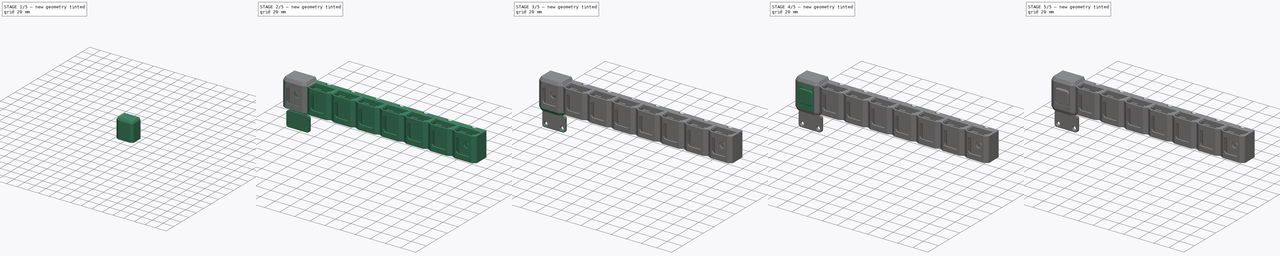
[diagram: build sequence overview — one tinted view per stage of 5, left to right]
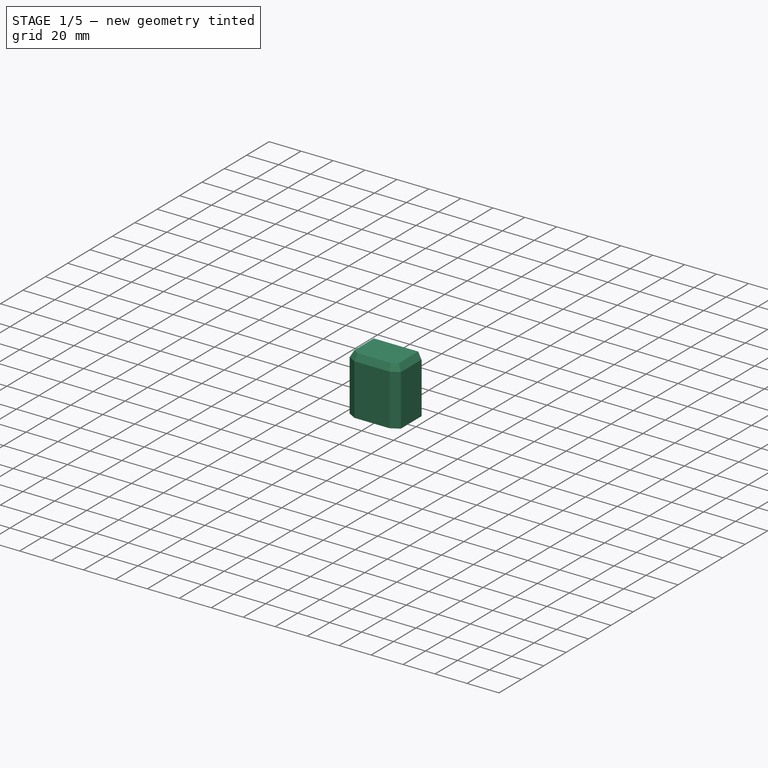
[diagram: stage 1 of 5 — iso view after this stage's code; geometry added in this stage tinted green]
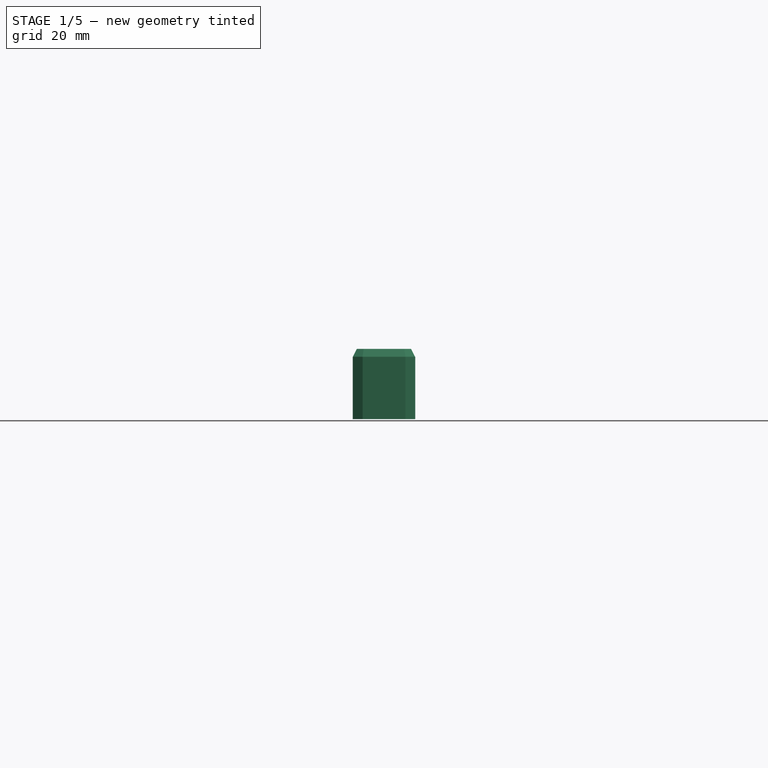
[diagram: stage 1 of 5 — front view after this stage's code; geometry added in this stage tinted green]
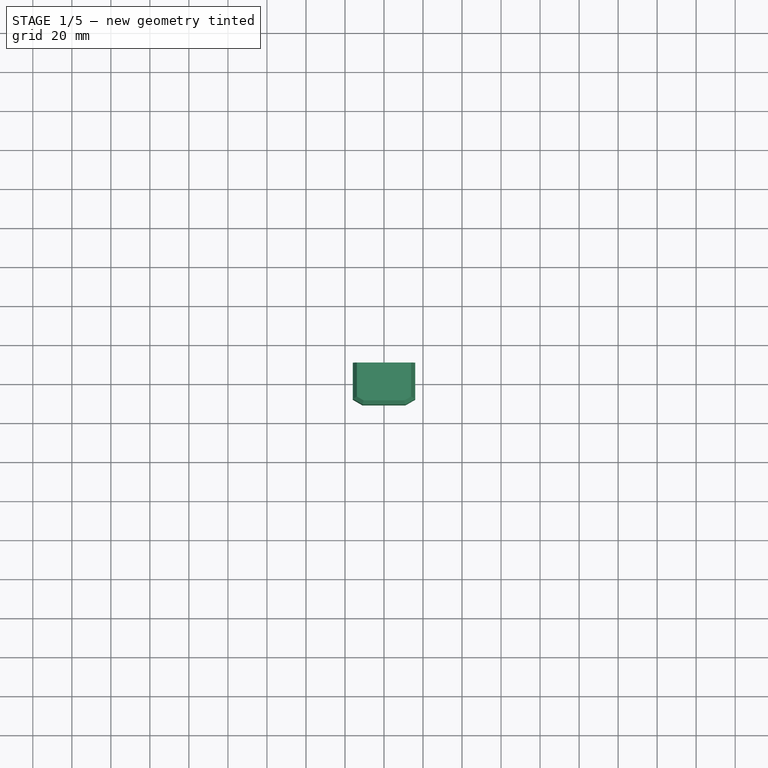
[diagram: stage 1 of 5 — top view after this stage's code; geometry added in this stage tinted green]
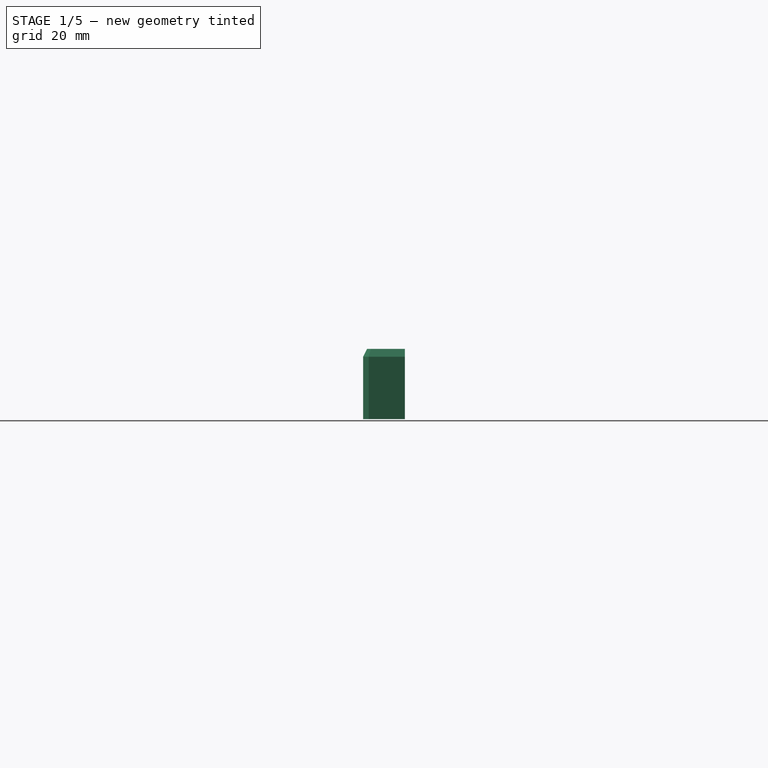
[diagram: stage 1 of 5 — right view after this stage's code; geometry added in this stage tinted green]
FCSTD DOCUMENT  (FreeCAD 1.0R39109 (Git))
Label: KeyHanger
License: All rights reserved
LicenseURL: http://en.wikipedia.org/wiki/All_rights_reserved
objects: Sketcher::SketchObject×47, PartDesign::ShapeBinder×21, PartDesign::Pad×20, PartDesign::Body×16, PartDesign::Plane×13, PartDesign::Pocket×12, PartDesign::Chamfer×9, PartDesign::AdditiveLoft×5, PartDesign::Fillet×3, PartDesign::FeatureBase×3, PartDesign::LinearPattern×2, Spreadsheet::Sheet×1
note: 301 computed .brp shape members not serialized (recipe doc carries the construction recipe); baked Part::Feature solids carry a one-line shape summary decoded from their .brp

FEATURE [Spreadsheet::Sheet] Spreadsheet
  cells = B2='Tolerance_tight; C2(Tolerance_tight)==0.1 mm; B3='Tolerance_loose; C3(Tolerance_loose)==0.36 mm; B4='Tolerance_support; C4(Tolerance_support)==0.2 mm; B5='ShellWidth; C5(ShellWidth)==32 mm; B6='ShellHeight; C6(ShellHeight)==36 mm; B7='ShellWallThickness; C7(ShellWallThickness)==1.6 mm; B8='BackWallThickness; C8(BackWallThickness)==3.2 mm; B9='ShellBottomHeight; C9(ShellBottomHeight)==4 mm; B10='LatchWallThickness; C10(LatchWallThickness)==1.6 mm; B11='LatchStroke; C11(LatchStroke)==KeyThickness + Tolerance_loose * 2; B12='LatchSpringGap; C12(LatchSpringGap)==7 mm; B13='GuideWallThickness; C13(GuideWallThickness)==1.6 mm; B14='GuideHeight; C14(GuideHeight)==ShellHeight - ShellBottomHeight - TopWallHeight - Tolerance_loose; B15='KeyThickness; C15(KeyThickness)==2 mm; B16='KeyHoleWidth; C16(KeyHoleWidth)==8 mm; D16='width of the latch hole (on the "key"); B17='ButtonWidth; C17(ButtonWidth)==18 mm; B18='ButtonCornerRadius; C18(ButtonCornerRadius)==3 mm; B19='ButtonTolerance; C19(ButtonTolerance)==1 mm; B20='HookWidth; C20(HookWidth)==8 mm; B21='TopWallHeight; C21(TopWallHeight)==4 mm; B22='LatchSpringHoleDia; C22(LatchSpringHoleDia)==2.15 mm; B23='KeyWidth; C23(KeyWidth)==ShellWidth - ShellWallThickness * 2 - LatchWallThickness * 2 - GuideWallThickness * 2 - Tolerance_loose * 6; B24='SpringTolearnce; C24(SpringTolearnce)==0.6 mm; B25='SpringThickness; C25(SpringThickness)==0.4 mm; B26='ShellLength; C26(ShellLength)==ShellWallThickness * 2 + LatchWallThickness * 2 + LatchStroke * 3 + GuideWallThickness * 2 + SpringThickness + SpringTolearnce + 5 * Tolerance_loose; B27='ShellBottomInterfaceHeight; C27(ShellBottomInterfaceHeight)==2 mm
FEATURE [Sketcher::SketchObject] Sketch002  label="T_top"
  ArcFitTolerance = 0
  AttachmentSupport = -> [XY_Plane]
  FullyConstrained = true
  MakeInternals = false
  MapMode = 5
  expr: Constraints[169] = <<Spreadsheet>>.SpringTolearnce
  expr: Constraints[170] = <<Spreadsheet>>.SpringThickness
  expr: Constraints[171] = <<Spreadsheet>>.Tolerance_tight
  expr: Constraints[182] = <<Spreadsheet>>.BackWallThickness
  expr: Constraints[184] = <<Spreadsheet>>.GuideWallThickness
  expr: Constraints[187] = <<Spreadsheet>>.ShellWidth
  expr: Constraints[194] = <<Spreadsheet>>.ButtonWidth
  expr: Constraints[205] = <<Spreadsheet>>.LatchWallThickness
  expr: Constraints[225] = <<Spreadsheet>>.Tolerance_loose
  expr: Constraints[261] = <<Spreadsheet>>.KeyHoleWidth
  expr: Constraints[304] = <<Spreadsheet>>.HookWidth
  expr: Constraints[318] = <<Spreadsheet>>.LatchStroke
  expr: Constraints[331] = <<Spreadsheet>>.Tolerance_loose * 2
  expr: Constraints[337] = <<Spreadsheet>>.ShellWallThickness
  sketch-geometry (113):
    g0: LineSegment StartX=-10.12 StartY=-0.12 StartZ=0 EndX=10.12 EndY=-0.12 EndZ=0
    g1: LineSegment StartX=10.12 StartY=-0.12 StartZ=0 EndX=10.12 EndY=-2.12 EndZ=0
    g2: LineSegment StartX=10.12 StartY=-2.12 StartZ=0 EndX=-10.12 EndY=-2.12 EndZ=0
    g3: LineSegment StartX=-10.12 StartY=-2.12 StartZ=0 EndX=-10.12 EndY=-0.12 EndZ=0
    g4: LineSegment StartX=10.48 StartY=0.24 StartZ=0 EndX=10.48 EndY=-2.48 EndZ=0
    g5: LineSegment StartX=10.48 StartY=-2.48 StartZ=0 EndX=-10.48 EndY=-2.48 EndZ=0
    g6: LineSegment StartX=-10.48 StartY=-2.48 StartZ=0 EndX=-10.48 EndY=0.24 EndZ=0
    g7: LineSegment StartX=-10.48 StartY=0.24 StartZ=0 EndX=-4 EndY=0.24 EndZ=0
    g8: LineSegment StartX=4 StartY=0.24 StartZ=0 EndX=10.48 EndY=0.24 EndZ=0
    g9: LineSegment StartX=12.08 StartY=1.84 StartZ=0 EndX=12.08 EndY=-2.94839 EndZ=0
    g10: LineSegment StartX=-12.08 StartY=-2.94839 StartZ=0 EndX=-12.08 EndY=1.84 EndZ=0
    g11: LineSegment StartX=-12.44 StartY=-2.43 StartZ=0 EndX=-14.04 EndY=-2.43 EndZ=0
    g12: LineSegment StartX=-14.04 StartY=-2.43 StartZ=0 EndX=-14.04 EndY=3.8 EndZ=0
    g13: LineSegment StartX=-14.04 StartY=3.8 StartZ=0 EndX=14.04 EndY=3.8 EndZ=0
    g14: LineSegment StartX=14.04 StartY=3.8 StartZ=0 EndX=14.04 EndY=-2.43 EndZ=0
    g15: LineSegment StartX=14.04 StartY=-2.43 StartZ=0 EndX=12.44 EndY=-2.43 EndZ=0
    g16: LineSegment StartX=12.44 StartY=-2.43 StartZ=0 EndX=12.44 EndY=2.2 EndZ=0
    g17: LineSegment StartX=-12.44 StartY=2.2 StartZ=0 EndX=-12.44 EndY=-2.43 EndZ=0
    g18: LineSegment StartX=-12.08 StartY=1.84 StartZ=0 EndX=-4 EndY=1.84 EndZ=0
    g19: LineSegment StartX=4 StartY=1.84 StartZ=0 EndX=12.08 EndY=1.84 EndZ=0
    g20: LineSegment StartX=-4 StartY=1.84 StartZ=0 EndX=-4 EndY=0.24 EndZ=0
    g21: LineSegment StartX=4 StartY=1.84 StartZ=0 EndX=4 EndY=0.24 EndZ=0
    g22: LineSegment StartX=-3.28 StartY=2.2 StartZ=0 EndX=-12.44 EndY=2.2 EndZ=0
    g23: LineSegment StartX=12.44 StartY=2.2 StartZ=0 EndX=3.28 EndY=2.2 EndZ=0
    g24: LineSegment StartX=-3.28 StartY=2.2 StartZ=0 EndX=-3.28 EndY=-2.12 EndZ=0
    g25: LineSegment StartX=3.28 StartY=2.2 StartZ=0 EndX=3.28 EndY=-2.12 EndZ=0
    g26: LineSegment StartX=-12.44 StartY=-2.53 StartZ=0 EndX=-12.44 EndY=-5.82055 EndZ=0
    g27: LineSegment StartX=12.44 StartY=-5.82055 StartZ=0 EndX=12.44 EndY=-2.53 EndZ=0
    g28: LineSegment StartX=12.44 StartY=-2.53 StartZ=0 EndX=14.04 EndY=-2.53 EndZ=0
    g29: LineSegment StartX=9 StartY=-11.84 StartZ=0 EndX=-9 EndY=-11.84 EndZ=0
    g30: LineSegment StartX=-14.04 StartY=-6.74431 StartZ=0 EndX=-14.04 EndY=-2.53 EndZ=0
    g31: LineSegment StartX=-14.04 StartY=-2.53 StartZ=0 EndX=-12.44 EndY=-2.53 EndZ=0
    g32: LineSegment StartX=-14.4 StartY=7.52 StartZ=0 EndX=14.4 EndY=7.52 EndZ=0
    g33: LineSegment StartX=14.4 StartY=7.52 StartZ=0 EndX=14.4 EndY=-6.89646 EndZ=0
    g34: LineSegment StartX=-14.4 StartY=-6.89646 StartZ=0 EndX=-14.4 EndY=7.52 EndZ=0
    g35: LineSegment StartX=-16 StartY=10.72 StartZ=0 EndX=16 EndY=10.72 EndZ=0
    g36: LineSegment StartX=16 StartY=10.72 StartZ=0 EndX=16 EndY=-7.82022 EndZ=0
    g37: LineSegment StartX=-16 StartY=-7.82022 StartZ=0 EndX=-16 EndY=10.72 EndZ=0
    g38: LineSegment [constr] StartX=-14.4 StartY=7.52 StartZ=0 EndX=-14.4 EndY=10.72 EndZ=0
    g39: LineSegment [constr] StartX=14.4 StartY=7.52 StartZ=0 EndX=16 EndY=7.52 EndZ=0
    g40: LineSegment [constr] StartX=10.5487 StartY=-9.12 StartZ=0 EndX=10.5487 EndY=-10.72 EndZ=0
    g41: LineSegment [constr] StartX=-14.4 StartY=-6.89646 StartZ=0 EndX=-16 EndY=-6.89646 EndZ=0
    g42: LineSegment [constr] StartX=-12.44 StartY=2.2 StartZ=0 EndX=-12.44 EndY=3.8 EndZ=0
    g43: LineSegment [constr] StartX=-10.12 StartY=-7.16 StartZ=0 EndX=-10.12 EndY=-8.76 EndZ=0
    g44: LineSegment [constr] StartX=-14.04 StartY=-6.74431 StartZ=0 EndX=-14.4 EndY=-6.74431 EndZ=0
    g45: LineSegment [constr] StartX=10.5487 StartY=-8.76 StartZ=0 EndX=10.5487 EndY=-9.12 EndZ=0
    g46: LineSegment [constr] StartX=14.04 StartY=-2.53 StartZ=0 EndX=14.4 EndY=-2.53 EndZ=0
    g47: LineSegment [constr] StartX=-4 StartY=0.24 StartZ=0 EndX=-4 EndY=-0.12 EndZ=0
    g48: LineSegment [constr] StartX=-10.12 StartY=-0.12 StartZ=0 EndX=-10.48 EndY=-0.12 EndZ=0
    g49: LineSegment [constr] StartX=-10.12 StartY=-2.12 StartZ=0 EndX=-10.12 EndY=-2.48 EndZ=0
    g50: LineSegment [constr] StartX=10.12 StartY=-2.12 StartZ=0 EndX=10.48 EndY=-2.12 EndZ=0
    g51: LineSegment [constr] StartX=-12.08 StartY=1.84 StartZ=0 EndX=-12.08 EndY=2.2 EndZ=0
    g52: LineSegment [constr] StartX=-12.08 StartY=-2.94839 StartZ=0 EndX=-12.44 EndY=-2.94839 EndZ=0
    g53: LineSegment [constr] StartX=12.08 StartY=-2.94839 StartZ=0 EndX=12.44 EndY=-2.94839 EndZ=0
    g54: LineSegment [constr] StartX=-4 StartY=1.84 StartZ=0 EndX=-3.28 EndY=1.84 EndZ=0
    g55: LineSegment [constr] StartX=4 StartY=1.84 StartZ=0 EndX=3.28 EndY=1.84 EndZ=0
    g56: LineSegment StartX=-12.4 StartY=6.92 StartZ=0 EndX=12.4 EndY=6.92 EndZ=0
    g57: LineSegment StartX=12.4 StartY=6.92 StartZ=0 EndX=12.4 EndY=6.52 EndZ=0
    g58: LineSegment StartX=12.4 StartY=6.52 StartZ=0 EndX=-12.4 EndY=6.52 EndZ=0
    g59: LineSegment StartX=-12.4 StartY=6.52 StartZ=0 EndX=-12.4 EndY=6.92 EndZ=0
    g60: LineSegment [constr] StartX=-12.4 StartY=6.92 StartZ=0 EndX=-14.4 EndY=6.92 EndZ=0
    g61: LineSegment [constr] StartX=12.4 StartY=6.92 StartZ=0 EndX=14.4 EndY=6.92 EndZ=0
    g62: LineSegment [constr] StartX=12.4 StartY=6.92 StartZ=0 EndX=12.4 EndY=7.52 EndZ=0
    g63: LineSegment [constr] StartX=-14.04 StartY=-2.43 StartZ=0 EndX=-14.04 EndY=-2.53 EndZ=0
    g64: LineSegment [constr] StartX=-10.48 StartY=0.24 StartZ=0 EndX=-12.08 EndY=0.24 EndZ=0
    g65: LineSegment [constr] StartX=-10.12 StartY=-2.48 StartZ=0 EndX=-10.12 EndY=-4.08 EndZ=0
    g66: LineSegment [constr] StartX=10.48 StartY=-2.48 StartZ=0 EndX=12.08 EndY=-2.48 EndZ=0
    g67: LineSegment [constr] StartX=-12.44 StartY=3.8 StartZ=0 EndX=-12.44 EndY=6.52 EndZ=0
    g68: LineSegment [constr] StartX=10.12 StartY=-4.08 StartZ=0 EndX=10.12 EndY=-7.16 EndZ=0
    g69: LineSegment StartX=-9 StartY=-11.84 StartZ=0 EndX=-9 EndY=-8.76 EndZ=0
    g70: LineSegment StartX=9 StartY=-8.76 StartZ=0 EndX=9 EndY=-11.84 EndZ=0
    g71: LineSegment StartX=-10.12 StartY=-4.08 StartZ=0 EndX=-12.08 EndY=-2.94839 EndZ=0
    g72: LineSegment StartX=-12.44 StartY=-5.82055 StartZ=0 EndX=-10.12 EndY=-7.16 EndZ=0
    g73: LineSegment StartX=-9 StartY=-8.76 StartZ=0 EndX=-10.5487 EndY=-8.76 EndZ=0
    g74: LineSegment StartX=-10.5487 StartY=-8.76 StartZ=0 EndX=-14.04 EndY=-6.74431 EndZ=0
    g75: LineSegment StartX=12.08 StartY=-2.94839 StartZ=0 EndX=10.12 EndY=-4.08 EndZ=0
    g76: LineSegment StartX=10.12 StartY=-4.08 StartZ=0 EndX=-10.12 EndY=-4.08 EndZ=0
    g77: LineSegment StartX=-10.12 StartY=-7.16 StartZ=0 EndX=10.12 EndY=-7.16 EndZ=0
    g78: LineSegment StartX=10.12 StartY=-7.16 StartZ=0 EndX=12.44 EndY=-5.82055 EndZ=0
    g79: LineSegment [constr] StartX=-9 StartY=-2.53 StartZ=0 EndX=-9 EndY=-8.76 EndZ=0
    g80: LineSegment StartX=10.5487 StartY=-8.76 StartZ=0 EndX=9 EndY=-8.76 EndZ=0
    g81: LineSegment StartX=14.04 StartY=-2.53 StartZ=0 EndX=14.04 EndY=-6.74431 EndZ=0
    g82: LineSegment StartX=10.5487 StartY=-8.76 StartZ=0 EndX=14.04 EndY=-6.74431 EndZ=0
    g83: LineSegment StartX=-10.5487 StartY=-9.12 StartZ=0 EndX=-14.4 EndY=-6.89646 EndZ=0
    g84: LineSegment StartX=14.4 StartY=-6.89646 StartZ=0 EndX=10.5487 EndY=-9.12 EndZ=0
    g85: LineSegment StartX=10.5487 StartY=-9.12 StartZ=0 EndX=-10.5487 EndY=-9.12 EndZ=0
    g86: LineSegment [constr] StartX=-10.5487 StartY=-8.76 StartZ=0 EndX=-10.5487 EndY=-9.12 EndZ=0
    g87: LineSegment StartX=-10.9774 StartY=-10.72 StartZ=0 EndX=-16 EndY=-7.82022 EndZ=0
    g88: LineSegment StartX=16 StartY=-7.82022 StartZ=0 EndX=10.9774 EndY=-10.72 EndZ=0
    g89: LineSegment StartX=10.9774 StartY=-10.72 StartZ=0 EndX=-10.9774 EndY=-10.72 EndZ=0
    g90: LineSegment [constr] StartX=-14.4 StartY=-6.89646 StartZ=0 EndX=-15.2 EndY=-8.2821 EndZ=0
    g91: LineSegment [constr] StartX=-12.44 StartY=-2.53 StartZ=0 EndX=-9 EndY=-2.53 EndZ=0
    g92: LineSegment [constr] StartX=-10.12 StartY=-7.16 StartZ=0 EndX=-10.92 EndY=-8.54564 EndZ=0
    g93: LineSegment [constr] StartX=-4e-16 StartY=10.72 StartZ=0 EndX=-4e-16 EndY=-8.76 EndZ=0
    g94: LineSegment [constr] StartX=-4e-16 StartY=-8.76 StartZ=0 EndX=-4e-16 EndY=-11.48 EndZ=0
    g95: LineSegment [constr] StartX=-4e-16 StartY=-11.48 StartZ=0 EndX=-4e-16 EndY=-11.84 EndZ=0
    g96: LineSegment [constr] StartX=-9 StartY=-11.48 StartZ=0 EndX=9 EndY=-11.48 EndZ=0
    g97: LineSegment StartX=-10.12 StartY=-4.08 StartZ=0 EndX=-14.4 EndY=-4.08 EndZ=0
    g98: LineSegment StartX=10.12 StartY=-4.08 StartZ=0 EndX=14.4 EndY=-4.08 EndZ=0
    g99: LineSegment StartX=-2.5 StartY=10.72 StartZ=0 EndX=-2.5 EndY=7.52 EndZ=0
    g100: LineSegment StartX=2.5 StartY=10.72 StartZ=0 EndX=2.5 EndY=7.52 EndZ=0
    g101: LineSegment StartX=-14.4 StartY=4.31177 StartZ=0 EndX=-14.8 EndY=4.31177 EndZ=0
    g102: LineSegment StartX=-14.8 StartY=4.31177 StartZ=0 EndX=-14.8 EndY=-3.68823 EndZ=0
    g103: LineSegment StartX=-14.8 StartY=-3.68823 StartZ=0 EndX=-14.4 EndY=-3.68823 EndZ=0
    g104: LineSegment StartX=14.4 StartY=-3.68823 StartZ=0 EndX=14.8 EndY=-3.68823 EndZ=0
    g105: LineSegment StartX=14.8 StartY=-3.68823 StartZ=0 EndX=14.8 EndY=4.31177 EndZ=0
    g106: LineSegment StartX=14.8 StartY=4.31177 StartZ=0 EndX=14.4 EndY=4.31177 EndZ=0
    g107: LineSegment StartX=-14.8 StartY=0.311769 StartZ=0 EndX=-14.4 EndY=0.311769 EndZ=0
    g108: LineSegment [constr] StartX=-16 StartY=-7.82022 StartZ=0 EndX=-16 EndY=-10.72 EndZ=0
    g109: LineSegment [constr] StartX=-16 StartY=-10.72 StartZ=0 EndX=-10.9774 EndY=-10.72 EndZ=0
    g110: LineSegment StartX=14.4 StartY=-4.88 StartZ=0 EndX=-14.4 EndY=-4.88 EndZ=0
    g111: LineSegment StartX=-14.4 StartY=7.52 StartZ=0 EndX=-14.04 EndY=3.8 EndZ=0
    g112: LineSegment StartX=14.4 StartY=7.52 StartZ=0 EndX=14.04 EndY=3.8 EndZ=0
  constraints (338):
    c: Coincident(g0,g1)
    c: Coincident(g1,g2)
    c: Coincident(g2,g3)
    c: Coincident(g3,g0)
    c: Horizontal(g0)
    c: Horizontal(g2)
    c: Vertical(g1)
    c: Vertical(g3)
    c: Coincident(g8,g4)
    c: Coincident(g4,g5)
    c: Coincident(g5,g6)
    c: Coincident(g6,g7)
    c: Horizontal(g5)
    c: Vertical(g4)
    c: Vertical(g6)
    c: Horizontal(g7)
    c: Horizontal(g8)
    c: Coincident(g19,g9)
    c: Coincident(g9,g75)
    c: Coincident(g71,g10)
    c: Coincident(g10,g18)
    c: Vertical(g9)
    c: Vertical(g10)
    c: Horizontal(g11)
    c: Coincident(g11,g12)
    c: Vertical(g12)
    c: Coincident(g12,g13)
    c: Horizontal(g13)
    c: Coincident(g13,g14)
    c: Vertical(g14)
    c: Coincident(g14,g15)
    c: Horizontal(g15)
    c: Coincident(g15,g16)
    c: Vertical(g16)
    c: Coincident(g16,g23)
    c: Coincident(g22,g17)
    c: Coincident(g17,g11)
    c: Vertical(g17)
    c: Horizontal(g18)
    c: Horizontal(g19)
    c: Coincident(g20,g18)
    c: Coincident(g20,g7)
    c: Vertical(g20)
    c: Coincident(g21,g19)
    c: Coincident(g21,g8)
    c: Vertical(g21)
    c: Horizontal(g22)
    c: Horizontal(g23)
    c: Coincident(g24,g22)
    c: Vertical(g24)
    c: Coincident(g25,g23)
    c: Vertical(g25)
    c: Vertical(g26)
    c: Coincident(g26,g72)
    c: Coincident(g78,g27)
    c: Vertical(g27)
    c: Coincident(g27,g28)
    c: Horizontal(g28)
    c: Coincident(g28,g81)
    c: Coincident(g80,g70)
    c: Horizontal(g29)
    c: Coincident(g69,g73)
    c: Coincident(g74,g30)
    c: Vertical(g30)
    c: Coincident(g30,g31)
    c: Coincident(g31,g26)
    c: Horizontal(g31)
    c: PointOnObject(g11,g26)
    c: PointOnObject(g11,g30)
    c: PointOnObject(g15,g27)
    c: Equal(g15,g11)
    c: PointOnObject(g11,g15)
    c: PointOnObject(g26,g28)
    c: Coincident(g32,g33)
    c: Coincident(g33,g84)
    c: Coincident(g83,g34)
    c: Coincident(g34,g32)
    c: Horizontal(g32)
    c: Vertical(g33)
    c: Vertical(g34)
    c: Coincident(g35,g36)
    c: Coincident(g36,g88)
    c: Coincident(g87,g37)
    c: Coincident(g37,g35)
    c: Horizontal(g35)
    c: Vertical(g36)
    c: Vertical(g37)
    c: Coincident(g38,g32)
    c: Vertical(g38)
    c: Coincident(g39,g32)
    c: PointOnObject(g39,g36)
    c: Horizontal(g39)
    c: Coincident(g41,g83)
    c: PointOnObject(g41,g37)
    c: Horizontal(g41)
    c: Vertical(g40)
    c: Equal(g41,g40)
    c: Equal(g40,g39)
    c: Coincident(g42,g17)
    c: PointOnObject(g42,g13)
    c: Vertical(g42)
    c: Vertical(g43)
    c: Coincident(g44,g74)
    c: PointOnObject(g44,g34)
    c: Horizontal(g44)
    c: Vertical(g45)
    c: Coincident(g46,g28)
    c: PointOnObject(g46,g33)
    c: Horizontal(g46)
    c: Coincident(g47,g7)
    c: PointOnObject(g47,g0)
    c: Vertical(g47)
    c: Coincident(g48,g0)
    c: PointOnObject(g48,g6)
    c: Horizontal(g48)
    c: Coincident(g49,g2)
    c: PointOnObject(g49,g5)
    c: Vertical(g49)
    c: Coincident(g50,g1)
    c: PointOnObject(g50,g4)
    c: Horizontal(g50)
    c: Equal(g47,g48)
    c: Equal(g48,g49)
    c: Equal(g49,g50)
    c: Equal(g50,g46)
    c: Equal(g46,g45)
    c: Equal(g45,g44)
    c: Coincident(g51,g10)
    c: PointOnObject(g51,g22)
    c: Vertical(g51)
    c: Coincident(g52,g71)
    c: PointOnObject(g52,g26)
    c: Horizontal(g52)
    c: Coincident(g53,g9)
    c: PointOnObject(g53,g27)
    c: Horizontal(g53)
    c: Equal(g51,g52)
    c: Equal(g52,g53)
    c: PointOnObject(g7,g8)
    c: PointOnObject(g18,g19)
    c: PointOnObject(g22,g23)
    c: Coincident(g54,g18)
    c: PointOnObject(g54,g24)
    c: Horizontal(g54)
    c: Coincident(g55,g19)
    c: PointOnObject(g55,g25)
    c: Horizontal(g55)
    c: Equal(g55,g54)
    c: Coincident(g56,g57)
    c: Coincident(g57,g58)
    c: Coincident(g58,g59)
    c: Coincident(g59,g56)
    c: Horizontal(g56)
    c: Horizontal(g58)
    c: Vertical(g57)
    c: Vertical(g59)
    c: Coincident(g60,g56)
    c: PointOnObject(g60,g34)
    c: Horizontal(g60)
    c: Coincident(g61,g56)
    c: PointOnObject(g61,g33)
    c: Horizontal(g61)
    c: Coincident(g62,g56)
    c: PointOnObject(g62,g32)
    c: Vertical(g62)
    c: Equal(g61,g60)
    c: Coincident(g63,g11)
    c: Coincident(g63,g30)
    c: PointOnObject(g38,g35)
    c: DistanceY(g61,g39) = 0.6
    c: DistanceY(g57,g57) = 0.4
    c: DistanceY(g30,g11) = 0.1
    c: Coincident(g64,g6)
    c: PointOnObject(g64,g10)
    c: Horizontal(g64)
    c: Vertical(g65)
    c: Coincident(g66,g4)
    c: PointOnObject(g66,g9)
    c: Horizontal(g66)
    c: Equal(g20,g64)
    c: Equal(g64,g65)
    c: Equal(g65,g66)
    c: DistanceY(g39,g35) = 3.2
    c: Equal(g31,g43)
    c: DistanceY(g7,g54) = 1.6
    c: DistanceX(g38,g56) = 2
    c: DistanceX(g22,g23) = 6.56  'LatchWidth'
    c: DistanceX(g35,g35) = 32
    c: Equal(g18,g19)
    c: Equal(g11,g42)
    c: Coincident(g67,g42)
    c: PointOnObject(g67,g58)
    c: Vertical(g67)
    c: Vertical(g68)
    c: DistanceX(g29,g29) = 18
    c: Vertical(g69)
    c: Vertical(g70)
    c: Coincident(g76,g71)
    c: Coincident(g65,g76)
    c: Coincident(g49,g65)
    c: Angle(g65,g71) = 1.0472
    c: Coincident(g72,g77)
    c: Coincident(g73,g74)
    c: Horizontal(g73)
    c: PointOnObject(g72,g65)
    c: DistanceX(g31,g31) = 1.6
    c: Coincident(g43,g72)
    c: Coincident(g75,g76)
    c: Horizontal(g76)
    c: Equal(g75,g71)
    c: Coincident(g68,g75)
    c: PointOnObject(g75,g1)
    c: Coincident(g77,g78)
    c: Horizontal(g77)
    c: Coincident(g68,g77)
    c: Parallel(g71,g72)
    c: Equal(g78,g72)
    c: Vertical(g79)
    c: Equal(g79,g12)
    c: Parallel(g74,g72)
    c: Horizontal(g80)
    c: Vertical(g81)
    c: PointOnObject(g14,g81)
    c: Coincident(g82,g80)
    c: Coincident(g82,g81)
    c: DistanceX(g44,g44) = 0.36
    c: Coincident(g85,g83)
    c: Coincident(g84,g85)
    c: Horizontal(g85)
    c: Parallel(g83,g74)
    c: Coincident(g45,g80)
    c: Coincident(g40,g84)
    c: Equal(g84,g83)
    c: Coincident(g86,g73)
    c: Coincident(g86,g83)
    c: Equal(g86,g45)
    c: Coincident(g89,g87)
    c: Parallel(g87,g83)
    c: Coincident(g88,g89)
    c: Horizontal(g89)
    c: Equal(g87,g88)
    c: Coincident(g90,g34)
    c: PointOnObject(g90,g87)
    c: Perpendicular(g87,g90)
    c: Equal(g90,g41)
    c: PointOnObject(g40,g89)
    c: Equal(g37,g36)
    c: Coincident(g79,g69)
    c: Coincident(g91,g26)
    c: Coincident(g91,g79)
    c: Horizontal(g91)
    c: Vertical(g86)
    c: PointOnObject(g43,g73)
    c: Coincident(g92,g72)
    c: PointOnObject(g92,g74)
    c: Perpendicular(g74,g92)
    c: Equal(g43,g92)
    c: Equal(g73,g80)
    c: Equal(g82,g74)
    c: Coincident(g84,g45)
    c: DistanceY(g87,g35) = 21.44  'Length'
    c: DistanceX(g18,g19) = 8
    c: Coincident(g93,g94)
    c: Vertical(g93)
    c: Coincident(g94,g95)
    c: Vertical(g94)
    c: Vertical(g95)
    c: Symmetric(g35,g35,g93)
    c: PointOnObject(g93,g80)
    c: Symmetric(g29,g29,g95)
    c: Horizontal(g96)
    c: PointOnObject(g94,g96)
    c: PointOnObject(g96,g69)
    c: PointOnObject(g96,g70)
    c: Coincident(g69,g29)
    c: Coincident(g29,g70)
    c: Coincident(g97,g71)
    c: PointOnObject(g97,g34)
    c: Horizontal(g97)
    c: Coincident(g98,g75)
    c: PointOnObject(g98,g33)
    c: Horizontal(g98)
    c: PointOnObject(g99,g35)
    c: PointOnObject(g99,g32)
    c: Vertical(g99)
    c: PointOnObject(g100,g32)
    c: Vertical(g100)
    c: PointOnObject(g101,g34)
    c: Horizontal(g101)
    c: Coincident(g101,g102)
    c: Coincident(g102,g103)
    c: PointOnObject(g103,g34)
    c: Horizontal(g103)
    c: PointOnObject(g104,g33)
    c: Horizontal(g104)
    c: Coincident(g104,g105)
    c: Vertical(g105)
    c: Coincident(g105,g106)
    c: PointOnObject(g106,g33)
    c: Horizontal(g106)
    c: Symmetric(g99,g100,g93)
    c: DistanceX(g99,g100) = 5
    c: Equal(g102,g105)
    c: Equal(g106,g101)
    c: DistanceY(g102,g102) = 8
    c: PointOnObject(g107,g102)
    c: Symmetric(g32,g34,g107)
    c: Vertical(g102)
    c: Symmetric(g101,g103,g107)
    c: PointOnObject(g106,g101)
    c: Equal(g95,g86)
    c: Coincident(g108,g37)
    c: Vertical(g108)
    c: Coincident(g109,g108)
    c: Coincident(g109,g87)
    c: Horizontal(g109)
    c: Symmetric(g108,g35,g-1)
    c: DistanceX(g0,g0) = 20.24  'KeyWidth'
    c: DistanceY(g12,g58) = 2.72
    c: DistanceY(g68,g68) = 3.08
    c: Equal(g69,g68)
    c: PointOnObject(g110,g33)
    c: PointOnObject(g110,g34)
    c: Horizontal(g110)
    c: DistanceY(g110,g5) = 2.4
    c: DistanceY(g1,g1) = 2
    c: Equal(g67,g6)
    c: Equal(g6,g94)
    c: Equal(g47,g51)
    c: PointOnObject(g24,g2)
    c: PointOnObject(g25,g2)
    c: DistanceX(g18,g22) = 0.72
    c: DistanceX(g101,g101) = 0.4
    c: Coincident(g111,g12)
    c: Coincident(g112,g13)
    c: Coincident(g111,g32)
    c: Coincident(g112,g32)
    c: DistanceX(g32,g35) = 1.6
FEATURE [PartDesign::ShapeBinder] ShapeBinder
  Support = -> [Sketch002]
  TraceSupport = false
FEATURE [Sketcher::SketchObject] Sketch005  label="S_Guide"
  ArcFitTolerance = 0
  AttachmentOffset = pos=(0,0,4) rot=(0,0,1;0rad)
  AttachmentSupport = -> [XY_Plane001]
  ExternalGeometry = -> [ShapeBinder]
  FullyConstrained = true
  MakeInternals = false
  MapMode = 5
  Placement = pos=(0,0,4) rot=(0,0,1;0rad)
  expr: .AttachmentOffset.Base.z = <<S_Base2>>.AttachmentOffset.Base.z
  sketch-geometry (14):
    g0: LineSegment StartX=-4 StartY=1.84 StartZ=0 EndX=-12.08 EndY=1.84 EndZ=0
    g1: LineSegment StartX=-12.08 StartY=1.84 StartZ=0 EndX=-12.08 EndY=-2.94839 EndZ=0
    g2: LineSegment StartX=-12.08 StartY=-2.94839 StartZ=0 EndX=-10.12 EndY=-4.08 EndZ=0
    g3: LineSegment StartX=-10.12 StartY=-4.08 StartZ=0 EndX=10.12 EndY=-4.08 EndZ=0
    g4: LineSegment StartX=10.12 StartY=-4.08 StartZ=0 EndX=12.08 EndY=-2.94839 EndZ=0
    g5: LineSegment StartX=12.08 StartY=-2.94839 StartZ=0 EndX=12.08 EndY=1.84 EndZ=0
    g6: LineSegment StartX=12.08 StartY=1.84 StartZ=0 EndX=4 EndY=1.84 EndZ=0
    g7: LineSegment StartX=4 StartY=1.84 StartZ=0 EndX=4 EndY=0.24 EndZ=0
    g8: LineSegment StartX=4 StartY=0.24 StartZ=0 EndX=10.48 EndY=0.24 EndZ=0
    g9: LineSegment StartX=10.48 StartY=0.24 StartZ=0 EndX=10.48 EndY=-2.48 EndZ=0
    g10: LineSegment StartX=10.48 StartY=-2.48 StartZ=0 EndX=-10.48 EndY=-2.48 EndZ=0
    g11: LineSegment StartX=-10.48 StartY=-2.48 StartZ=0 EndX=-10.48 EndY=0.24 EndZ=0
    g12: LineSegment StartX=-10.48 StartY=0.24 StartZ=0 EndX=-4 EndY=0.24 EndZ=0
    g13: LineSegment StartX=-4 StartY=0.24 StartZ=0 EndX=-4 EndY=1.84 EndZ=0
  constraints (28):
    c: Coincident(g-3,g0)
    c: Coincident(g0,g-4)
    c: Coincident(g0,g1)
    c: Coincident(g1,g-4)
    c: Coincident(g1,g2)
    c: Coincident(g2,g-5)
    c: Coincident(g2,g3)
    c: Coincident(g3,g-5)
    c: Coincident(g3,g4)
    c: Coincident(g4,g-6)
    c: Coincident(g4,g5)
    c: Coincident(g5,g-6)
    c: Coincident(g5,g6)
    c: Coincident(g6,g-7)
    c: Coincident(g6,g7)
    c: Coincident(g7,g-7)
    c: Coincident(g7,g8)
    c: Coincident(g8,g-8)
    c: Coincident(g8,g9)
    c: Coincident(g9,g-8)
    c: Coincident(g9,g10)
    c: Coincident(g10,g-9)
    c: Coincident(g10,g11)
    c: Coincident(g11,g-9)
    c: Coincident(g11,g12)
    c: Coincident(g12,g-3)
    c: Coincident(g12,g13)
    c: Coincident(g13,g0)
FEATURE [Sketcher::SketchObject] Sketch006  label="S_TopRemoveHelper"
  ArcFitTolerance = 0
  AttachmentOffset = pos=(0,0,36) rot=(0,0,1;0rad)
  AttachmentSupport = -> [XY_Plane001]
  ExternalGeometry = -> [ShapeBinder]
  FullyConstrained = true
  MakeInternals = false
  MapMode = 5
  Placement = pos=(0,0,36) rot=(0,0,1;0rad)
  expr: .AttachmentOffset.Base.z = <<S_Base1>>.AttachmentOffset.Base.z + <<Spreadsheet>>.ShellHeight
  sketch-geometry (4):
    g0: LineSegment StartX=-2.5 StartY=10.72 StartZ=0 EndX=-2.5 EndY=7.52 EndZ=0
    g1: LineSegment StartX=-2.5 StartY=7.52 StartZ=0 EndX=2.5 EndY=7.52 EndZ=0
    g2: LineSegment StartX=2.5 StartY=7.52 StartZ=0 EndX=2.5 EndY=10.72 EndZ=0
    g3: LineSegment StartX=2.5 StartY=10.72 StartZ=0 EndX=-2.5 EndY=10.72 EndZ=0
  constraints (8):
    c: Coincident(g0,g1)
    c: Coincident(g1,g2)
    c: Coincident(g2,g3)
    c: Coincident(g3,g0)
    c: Coincident(g0,g-3)
    c: Coincident(g0,g-3)
    c: Coincident(g1,g-4)
    c: Coincident(g2,g-4)
FEATURE [PartDesign::ShapeBinder] ShapeBinder002
  Support = -> [Sketch002]
  TraceSupport = false
FEATURE [Sketcher::SketchObject] Sketch014  label="T_T_top"
  ArcFitTolerance = 0
  AttachmentSupport = -> [XY_Plane003]
  ExternalGeometry = -> [ShapeBinder002]
  FullyConstrained = true
  MakeInternals = false
  MapMode = 5
  expr: Constraints[82] = <<Spreadsheet>>.Tolerance_tight
  sketch-geometry (40):
    g0: LineSegment StartX=-15.9 StartY=10.72 StartZ=0 EndX=15.9 EndY=10.72 EndZ=0
    g1: LineSegment StartX=15.9 StartY=10.72 StartZ=0 EndX=15.9 EndY=-7.87796 EndZ=0
    g2: LineSegment StartX=15.9 StartY=-7.87796 StartZ=0 EndX=10.9774 EndY=-10.72 EndZ=0
    g3: LineSegment StartX=10.9774 StartY=-10.72 StartZ=0 EndX=-10.9774 EndY=-10.72 EndZ=0
    g4: LineSegment StartX=-10.9774 StartY=-10.72 StartZ=0 EndX=-15.9 EndY=-7.87796 EndZ=0
    g5: LineSegment StartX=-15.9 StartY=-7.87796 StartZ=0 EndX=-15.9 EndY=10.72 EndZ=0
    g6: LineSegment [constr] StartX=-16 StartY=10.72 StartZ=0 EndX=-15.9 EndY=10.72 EndZ=0
    g7: LineSegment StartX=-14.3 StartY=7.42 StartZ=0 EndX=14.3 EndY=7.42 EndZ=0
    g8: LineSegment StartX=14.3 StartY=7.42 StartZ=0 EndX=14.3 EndY=-6.83873 EndZ=0
    g9: LineSegment StartX=14.3 StartY=-6.83873 StartZ=0 EndX=10.5219 EndY=-9.02 EndZ=0
    g10: LineSegment StartX=10.5219 StartY=-9.02 StartZ=0 EndX=-10.5219 EndY=-9.02 EndZ=0
    g11: LineSegment StartX=-10.5219 StartY=-9.02 StartZ=0 EndX=-14.3 EndY=-6.83873 EndZ=0
    g12: LineSegment StartX=-14.3 StartY=-6.83873 StartZ=0 EndX=-14.3 EndY=7.42 EndZ=0
    g13: LineSegment [constr] StartX=-14.3 StartY=7.42 StartZ=0 EndX=-14.4 EndY=7.42 EndZ=0
    g14: LineSegment [constr] StartX=14.3 StartY=7.42 StartZ=0 EndX=14.3 EndY=7.52 EndZ=0
    g15: LineSegment [constr] StartX=14.3 StartY=-6.83873 StartZ=0 EndX=14.4 EndY=-6.83873 EndZ=0
    g16: LineSegment [constr] StartX=10.5219 StartY=-9.02 StartZ=0 EndX=10.5719 EndY=-9.1066 EndZ=0
    g17: LineSegment [constr] StartX=-10.5219 StartY=-9.02 StartZ=0 EndX=-10.5219 EndY=-9.12 EndZ=0
    g18: LineSegment [constr] StartX=-14.3 StartY=-6.83873 StartZ=0 EndX=-14.35 EndY=-6.92533 EndZ=0
    g19: LineSegment StartX=-11.1 StartY=4.22 StartZ=0 EndX=11.1 EndY=4.22 EndZ=0
    g20: LineSegment StartX=11.1 StartY=4.22 StartZ=0 EndX=11.1 EndY=-4.99121 EndZ=0
    g21: LineSegment StartX=11.1 StartY=-4.99121 StartZ=0 EndX=9.66449 EndY=-5.82 EndZ=0
    g22: LineSegment StartX=9.66449 StartY=-5.82 StartZ=0 EndX=-9.66449 EndY=-5.82 EndZ=0
    g23: LineSegment StartX=-9.66449 StartY=-5.82 StartZ=0 EndX=-11.1 EndY=-4.99121 EndZ=0
    g24: LineSegment StartX=-11.1 StartY=-4.99121 StartZ=0 EndX=-11.1 EndY=4.22 EndZ=0
    g25: LineSegment [constr] StartX=-11.1 StartY=4.22 StartZ=0 EndX=-14.3 EndY=4.22 EndZ=0
    g26: LineSegment [constr] StartX=11.1 StartY=4.22 StartZ=0 EndX=11.1 EndY=7.42 EndZ=0
    g27: LineSegment [constr] StartX=11.1 StartY=-4.99121 StartZ=0 EndX=14.3 EndY=-4.99121 EndZ=0
    g28: LineSegment [constr] StartX=9.66449 StartY=-5.82 StartZ=0 EndX=11.2645 EndY=-8.59128 EndZ=0
    g29: LineSegment [constr] StartX=-9.66449 StartY=-5.82 StartZ=0 EndX=-9.66449 EndY=-9.02 EndZ=0
    g30: LineSegment [constr] StartX=-11.1 StartY=-4.99121 StartZ=0 EndX=-12.7 EndY=-7.76249 EndZ=0
    g31: Ellipse CenterX=-11.05 CenterY=-1.12 CenterZ=0 NormalX=0 NormalY=0 NormalZ=1 MajorRadius=3.25 MinorRadius=2.5 AngleXU=0
    g32: LineSegment [constr] StartX=-7.8 StartY=-1.12 StartZ=0 EndX=-14.3 EndY=-1.12 EndZ=0
    g33: LineSegment [constr] StartX=-11.05 StartY=1.38 StartZ=0 EndX=-11.05 EndY=-3.62 EndZ=0
    g34: GeomPoint [constr] X=-8.97334 Y=-1.12 Z=0
    g35: GeomPoint [constr] X=-13.1267 Y=-1.12 Z=0
    g36: LineSegment [constr] StartX=-7.8 StartY=1.38 StartZ=0 EndX=-7.8 EndY=-3.62 EndZ=0
    g37: LineSegment [constr] StartX=-4.55 StartY=-1.12 StartZ=0 EndX=-11.05 EndY=-1.12 EndZ=0
    g38: Ellipse CenterX=-7.8 CenterY=-1.12 CenterZ=0 NormalX=0 NormalY=0 NormalZ=1 MajorRadius=3.25 MinorRadius=2.5 AngleXU=1e-16
    g39: LineSegment [constr] StartX=15.9 StartY=10.72 StartZ=0 EndX=16 EndY=10.72 EndZ=0
  constraints (103):
    c: Coincident(g0,g1)
    c: Vertical(g1)
    c: Coincident(g1,g2)
    c: Coincident(g2,g3)
    c: Coincident(g3,g4)
    c: Coincident(g5,g0)
    c: Coincident(g6,g0)
    c: Horizontal(g7)
    c: Coincident(g7,g8)
    c: Vertical(g8)
    c: Coincident(g8,g9)
    c: Coincident(g9,g10)
    c: Coincident(g10,g11)
    c: Coincident(g11,g12)
    c: Coincident(g12,g7)
    c: Vertical(g12)
    c: Coincident(g13,g7)
    c: Horizontal(g13)
    c: Coincident(g14,g7)
    c: Vertical(g14)
    c: Coincident(g15,g8)
    c: Horizontal(g15)
    c: Coincident(g16,g9)
    c: Coincident(g17,g10)
    c: Coincident(g18,g11)
    c: Equal(g13,g14)
    c: Equal(g14,g15)
    c: Equal(g15,g16)
    c: Equal(g16,g17)
    c: Equal(g17,g18)
    c: Horizontal(g19)
    c: Coincident(g19,g20)
    c: Vertical(g20)
    c: Coincident(g20,g21)
    c: Coincident(g21,g22)
    c: Horizontal(g22)
    c: Coincident(g22,g23)
    c: Coincident(g23,g24)
    c: Coincident(g24,g19)
    c: Vertical(g24)
    c: Parallel(g11,g23)
    c: Parallel(g9,g21)
    c: Coincident(g25,g19)
    c: PointOnObject(g25,g12)
    c: Horizontal(g25)
    c: Coincident(g26,g19)
    c: PointOnObject(g26,g7)
    c: Vertical(g26)
    c: Coincident(g27,g20)
    c: PointOnObject(g27,g8)
    c: Horizontal(g27)
    c: Coincident(g28,g21)
    c: PointOnObject(g28,g9)
    c: Coincident(g29,g22)
    c: PointOnObject(g29,g10)
    c: Vertical(g29)
    c: Coincident(g30,g23)
    c: PointOnObject(g30,g11)
    c: Perpendicular(g11,g30)
    c: Perpendicular(g9,g28)
    c: Equal(g25,g30)
    c: Equal(g30,g29)
    c: Equal(g29,g28)
    c: Equal(g28,g27)
    c: Equal(g27,g26)
    c: InternalAlignment(g32-g35 -> g31) x4
    c: DistanceY(g33,g33) = 5
    c: DistanceX(g32,g32) = 6.5
    c: InternalAlignment(g37,g38)
    c: InternalAlignment(g36,g38)
    c: Equal(g36,g33)
    c: Equal(g37,g32)
    c: Tangent(g31,g12)
    c: Vertical(g36)
    c: Horizontal(g6)
    c: Vertical(g17)
    c: Equal(g18,g6)
    c: Coincident(g39,g0)
    c: Equal(g39,g6)
    c: DistanceX(g6,g6) = 0.1
    c: Horizontal(g39)
    c: Vertical(g5)
    c: Coincident(g5,g4)
    c: Perpendicular(g11,g18)
    c: Horizontal(g10)
    c: Perpendicular(g16,g9)
    c: Coincident(g37,g31)
    c: Coincident(g6,g-3)
    c: Coincident(g39,g-4)
    c: PointOnObject(g1,g-9)
    c: Coincident(g2,g-9)
    c: Coincident(g3,g-10)
    c: PointOnObject(g4,g-10)
    c: PointOnObject(g18,g-11)
    c: PointOnObject(g17,g-8)
    c: PointOnObject(g16,g-7)
    c: PointOnObject(g15,g-6)
    c: PointOnObject(g14,g-5)
    c: PointOnObject(g13,g-12)
    c: Parallel(g11,g-11)
    c: Parallel(g9,g-7)
    c: Equal(g25,g-14)
    c: Symmetric(g-13,g-13,g32)
FEATURE [Sketcher::SketchObject] Sketch015
  ArcFitTolerance = 0
  AttachmentOffset = pos=(0,0,36) rot=(0,0,1;0rad)
  AttachmentSupport = -> [XY_Plane003]
  ExternalGeometry = -> [Sketch014]
  FullyConstrained = true
  MakeInternals = false
  MapMode = 5
  Placement = pos=(0,0,36) rot=(0,0,1;0rad)
  expr: .AttachmentOffset.Base.z = <<Spreadsheet>>.ShellHeight
  sketch-geometry (6):
    g0: LineSegment StartX=-15.9 StartY=10.72 StartZ=0 EndX=15.9 EndY=10.72 EndZ=0
    g1: LineSegment StartX=15.9 StartY=10.72 StartZ=0 EndX=15.9 EndY=-7.87796 EndZ=0
    g2: LineSegment StartX=15.9 StartY=-7.87796 StartZ=0 EndX=10.9774 EndY=-10.72 EndZ=0
    g3: LineSegment StartX=10.9774 StartY=-10.72 StartZ=0 EndX=-10.9774 EndY=-10.72 EndZ=0
    g4: LineSegment StartX=-10.9774 StartY=-10.72 StartZ=0 EndX=-15.9 EndY=-7.87796 EndZ=0
    g5: LineSegment StartX=-15.9 StartY=-7.87796 StartZ=0 EndX=-15.9 EndY=10.72 EndZ=0
  constraints (12):
    c: Coincident(g-5,g0)
    c: Coincident(g0,g-5)
    c: Coincident(g0,g1)
    c: Coincident(g1,g-4)
    c: Coincident(g1,g2)
    c: Coincident(g2,g-4)
    c: Coincident(g2,g3)
    c: Coincident(g3,g-3)
    c: Coincident(g3,g4)
    c: Coincident(g4,g-3)
    c: Coincident(g4,g5)
    c: Coincident(g5,g0)
FEATURE [Sketcher::SketchObject] Sketch016
  ArcFitTolerance = 0
  AttachmentOffset = pos=(0,0,40) rot=(0,0,1;0rad)
  AttachmentSupport = -> [XY_Plane003]
  ExternalGeometry = -> [Sketch014]
  FullyConstrained = true
  MakeInternals = false
  MapMode = 5
  Placement = pos=(0,0,40) rot=(0,0,1;0rad)
  expr: .AttachmentOffset.Base.z = <<Sketch015>>.AttachmentOffset.Base.z + 4 mm
  sketch-geometry (11):
    g0: LineSegment StartX=-13.9 StartY=-6.72326 StartZ=0 EndX=-13.9 EndY=10.72 EndZ=0
    g1: LineSegment StartX=-13.9 StartY=10.72 StartZ=0 EndX=13.9 EndY=10.72 EndZ=0
    g2: LineSegment StartX=13.9 StartY=10.72 StartZ=0 EndX=13.9 EndY=-6.72326 EndZ=0
    g3: LineSegment StartX=13.9 StartY=-6.72326 StartZ=0 EndX=10.4415 EndY=-8.72 EndZ=0
    g4: LineSegment StartX=10.4415 StartY=-8.72 StartZ=0 EndX=-10.4415 EndY=-8.72 EndZ=0
    g5: LineSegment StartX=-10.4415 StartY=-8.72 StartZ=0 EndX=-13.9 EndY=-6.72326 EndZ=0
    g6: LineSegment [constr] StartX=-13.9 StartY=-6.72326 StartZ=0 EndX=-14.9 EndY=-8.45531 EndZ=0
    g7: LineSegment [constr] StartX=10.4415 StartY=-8.72 StartZ=0 EndX=11.4415 EndY=-10.4521 EndZ=0
    g8: LineSegment [constr] StartX=13.9 StartY=-6.72326 StartZ=0 EndX=15.9 EndY=-6.72326 EndZ=0
    g9: LineSegment [constr] StartX=-13.9 StartY=10.72 StartZ=0 EndX=-15.9 EndY=10.72 EndZ=0
    g10: LineSegment [constr] StartX=-10.4415 StartY=-8.72 StartZ=0 EndX=-10.4415 EndY=-10.72 EndZ=0
  constraints (32):
    c: Vertical(g0)
    c: Coincident(g0,g1)
    c: Coincident(g1,g2)
    c: Vertical(g2)
    c: Coincident(g2,g3)
    c: Coincident(g3,g4)
    c: Coincident(g4,g5)
    c: Coincident(g5,g0)
    c: Parallel(g-7,g3)
    c: Parallel(g-5,g5)
    c: Coincident(g6,g0)
    c: PointOnObject(g6,g-5)
    c: Coincident(g7,g3)
    c: PointOnObject(g7,g-7)
    c: Coincident(g8,g2)
    c: PointOnObject(g8,g-8)
    c: Horizontal(g8)
    c: Coincident(g9,g0)
    c: Coincident(g9,g-4)
    c: Horizontal(g9)
    c: Perpendicular(g-5,g6)
    c: Perpendicular(g-7,g7)
    c: DistanceX(g9,g9) = 2
    c: Coincident(g10,g4)
    c: PointOnObject(g10,g-6)
    c: Vertical(g10)
    c: Equal(g6,g7)
    c: Equal(g7,g8)
    c: Equal(g8,g9)
    c: Equal(g9,g10)
    c: Horizontal(g4)
    c: PointOnObject(g1,g-3)
FEATURE [PartDesign::AdditiveLoft] AdditiveLoft001
  Closed = false
  Profile = -> Sketch015
  Ruled = false
  Sections = -> [Sketch016]
  Suppressed = false
FEATURE [Sketcher::SketchObject] Sketch017
  ArcFitTolerance = 0
  AttachmentOffset = pos=(0,0,36) rot=(0,0,1;0rad)
  AttachmentSupport = -> [XY_Plane003]
  ExternalGeometry = -> [Sketch014]
  FullyConstrained = true
  MakeInternals = false
  MapMode = 5
  Placement = pos=(0,0,36) rot=(0,0,1;0rad)
  expr: .AttachmentOffset.Base.z = <<Sketch015>>.AttachmentOffset.Base.z
  sketch-geometry (12):
    g0: LineSegment StartX=-14.3 StartY=7.42 StartZ=0 EndX=14.3 EndY=7.42 EndZ=0
    g1: LineSegment StartX=14.3 StartY=7.42 StartZ=0 EndX=14.3 EndY=-6.83873 EndZ=0
    g2: LineSegment StartX=14.3 StartY=-6.83873 StartZ=0 EndX=10.5219 EndY=-9.02 EndZ=0
    g3: LineSegment StartX=10.5219 StartY=-9.02 StartZ=0 EndX=-10.5219 EndY=-9.02 EndZ=0
    g4: LineSegment StartX=-10.5219 StartY=-9.02 StartZ=0 EndX=-14.3 EndY=-6.83873 EndZ=0
    g5: LineSegment StartX=-14.3 StartY=-6.83873 StartZ=0 EndX=-14.3 EndY=7.42 EndZ=0
    g6: LineSegment StartX=-11.1 StartY=4.22 StartZ=0 EndX=11.1 EndY=4.22 EndZ=0
    g7: LineSegment StartX=11.1 StartY=4.22 StartZ=0 EndX=11.1 EndY=-4.99121 EndZ=0
    g8: LineSegment StartX=11.1 StartY=-4.99121 StartZ=0 EndX=9.66449 EndY=-5.82 EndZ=0
    g9: LineSegment StartX=9.66449 StartY=-5.82 StartZ=0 EndX=-9.66449 EndY=-5.82 EndZ=0
    g10: LineSegment StartX=-9.66449 StartY=-5.82 StartZ=0 EndX=-11.1 EndY=-4.99121 EndZ=0
    g11: LineSegment StartX=-11.1 StartY=-4.99121 StartZ=0 EndX=-11.1 EndY=4.22 EndZ=0
  constraints (24):
    c: Coincident(g-5,g0)
    c: Coincident(g0,g-5)
    c: Coincident(g0,g1)
    c: Coincident(g1,g-4)
    c: Coincident(g1,g2)
    c: Coincident(g2,g-4)
    c: Coincident(g2,g3)
    c: Coincident(g3,g-3)
    c: Coincident(g3,g4)
    c: Coincident(g4,g-3)
    c: Coincident(g4,g5)
    c: Coincident(g5,g0)
    c: Coincident(g-8,g6)
    c: Coincident(g6,g-8)
    c: Coincident(g6,g7)
    c: Coincident(g7,g-7)
    c: Coincident(g7,g8)
    c: Coincident(g8,g-7)
    c: Coincident(g8,g9)
    c: Coincident(g9,g-6)
    c: Coincident(g9,g10)
    c: Coincident(g10,g-6)
    c: Coincident(g11,g10)
    c: Coincident(g11,g6)
FEATURE [PartDesign::Pad] Pad004
  BaseFeature = -> AdditiveLoft001
  Direction = (0,0,1)
  Length = 4
  Length2 = 10
  Profile = -> Sketch017
  ReferenceAxis = -> Sketch017 [N_Axis]
  Reversed = true
  Suppressed = false
  Type = 0
  expr: Length = <<Spreadsheet>>.TopWallHeight
FEATURE [PartDesign::Chamfer] Chamfer002
  Angle = 45
  Base = -> Pad004 [Edge27,Edge29,Edge31,Edge33,Edge35,Edge36]
  BaseFeature = -> Pad004
  ChamferType = 0
  FlipDirection = false
  Size = 0.8
  Size2 = 1
  SupportTransform = false
  Suppressed = false
  UseAllEdges = false
FEATURE [PartDesign::Body] Body001  label="Shell"
  AllowCompound = false
  Group = -> [ShapeBinder,ShapeBinder009,AdditiveLoft003,Sketch037,Sketch036,Sketch005,Sketch038,Pad,Pad001,Sketch006,Pocket002,Sketch009,DatumPlane010,Sketch,Pocket,Pocket004]
  Origin = -> Origin001
  Tip = -> Pocket004
FEATURE [PartDesign::ShapeBinder] ShapeBinder010  label="T_T_front"
  Placement = pos=(0,0,0) rot=(1,0,0;1.5708rad)
  Support = -> [Sketch024]
  TraceSupport = false
FEATURE [PartDesign::Plane] DatumPlane011
  AttachmentSupport = -> [ShapeBinder002]
  Length = 61.4018
  MapMode = 7
  Placement = pos=(-14.8,0.311769,0) rot=(0,0.707107,0.707107;3.14159rad)
  ResizeMode = 0
  Width = 76.4018
FEATURE [Sketcher::SketchObject] Sketch040
  ArcFitTolerance = 0
  AttachmentSupport = -> [DatumPlane011]
  ExternalGeometry = -> [Sketch014,ShapeBinder010]
  FullyConstrained = true
  MakeInternals = false
  MapMode = 5
  Placement = pos=(-14.8,0.311769,0) rot=(0,0.707107,0.707107;3.14159rad)
  sketch-geometry (6):
    g0: LineSegment StartX=-29.6 StartY=34.9586 StartZ=0 EndX=-29.1 EndY=35.4586 EndZ=0
    g1: LineSegment StartX=-29.6 StartY=34.9586 StartZ=0 EndX=-29.1 EndY=34.4586 EndZ=0
    g2: LineSegment StartX=-29.1 StartY=34.4586 StartZ=0 EndX=-29.1 EndY=35.4586 EndZ=0
    g3: LineSegment StartX=0 StartY=34.9586 StartZ=0 EndX=-0.5 EndY=35.4586 EndZ=0
    g4: LineSegment StartX=0 StartY=34.9586 StartZ=0 EndX=-0.5 EndY=34.4586 EndZ=0
    g5: LineSegment StartX=-0.5 StartY=34.4586 StartZ=0 EndX=-0.5 EndY=35.4586 EndZ=0
  constraints (16):
    c: Coincident(g0,g-6)
    c: Coincident(g1,g0)
    c: Coincident(g2,g1)
    c: Coincident(g2,g0)
    c: Coincident(g3,g-8)
    c: Coincident(g4,g3)
    c: Coincident(g5,g4)
    c: Coincident(g5,g3)
    c: Vertical(g5)
    c: Vertical(g2)
    c: PointOnObject(g-6,g1)
    c: PointOnObject(g-5,g0)
    c: PointOnObject(g-7,g3)
    c: PointOnObject(g-8,g4)
    c: PointOnObject(g-4,g2)
    c: PointOnObject(g-3,g5)
FEATURE [PartDesign::Pad] Pad015
  BaseFeature = -> Chamfer002
  Direction = (0,1,-2e-16)
  Length = 8
  Length2 = 10
  Midplane = true
  Profile = -> Sketch040
  ReferenceAxis = -> Sketch040 [N_Axis]
  Suppressed = false
  Type = 0
  expr: Length = <<Spreadsheet>>.HookWidth
FEATURE [PartDesign::AdditiveLoft] AdditiveLoft002
  BaseFeature = -> Pad015
  Closed = false
  Profile = -> Sketch018
  Ruled = false
  Sections = -> [Sketch019]
  Suppressed = false
FEATURE [PartDesign::Plane] DatumPlane
  AttachmentSupport = -> [AdditiveLoft002]
  Length = 62.6328
  MapMode = 7
  Placement = pos=(-4.55,-1.12,32) rot=(0.317291,-0.317291,-0.893674;1.68297rad)
  ResizeMode = 0
  Width = 92.4271
FEATURE [Sketcher::SketchObject] Sketch039  label="T_LatchSpringHole"
  ArcFitTolerance = 0
  AttachmentSupport = -> [DatumPlane]
  ExternalGeometry = -> [Sketch019]
  FullyConstrained = true
  MakeInternals = false
  MapMode = 5
  Placement = pos=(-4.55,-1.12,32) rot=(0.317291,-0.317291,-0.893674;1.68297rad)
  expr: Constraints[1] = <<Spreadsheet>>.LatchSpringHoleDia
  sketch-geometry (1):
    g0: Circle CenterX=4.31e-14 CenterY=-2.52237 CenterZ=0 NormalX=0 NormalY=0 NormalZ=1 AngleXU=0 Radius=1.075
  constraints (2):
    c: Coincident(g0,g-3)
    c: Diameter(g0) = 2.15
FEATURE [PartDesign::Pocket] Pocket005  label="T_LatchSpringHole_"
  BaseFeature = -> AdditiveLoft002
  Direction = (0.630593,-1e-16,-0.776114)
  Length = 10
  Length2 = 5
  Profile = -> Sketch039
  ReferenceAxis = -> Sketch039 [N_Axis]
  Reversed = true
  Suppressed = false
  Type = 0
FEATURE [PartDesign::ShapeBinder] ShapeBinder011
  Support = -> [Sketch002]
  TraceSupport = false
FEATURE [PartDesign::Plane] DatumPlane012
  AttachmentSupport = -> [ShapeBinder011]
  Length = 61.0454
  MapMode = 7
  Placement = pos=(-14.8,0.311769,0) rot=(1,0,0;1.5708rad)
  ResizeMode = 0
  Width = 72.0454
FEATURE [PartDesign::ShapeBinder] ShapeBinder012
  Placement = pos=(0,0,0) rot=(1,0,0;1.5708rad)
  Support = -> [Sketch024]
  TraceSupport = false
FEATURE [Sketcher::SketchObject] Sketch041
  ArcFitTolerance = 0
  AttachmentSupport = -> [DatumPlane012]
  ExternalGeometry = -> [ShapeBinder012]
  FullyConstrained = true
  MakeInternals = false
  MapMode = 5
  Placement = pos=(-14.8,0.311769,0) rot=(1,0,0;1.5708rad)
  sketch-geometry (6):
    g0: LineSegment StartX=0.4 StartY=35.5 StartZ=0 EndX=-0.141421 EndY=34.9586 EndZ=0
    g1: LineSegment StartX=-0.141421 StartY=34.9586 StartZ=0 EndX=0.4 EndY=34.4172 EndZ=0
    g2: LineSegment StartX=0.4 StartY=34.4172 StartZ=0 EndX=0.4 EndY=35.5 EndZ=0
    g3: LineSegment StartX=29.2 StartY=35.5 StartZ=0 EndX=29.7414 EndY=34.9586 EndZ=0
    g4: LineSegment StartX=29.7414 StartY=34.9586 StartZ=0 EndX=29.2 EndY=34.4172 EndZ=0
    g5: LineSegment StartX=29.2 StartY=34.4172 StartZ=0 EndX=29.2 EndY=35.5 EndZ=0
  constraints (12):
    c: Coincident(g-3,g0)
    c: Coincident(g0,g-4)
    c: Coincident(g0,g1)
    c: Coincident(g1,g-4)
    c: Coincident(g1,g2)
    c: Coincident(g2,g0)
    c: Coincident(g-5,g3)
    c: Coincident(g3,g-6)
    c: Coincident(g3,g4)
    c: Coincident(g4,g-6)
    c: Coincident(g4,g5)
    c: Coincident(g5,g3)
FEATURE [Sketcher::SketchObject] Sketch042  label="SS_Muide"
  ArcFitTolerance = 0
  AttachmentOffset = pos=(0,0,6) rot=(0,0,1;0rad)
  AttachmentSupport = -> [XY_Plane009]
  ExternalGeometry = -> [ShapeBinder011]
  FullyConstrained = true
  MakeInternals = false
  MapMode = 5
  Placement = pos=(0,0,6) rot=(0,0,1;0rad)
  expr: .AttachmentOffset.Base.z = <<SS_Walls>>.AttachmentOffset.Base.z
  sketch-geometry (14):
    g0: LineSegment StartX=-4 StartY=1.84 StartZ=0 EndX=-12.08 EndY=1.84 EndZ=0
    g1: LineSegment StartX=-12.08 StartY=1.84 StartZ=0 EndX=-12.08 EndY=-2.94839 EndZ=0
    g2: LineSegment StartX=-12.08 StartY=-2.94839 StartZ=0 EndX=-10.12 EndY=-4.08 EndZ=0
    g3: LineSegment StartX=-10.12 StartY=-4.08 StartZ=0 EndX=10.12 EndY=-4.08 EndZ=0
    g4: LineSegment StartX=10.12 StartY=-4.08 StartZ=0 EndX=12.08 EndY=-2.94839 EndZ=0
    g5: LineSegment StartX=12.08 StartY=-2.94839 StartZ=0 EndX=12.08 EndY=1.84 EndZ=0
    g6: LineSegment StartX=12.08 StartY=1.84 StartZ=0 EndX=4 EndY=1.84 EndZ=0
    g7: LineSegment StartX=4 StartY=1.84 StartZ=0 EndX=4 EndY=0.24 EndZ=0
    g8: LineSegment StartX=4 StartY=0.24 StartZ=0 EndX=10.48 EndY=0.24 EndZ=0
    g9: LineSegment StartX=10.48 StartY=0.24 StartZ=0 EndX=10.48 EndY=-2.48 EndZ=0
    g10: LineSegment StartX=10.48 StartY=-2.48 StartZ=0 EndX=-10.48 EndY=-2.48 EndZ=0
    g11: LineSegment StartX=-10.48 StartY=-2.48 StartZ=0 EndX=-10.48 EndY=0.24 EndZ=0
    g12: LineSegment StartX=-10.48 StartY=0.24 StartZ=0 EndX=-4 EndY=0.24 EndZ=0
    g13: LineSegment StartX=-4 StartY=0.24 StartZ=0 EndX=-4 EndY=1.84 EndZ=0
  constraints (28):
    c: Coincident(g-3,g0)
    c: Coincident(g0,g-4)
    c: Coincident(g0,g1)
    c: Coincident(g1,g-4)
    c: Coincident(g1,g2)
    c: Coincident(g2,g-5)
    c: Coincident(g2,g3)
    c: Coincident(g3,g-5)
    c: Coincident(g3,g4)
    c: Coincident(g4,g-6)
    c: Coincident(g4,g5)
    c: Coincident(g5,g-6)
    c: Coincident(g5,g6)
    c: Coincident(g6,g-7)
    c: Coincident(g6,g7)
    c: Coincident(g7,g-7)
    c: Coincident(g7,g8)
    c: Coincident(g8,g-8)
    c: Coincident(g8,g9)
    c: Coincident(g9,g-8)
    c: Coincident(g9,g10)
    c: Coincident(g10,g-9)
    c: Coincident(g10,g11)
    c: Coincident(g11,g-9)
    c: Coincident(g11,g12)
    c: Coincident(g12,g-3)
    c: Coincident(g12,g13)
    c: Coincident(g13,g0)
FEATURE [Sketcher::SketchObject] Sketch043  label="SS_TopRemoveHelper"
  ArcFitTolerance = 0
  AttachmentOffset = pos=(0,0,36) rot=(0,0,1;0rad)
  AttachmentSupport = -> [XY_Plane009]
  ExternalGeometry = -> [ShapeBinder011]
  FullyConstrained = true
  MakeInternals = false
  MapMode = 5
  Placement = pos=(0,0,36) rot=(0,0,1;0rad)
  expr: .AttachmentOffset.Base.z = <<SS_Walls>>.AttachmentOffset.Base.z + <<SS_Walls_>>.Length
  sketch-geometry (4):
    g0: LineSegment StartX=-2.5 StartY=10.72 StartZ=0 EndX=-2.5 EndY=7.52 EndZ=0
    g1: LineSegment StartX=-2.5 StartY=7.52 StartZ=0 EndX=2.5 EndY=7.52 EndZ=0
    g2: LineSegment StartX=2.5 StartY=7.52 StartZ=0 EndX=2.5 EndY=10.72 EndZ=0
    g3: LineSegment StartX=2.5 StartY=10.72 StartZ=0 EndX=-2.5 EndY=10.72 EndZ=0
  constraints (8):
    c: Coincident(g0,g1)
    c: Coincident(g1,g2)
    c: Coincident(g2,g3)
    c: Coincident(g3,g0)
    c: Coincident(g0,g-3)
    c: Coincident(g0,g-3)
    c: Coincident(g1,g-4)
    c: Coincident(g2,g-4)
FEATURE [Sketcher::SketchObject] Sketch044  label="SS_ButtonHole"
  ArcFitTolerance = 0
  AttachmentOffset = pos=(0,0,9.12) rot=(0,0,1;0rad)
  AttachmentSupport = -> [XZ_Plane009]
  ExternalGeometry = -> [ShapeBinder012]
  FullyConstrained = true
  MakeInternals = false
  MapMode = 5
  Placement = pos=(0,-9.12,2e-15) rot=(1,0,0;1.5708rad)
  expr: .AttachmentOffset.Base.z = Sketch002.Constraints.Length / 2 - <<Spreadsheet>>.ShellWallThickness
  expr: Constraints[14] = <<Spreadsheet>>.Tolerance_loose * 2
  expr: Constraints[17] = <<Spreadsheet>>.Tolerance_support
  sketch-geometry (12):
    g0: LineSegment StartX=-6 StartY=29.92 StartZ=0 EndX=6 EndY=29.92 EndZ=0
    g1: LineSegment StartX=9.72 StartY=26.2 StartZ=0 EndX=9.72 EndY=14 EndZ=0
    g2: LineSegment StartX=6 StartY=10.28 StartZ=0 EndX=-6 EndY=10.28 EndZ=0
    g3: LineSegment StartX=-9.72 StartY=14 StartZ=0 EndX=-9.72 EndY=26.2 EndZ=0
    g4: ArcOfCircle CenterX=-6 CenterY=26.2 CenterZ=0 NormalX=0 NormalY=0 NormalZ=1 AngleXU=0 Radius=3.72 StartAngle=1.5708 EndAngle=3.14159
    g5: ArcOfCircle CenterX=6 CenterY=26.2 CenterZ=0 NormalX=0 NormalY=0 NormalZ=1 AngleXU=0 Radius=3.72 StartAngle=-9e-16 EndAngle=1.5708
    g6: ArcOfCircle CenterX=6 CenterY=14 CenterZ=0 NormalX=0 NormalY=0 NormalZ=1 AngleXU=0 Radius=3.72 StartAngle=4.71239 EndAngle=6.28319
    g7: ArcOfCircle CenterX=-6 CenterY=14 CenterZ=0 NormalX=0 NormalY=0 NormalZ=1 AngleXU=0 Radius=3.72 StartAngle=3.14159 EndAngle=4.71239
    g8: LineSegment [constr] StartX=-9 StartY=26.2 StartZ=0 EndX=-9.72 EndY=26.2 EndZ=0
    g9: LineSegment [constr] StartX=-9 StartY=26 StartZ=0 EndX=-9 EndY=26.2 EndZ=0
    g10: LineSegment [constr] StartX=6 StartY=26 StartZ=0 EndX=6 EndY=26.2 EndZ=0
    g11: LineSegment [constr] StartX=-6 StartY=26 StartZ=0 EndX=-6 EndY=26.2 EndZ=0
  constraints (28):
    c: Horizontal(g0)
    c: Horizontal(g2)
    c: Vertical(g1)
    c: Vertical(g3)
    c: Tangent(g0,g4) = 1.5708
    c: Tangent(g3,g4) = 1.5708
    c: Tangent(g0,g5) = 1.5708
    c: Tangent(g1,g5) = 1.5708
    c: Tangent(g1,g6) = 1.5708
    c: Tangent(g2,g6) = 1.5708
    c: Tangent(g2,g7) = 1.5708
    c: Tangent(g3,g7) = 1.5708
    c: Coincident(g7,g-5)
    c: Coincident(g8,g3)
    c: DistanceX(g8,g8) = 0.72
    c: Equal(g5,g6)
    c: Vertical(g9)
    c: DistanceY(g9,g9) = 0.2
    c: Horizontal(g8)
    c: Coincident(g9,g-3)
    c: Coincident(g8,g9)
    c: Coincident(g10,g-4)
    c: Vertical(g10)
    c: Coincident(g11,g-3)
    c: Coincident(g11,g4)
    c: Vertical(g11)
    c: Coincident(g5,g10)
    c: Equal(g4,g5)
FEATURE [Sketcher::SketchObject] Sketch047  label="SS_Walls"
  ArcFitTolerance = 0
  AttachmentOffset = pos=(0,0,6) rot=(0,0,1;0rad)
  AttachmentSupport = -> [XY_Plane009]
  ExternalGeometry = -> [ShapeBinder011]
  FullyConstrained = true
  MakeInternals = false
  MapMode = 5
  Placement = pos=(0,0,6) rot=(0,0,1;0rad)
  expr: .AttachmentOffset.Base.z = <<SS_Base>>.AttachmentOffset.Base.z + <<SS_Base_>>.Length
  sketch-geometry (12):
    g0: LineSegment StartX=10.9774 StartY=-10.72 StartZ=0 EndX=-10.9774 EndY=-10.72 EndZ=0
    g1: LineSegment StartX=-10.9774 StartY=-10.72 StartZ=0 EndX=-16 EndY=-7.82022 EndZ=0
    g2: LineSegment StartX=-16 StartY=-7.82022 StartZ=0 EndX=-16 EndY=10.72 EndZ=0
    g3: LineSegment StartX=-16 StartY=10.72 StartZ=0 EndX=16 EndY=10.72 EndZ=0
    g4: LineSegment StartX=16 StartY=10.72 StartZ=0 EndX=16 EndY=-7.82022 EndZ=0
    g5: LineSegment StartX=16 StartY=-7.82022 StartZ=0 EndX=10.9774 EndY=-10.72 EndZ=0
    g6: LineSegment StartX=-14.4 StartY=7.52 StartZ=0 EndX=-14.04 EndY=3.8 EndZ=0
    g7: LineSegment StartX=-14.04 StartY=3.8 StartZ=0 EndX=14.04 EndY=3.8 EndZ=0
    g8: LineSegment StartX=14.04 StartY=3.8 StartZ=0 EndX=10.5487 EndY=-9.12 EndZ=0
    g9: LineSegment StartX=10.5487 StartY=-9.12 StartZ=0 EndX=-10.5487 EndY=-9.12 EndZ=0
    g10: LineSegment StartX=-10.5487 StartY=-9.12 StartZ=0 EndX=-14.4 EndY=-6.89646 EndZ=0
    g11: LineSegment StartX=-14.4 StartY=-6.89646 StartZ=0 EndX=-14.4 EndY=7.52 EndZ=0
  constraints (24):
    c: Coincident(g0,g1)
    c: Coincident(g1,g2)
    c: Coincident(g2,g3)
    c: Coincident(g3,g4)
    c: Coincident(g4,g5)
    c: Coincident(g5,g0)
    c: Coincident(g6,g7)
    c: Coincident(g7,g8)
    c: Coincident(g8,g9)
    c: Coincident(g9,g10)
    c: Coincident(g10,g11)
    c: Coincident(g11,g6)
    c: Coincident(g10,g-4)
    c: Coincident(g0,g-3)
    c: Coincident(g1,g-3)
    c: Coincident(g2,g-8)
    c: Coincident(g3,g-8)
    c: Coincident(g4,g-5)
    c: Coincident(g0,g-5)
    c: Coincident(g9,g-6)
    c: Coincident(g8,g-6)
    c: Coincident(g7,g-7)
    c: Coincident(g6,g-7)
    c: Coincident(g6,g-4)
FEATURE [Sketcher::SketchObject] Sketch048  label="SS_Base"
  ArcFitTolerance = 0
  AttachmentOffset = pos=(0,0,4) rot=(0,0,1;0rad)
  AttachmentSupport = -> [XY_Plane009]
  ExternalGeometry = -> [ShapeBinder011]
  FullyConstrained = true
  MakeInternals = false
  MapMode = 5
  Placement = pos=(0,0,4) rot=(0,0,1;0rad)
  expr: .AttachmentOffset.Base.z = <<Spreadsheet>>.ShellBottomHeight
  sketch-geometry (20):
    g0: LineSegment StartX=10.9774 StartY=-10.72 StartZ=0 EndX=-10.9774 EndY=-10.72 EndZ=0
    g1: LineSegment StartX=-10.9774 StartY=-10.72 StartZ=0 EndX=-16 EndY=-7.82022 EndZ=0
    g2: LineSegment StartX=-16 StartY=-7.82022 StartZ=0 EndX=-16 EndY=10.72 EndZ=0
    g3: LineSegment StartX=-16 StartY=10.72 StartZ=0 EndX=16 EndY=10.72 EndZ=0
    g4: LineSegment StartX=16 StartY=10.72 StartZ=0 EndX=16 EndY=-7.82022 EndZ=0
    g5: LineSegment StartX=16 StartY=-7.82022 StartZ=0 EndX=10.9774 EndY=-10.72 EndZ=0
    g6: LineSegment StartX=-10.48 StartY=0.24 StartZ=0 EndX=10.48 EndY=0.24 EndZ=0
    g7: LineSegment StartX=10.48 StartY=0.24 StartZ=0 EndX=10.48 EndY=-2.48 EndZ=0
    g8: LineSegment StartX=10.48 StartY=-2.48 StartZ=0 EndX=-10.48 EndY=-2.48 EndZ=0
    g9: LineSegment StartX=-10.48 StartY=-2.48 StartZ=0 EndX=-10.48 EndY=0.24 EndZ=0
    g10: LineSegment StartX=-12.44 StartY=-5.82055 StartZ=0 EndX=-12.44 EndY=-4.88 EndZ=0
    g11: LineSegment StartX=-12.44 StartY=-4.88 StartZ=0 EndX=12.44 EndY=-4.88 EndZ=0
    g12: LineSegment StartX=12.44 StartY=-4.88 StartZ=0 EndX=12.44 EndY=-5.82055 EndZ=0
    g13: LineSegment StartX=12.44 StartY=-5.82055 StartZ=0 EndX=10.12 EndY=-7.16 EndZ=0
    g14: LineSegment StartX=10.12 StartY=-7.16 StartZ=0 EndX=-10.12 EndY=-7.16 EndZ=0
    g15: LineSegment StartX=-10.12 StartY=-7.16 StartZ=0 EndX=-12.44 EndY=-5.82055 EndZ=0
    g16: LineSegment StartX=-14.4 StartY=7.52 StartZ=0 EndX=14.4 EndY=7.52 EndZ=0
    g17: LineSegment StartX=14.4 StartY=7.52 StartZ=0 EndX=14.4 EndY=-6.89646 EndZ=0
    g18: LineSegment StartX=14.4 StartY=-6.89646 StartZ=0 EndX=14.4 EndY=7.52 EndZ=0
    g19: LineSegment StartX=14.4 StartY=7.52 StartZ=0 EndX=-14.4 EndY=7.52 EndZ=0
  constraints (42):
    c: Coincident(g0,g1)
    c: Coincident(g1,g2)
    c: Coincident(g2,g3)
    c: Coincident(g3,g4)
    c: Coincident(g4,g5)
    c: Coincident(g5,g0)
    c: Coincident(g6,g7)
    c: Coincident(g7,g8)
    c: Coincident(g8,g9)
    c: Coincident(g9,g6)
    c: Coincident(g3,g-7)
    c: Coincident(g4,g-6)
    c: Coincident(g0,g-6)
    c: Coincident(g0,g-5)
    c: Coincident(g1,g-5)
    c: Coincident(g2,g-7)
    c: Coincident(g6,g-3)
    c: Coincident(g8,g-3)
    c: Coincident(g7,g-4)
    c: Coincident(g6,g-4)
    c: Coincident(g-8,g10)
    c: PointOnObject(g10,g-10)
    c: Vertical(g10)
    c: Coincident(g10,g11)
    c: PointOnObject(g11,g-10)
    c: Coincident(g11,g12)
    c: Coincident(g12,g-9)
    c: Vertical(g12)
    c: Coincident(g12,g13)
    c: Coincident(g13,g-9)
    c: Coincident(g13,g14)
    c: Coincident(g14,g-8)
    c: Coincident(g14,g15)
    c: Coincident(g15,g10)
    c: Coincident(g-11,g16)
    c: Coincident(g16,g-12)
    c: Coincident(g16,g17)
    c: Coincident(g17,g-12)
    c: Coincident(g17,g18)
    c: Coincident(g18,g-11)
    c: Coincident(g18,g19)
    c: Coincident(g19,g16)
FEATURE [PartDesign::Pad] Pad018  label="SS_Base_"
  Direction = (0,0,1)
  Length = 2
  Length2 = 10
  Profile = -> Sketch048
  ReferenceAxis = -> Sketch048 [N_Axis]
  Suppressed = false
  Type = 0
FEATURE [PartDesign::Pad] Pad016  label="SS_Walls_"
  BaseFeature = -> Pad018
  Direction = (0,0,1)
  Length = 30
  Length2 = 10
  Profile = -> Sketch047
  ReferenceAxis = -> Sketch047 [N_Axis]
  Refine = true
  Suppressed = false
  Type = 0
  expr: Length = <<Spreadsheet>>.ShellHeight - <<Spreadsheet>>.ShellBottomHeight - <<Spreadsheet>>.ShellBottomInterfaceHeight
FEATURE [PartDesign::Pad] Pad017  label="SS_Guide_"
  BaseFeature = -> Pad016
  Direction = (0,0,1)
  Length = 25.64
  Length2 = 10
  Profile = -> Sketch042
  ReferenceAxis = -> Sketch042 [N_Axis]
  Suppressed = false
  Type = 0
  expr: Length = <<Spreadsheet>>.GuideHeight - <<Spreadsheet>>.ShellBottomInterfaceHeight
FEATURE [PartDesign::Pocket] Pocket007  label="SS_TopRemoveHelper_"
  BaseFeature = -> Pad017
  Direction = (0,0,-1)
  Length = 1
  Length2 = 5
  Profile = -> Sketch043
  ReferenceAxis = -> Sketch043 [N_Axis]
  Suppressed = false
  Type = 0
FEATURE [PartDesign::Body] Body017  label="ShellShortx8"
  AllowCompound = false
  Group = -> [ShapeBinder021,Clone002,LinearPattern,Sketch063,Pocket012,Sketch064,Pocket013,Chamfer011,LinearPattern001]
  Origin = -> Origin017
  Tip = -> LinearPattern001
FEATURE [PartDesign::Fillet] Fillet003
  Base = -> Pocket005 [Edge92]
  BaseFeature = -> Pocket005
  Radius = 0.8
  Refine = true
  SupportTransform = false
  Suppressed = false
  UseAllEdges = false
FEATURE [PartDesign::Body] Body003  label="Top"
  AllowCompound = false
  Group = -> [ShapeBinder002,Sketch014,ShapeBinder010,Sketch015,Sketch016,AdditiveLoft001,Sketch017,Pad004,Chamfer002,Sketch018,Sketch019,DatumPlane011,Sketch040,Pad015,AdditiveLoft002,Sketch039,DatumPlane,Pocket005,Fillet003]
  Origin = -> Origin003
  Tip = -> Fillet003
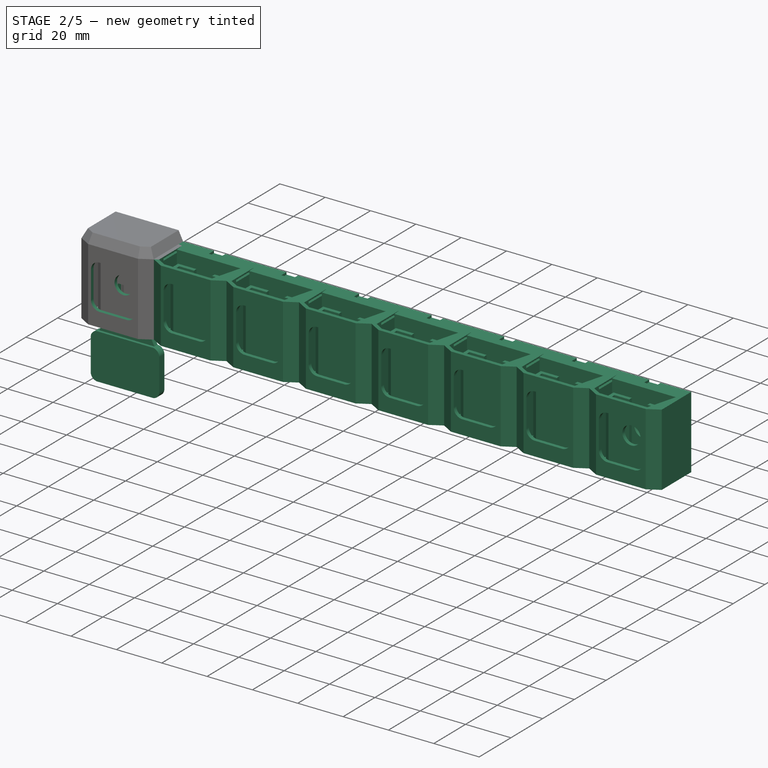
[diagram: stage 2 of 5 — iso view after this stage's code; geometry added in this stage tinted green]
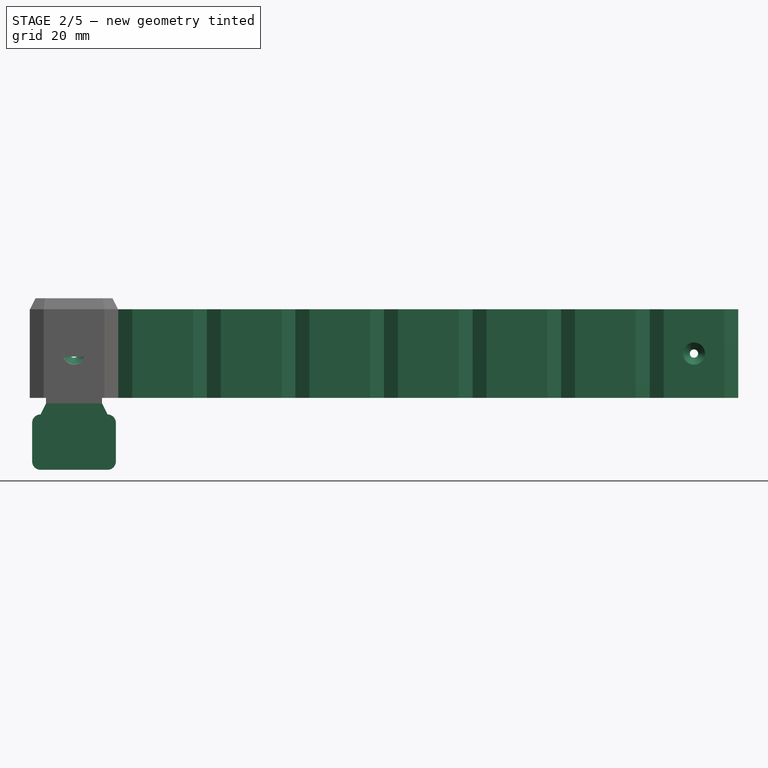
[diagram: stage 2 of 5 — front view after this stage's code; geometry added in this stage tinted green]
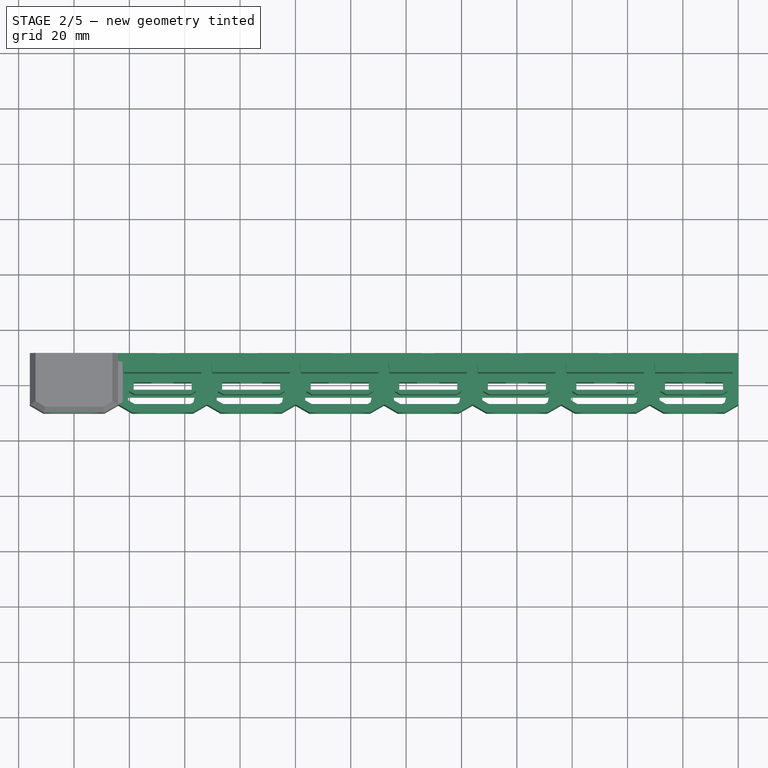
[diagram: stage 2 of 5 — top view after this stage's code; geometry added in this stage tinted green]
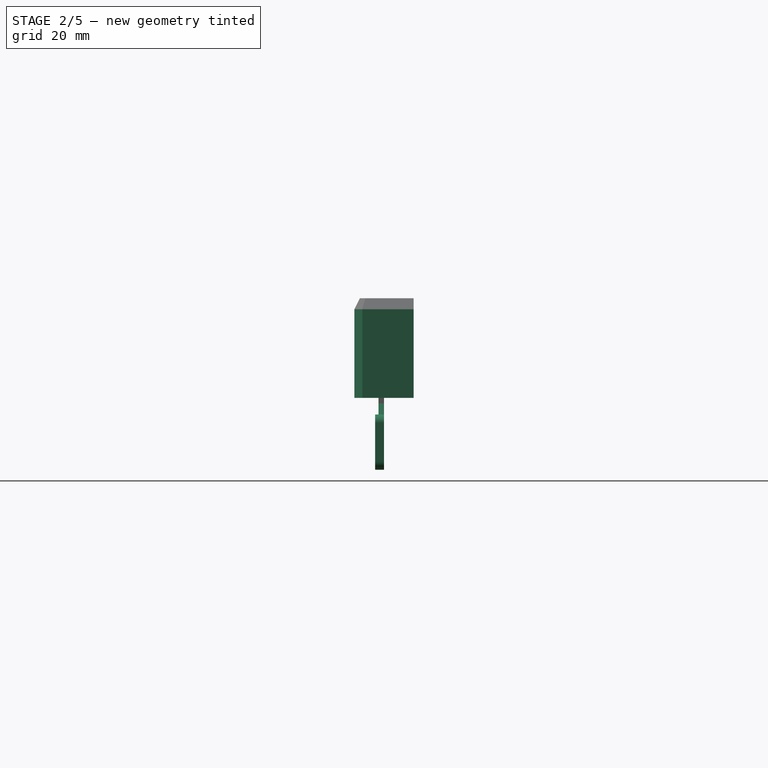
[diagram: stage 2 of 5 — right view after this stage's code; geometry added in this stage tinted green]
FEATURE [PartDesign::Body] Body005  label="Push"
  AllowCompound = false
  Group = -> [ShapeBinder005,ShapeBinder006,Sketch026,Pad008,DatumPlane008,DatumPlane009,Sketch033,Pad012,Chamfer005]
  Origin = -> Origin005
  Tip = -> Chamfer005
FEATURE [Sketcher::SketchObject] Sketch034  label="K_Base"
  ArcFitTolerance = 0
  AttachmentSupport = -> [XZ_Plane008]
  ExternalGeometry = -> [ShapeBinder008]
  FullyConstrained = true
  MakeInternals = false
  MapMode = 5
  Placement = pos=(0,0,0) rot=(1,0,0;1.5708rad)
  sketch-geometry (26):
    g0: ArcOfCircle CenterX=-7.12 CenterY=22 CenterZ=0 NormalX=0 NormalY=0 NormalZ=1 AngleXU=0 Radius=3 StartAngle=1.5708 EndAngle=3.14159
    g1: ArcOfCircle CenterX=7.12 CenterY=22 CenterZ=0 NormalX=0 NormalY=0 NormalZ=1 AngleXU=0 Radius=3 StartAngle=4e-16 EndAngle=1.5708
    g2: LineSegment StartX=-7.12 StartY=25 StartZ=0 EndX=7.12 EndY=25 EndZ=0
    g3: LineSegment StartX=-3.5 StartY=18.88 StartZ=0 EndX=3.5 EndY=18.88 EndZ=0
    g4: LineSegment StartX=4 StartY=18.38 StartZ=0 EndX=4 EndY=11.38 EndZ=0
    g5: LineSegment StartX=3.5 StartY=10.88 StartZ=0 EndX=-3.5 EndY=10.88 EndZ=0
    g6: LineSegment StartX=-4 StartY=11.38 StartZ=0 EndX=-4 EndY=18.38 EndZ=0
    g7: LineSegment StartX=-15.12 StartY=-5 StartZ=0 EndX=-15.12 EndY=-19 EndZ=0
    g8: LineSegment StartX=-12.12 StartY=-22 StartZ=0 EndX=12.12 EndY=-22 EndZ=0
    g9: LineSegment StartX=15.12 StartY=-19 StartZ=0 EndX=15.12 EndY=-5 EndZ=0
    g10: ArcOfCircle CenterX=-12.12 CenterY=-19 CenterZ=0 NormalX=0 NormalY=0 NormalZ=1 AngleXU=0 Radius=3 StartAngle=3.14159 EndAngle=4.71239
    g11: ArcOfCircle CenterX=12.12 CenterY=-19 CenterZ=0 NormalX=0 NormalY=0 NormalZ=1 AngleXU=0 Radius=3 StartAngle=4.71239 EndAngle=6.28319
    g12: LineSegment [constr] StartX=-12.12 StartY=-2 StartZ=0 EndX=12.12 EndY=-2 EndZ=0
    g13: LineSegment StartX=-10.12 StartY=22 StartZ=0 EndX=-10.12 EndY=2 EndZ=0
    g14: LineSegment StartX=-10.12 StartY=2 StartZ=0 EndX=-12.12 EndY=-2 EndZ=0
    g15: LineSegment StartX=10.12 StartY=22 StartZ=0 EndX=10.12 EndY=2 EndZ=0
    g16: LineSegment StartX=10.12 StartY=2 StartZ=0 EndX=12.12 EndY=-2 EndZ=0
    g17: ArcOfCircle CenterX=-12.12 CenterY=-5 CenterZ=0 NormalX=0 NormalY=0 NormalZ=1 AngleXU=0 Radius=3 StartAngle=1.5708 EndAngle=3.14159
    g18: ArcOfCircle CenterX=12.12 CenterY=-5 CenterZ=0 NormalX=0 NormalY=0 NormalZ=1 AngleXU=0 Radius=3 StartAngle=0 EndAngle=1.5708
    g19: LineSegment [constr] StartX=-16 StartY=4 StartZ=0 EndX=-16 EndY=0 EndZ=0
    g20: LineSegment [constr] StartX=-12.12 StartY=2 StartZ=0 EndX=-12.12 EndY=-2 EndZ=0
    g21: LineSegment [constr] StartX=-12.12 StartY=2 StartZ=0 EndX=-10.12 EndY=2 EndZ=0
    g22: ArcOfCircle CenterX=-3.5 CenterY=18.38 CenterZ=0 NormalX=0 NormalY=0 NormalZ=1 AngleXU=0 Radius=0.5 StartAngle=1.5708 EndAngle=3.14159
    g23: ArcOfCircle CenterX=3.5 CenterY=18.38 CenterZ=0 NormalX=0 NormalY=0 NormalZ=1 AngleXU=0 Radius=0.5 StartAngle=-9e-16 EndAngle=1.5708
    g24: ArcOfCircle CenterX=3.5 CenterY=11.38 CenterZ=0 NormalX=0 NormalY=0 NormalZ=1 AngleXU=0 Radius=0.5 StartAngle=4.71239 EndAngle=6.28319
    g25: ArcOfCircle CenterX=-3.5 CenterY=11.38 CenterZ=0 NormalX=0 NormalY=0 NormalZ=1 AngleXU=0 Radius=0.5 StartAngle=3.14159 EndAngle=4.71239
  constraints (66):
    c: Tangent(g0,g2) = 1.5708
    c: Tangent(g1,g2) = 1.5708
    c: Equal(g1,g0)
    c: Radius(g0) = 3
    c: Vertical(g7)
    c: Horizontal(g8)
    c: Vertical(g9)
    c: Tangent(g7,g10) = -1.5708
    c: Tangent(g8,g10) = -1.5708
    c: Tangent(g8,g11) = -1.5708
    c: Tangent(g9,g11) = -1.5708
    c: Equal(g10,g11)
    c: Radius(g10) = 3
    c: DistanceX(g7,g9) = 30.24  'Wh'
    c: Vertical(g13)
    c: Coincident(g15,g16)
    c: Vertical(g15)
    c: Equal(g13,g15)
    c: Tangent(g1,g15) = 1.5708
    c: Tangent(g0,g13) = -1.5708
    c: Tangent(g7,g17) = -1.5708
    c: Tangent(g9,g18) = -1.5708
    c: Equal(g11,g18)
    c: DistanceY(g8,g12) = 20
    c: Equal(g18,g17)
    c: Tangent(g12,g18) = 1.5708
    c: Tangent(g12,g17) = 1.5708
    c: Coincident(g14,g17)
    c: Coincident(g16,g18)
    c: Equal(g14,g16)
    c: Horizontal(g12)
    c: PointOnObject(g0,g-3)
    c: PointOnObject(g1,g-3)
    c: PointOnObject(g1,g-8)
    c: Coincident(g19,g-9)
    c: Coincident(g19,g-10)
    c: Vertical(g20)
    c: Equal(g20,g19)
    c: Coincident(g20,g14)
    c: DistanceY(g20,g20) = 4  'L'
    c: Coincident(g21,g20)
    c: DistanceX(g21,g21) = 2
    c: PointOnObject(g13,g-7)
    c: Coincident(g14,g21)
    c: Coincident(g14,g13)
    c: Symmetric(g19,g19,g21)
    c: Tangent(g3,g22) = 1.5708
    c: Tangent(g6,g22) = 1.5708
    c: Tangent(g3,g23) = 1.5708
    c: Tangent(g4,g23) = 1.5708
    c: Tangent(g4,g24) = 1.5708
    c: Tangent(g5,g24) = 1.5708
    c: Tangent(g5,g25) = 1.5708
    c: Tangent(g6,g25) = 1.5708
    c: Equal(g22,g23)
    c: Equal(g23,g24)
    c: Equal(g24,g25)
    c: PointOnObject(g3,g-11)
    c: PointOnObject(g3,g-11)
    c: PointOnObject(g4,g-5)
    c: PointOnObject(g4,g-5)
    c: PointOnObject(g5,g-12)
    c: PointOnObject(g5,g-12)
    c: PointOnObject(g6,g-4)
    c: PointOnObject(g6,g-4)
    c: Radius(g22) = 0.5
FEATURE [PartDesign::Pad] Pad013  label="K_Base_"
  Direction = (0,-1,2e-16)
  Length = 2
  Length2 = 10
  Placement = pos=(0,0,0) rot=(1,0,0;1.5708rad)
  Profile = -> Sketch034
  ReferenceAxis = -> Sketch034 [N_Axis]
  Suppressed = false
  Type = 0
  expr: Length = <<Spreadsheet>>.KeyThickness
FEATURE [Sketcher::SketchObject] Sketch035  label="K_Handle"
  ArcFitTolerance = 0
  AttachmentOffset = pos=(0,0,2) rot=(0,0,1;0rad)
  AttachmentSupport = -> [XZ_Plane008]
  ExternalGeometry = -> [Sketch034]
  FullyConstrained = true
  MakeInternals = false
  MapMode = 5
  Placement = pos=(0,-2,4e-16) rot=(1,0,0;1.5708rad)
  expr: .AttachmentOffset.Base.z = <<K_Base_>>.Length
  sketch-geometry (8):
    g0: ArcOfCircle CenterX=12.12 CenterY=-5 CenterZ=0 NormalX=0 NormalY=0 NormalZ=1 AngleXU=0 Radius=3 StartAngle=0 EndAngle=1.5708
    g1: ArcOfCircle CenterX=-12.12 CenterY=-5 CenterZ=0 NormalX=0 NormalY=0 NormalZ=1 AngleXU=0 Radius=3 StartAngle=1.5708 EndAngle=3.14159
    g2: LineSegment StartX=-12.12 StartY=-2 StartZ=0 EndX=12.12 EndY=-2 EndZ=0
    g3: ArcOfCircle CenterX=-12.12 CenterY=-19 CenterZ=0 NormalX=0 NormalY=0 NormalZ=1 AngleXU=0 Radius=3 StartAngle=3.14159 EndAngle=4.71239
    g4: ArcOfCircle CenterX=12.12 CenterY=-19 CenterZ=0 NormalX=0 NormalY=0 NormalZ=1 AngleXU=0 Radius=3 StartAngle=4.71239 EndAngle=6.28319
    g5: LineSegment StartX=-15.12 StartY=-19 StartZ=0 EndX=-15.12 EndY=-5 EndZ=0
    g6: LineSegment StartX=15.12 StartY=-5 StartZ=0 EndX=15.12 EndY=-19 EndZ=0
    g7: LineSegment StartX=12.12 StartY=-22 StartZ=0 EndX=-12.12 EndY=-22 EndZ=0
  constraints (20):
    c: Coincident(g2,g1)
    c: Coincident(g5,g3)
    c: Coincident(g5,g1)
    c: Coincident(g6,g0)
    c: Coincident(g6,g4)
    c: Coincident(g7,g4)
    c: Coincident(g7,g3)
    c: Coincident(g0,g2)
    c: Coincident(g3,g-3)
    c: Coincident(g3,g-3)
    c: Equal(g3,g-3)
    c: Coincident(g4,g-4)
    c: Coincident(g4,g-4)
    c: Equal(g4,g-4)
    c: Coincident(g0,g-6)
    c: Coincident(g0,g-6)
    c: Equal(g0,g-6)
    c: Coincident(g1,g-5)
    c: Coincident(g1,g-5)
    c: Equal(g1,g-5)
FEATURE [PartDesign::Pad] Pad014  label="K_Handle_"
  BaseFeature = -> Pad013
  Direction = (0,-1,2e-16)
  Length = 1.2
  Length2 = 10
  Placement = pos=(0,0,0) rot=(1,0,0;1.5708rad)
  Profile = -> Sketch035
  ReferenceAxis = -> Sketch035 [N_Axis]
  Refine = true
  Suppressed = false
  Type = 0
FEATURE [PartDesign::Pocket] Pocket006
  BaseFeature = -> Pocket007
  Direction = (0,1,-2e-16)
  Length = 8.72
  Length2 = 5
  Midplane = true
  Profile = -> Sketch041
  ReferenceAxis = -> Sketch041 [N_Axis]
  Suppressed = false
  Type = 0
  expr: Length = <<Spreadsheet>>.HookWidth + <<Spreadsheet>>.Tolerance_loose * 2
FEATURE [PartDesign::Pocket] Pocket008  label="SS_ButtonHole_"
  BaseFeature = -> Pocket006
  Direction = (0,1,-2e-16)
  Length = 5
  Length2 = 5
  Profile = -> Sketch044
  ReferenceAxis = -> Sketch044 [N_Axis]
  Reversed = true
  Suppressed = false
  Type = 1
FEATURE [PartDesign::Body] Body015  label="KeyCircle"
  AllowCompound = false
  Group = -> [Clone,ShapeBinder019,Sketch061,Pocket010,Chamfer009]
  Origin = -> Origin015
  Tip = -> Chamfer009
FEATURE [PartDesign::FeatureBase] Clone001
  BaseFeature = -> Body008
  Suppressed = false
FEATURE [PartDesign::Body] Body016  label="KeyHeart"
  AllowCompound = false
  Group = -> [Clone001,ShapeBinder020,Sketch062,Pocket011,Chamfer010]
  Origin = -> Origin016
  Tip = -> Chamfer010
FEATURE [PartDesign::FeatureBase] Clone002
  BaseFeature = -> Body009
  Suppressed = false
FEATURE [PartDesign::LinearPattern] LinearPattern
  BaseFeature = -> Clone002
  Direction = -> X_Axis017
  Length = 224
  Mode = 1
  Occurrences = 8
  Offset = 32
  Originals = -> [Clone002]
  Refine = true
  Suppressed = false
  TransformMode = 1
  expr: Offset = <<Spreadsheet>>.ShellWidth
FEATURE [PartDesign::ShapeBinder] ShapeBinder021
  Placement = pos=(0,0,0) rot=(1,0,0;1.5708rad)
  Support = -> [Sketch024]
  TraceSupport = false
FEATURE [Sketcher::SketchObject] Sketch063
  ArcFitTolerance = 1e-06
  AttachmentSupport = -> [XZ_Plane017]
  ExternalGeometry = -> [ShapeBinder021]
  FullyConstrained = true
  MakeInternals = false
  MapMode = 5
  Placement = pos=(0,0,0) rot=(1,0,0;1.5708rad)
  sketch-geometry (1):
    g0: Circle CenterX=7e-16 CenterY=20 CenterZ=0 NormalX=0 NormalY=0 NormalZ=1 AngleXU=0 Radius=4
  constraints (2):
    c: Symmetric(g-3,g-4,g0)
    c: Diameter(g0) = 8
FEATURE [PartDesign::Pocket] Pocket012
  BaseFeature = -> LinearPattern
  Direction = (0,1,-2e-16)
  Length = 5
  Length2 = 5
  Profile = -> Sketch063
  ReferenceAxis = -> Sketch063 [N_Axis]
  Refine = true
  Reversed = true
  Suppressed = false
  Type = 1
FEATURE [Sketcher::SketchObject] Sketch064
  ArcFitTolerance = 1e-06
  AttachmentSupport = -> [XZ_Plane017]
  ExternalGeometry = -> [ShapeBinder021]
  FullyConstrained = true
  MakeInternals = false
  MapMode = 5
  Placement = pos=(0,0,0) rot=(1,0,0;1.5708rad)
  sketch-geometry (1):
    g0: Circle CenterX=-1.6e-15 CenterY=20 CenterZ=0 NormalX=0 NormalY=0 NormalZ=1 AngleXU=0 Radius=1.5
  constraints (2):
    c: Diameter(g0) = 3
    c: Symmetric(g-3,g-4,g0)
FEATURE [PartDesign::Pocket] Pocket013
  BaseFeature = -> Pocket012
  Direction = (0,1,-2e-16)
  Length = 5
  Length2 = 5
  Profile = -> Sketch064
  ReferenceAxis = -> Sketch064 [N_Axis]
  Refine = true
  Suppressed = false
  Type = 1
FEATURE [PartDesign::Chamfer] Chamfer011
  Angle = 45
  Base = -> Pocket013 [Edge648]
  BaseFeature = -> Pocket013
  ChamferType = 0
  FlipDirection = false
  Refine = true
  Size = 2.8
  Size2 = 1
  SupportTransform = false
  Suppressed = false
  UseAllEdges = false
FEATURE [PartDesign::LinearPattern] LinearPattern001
  BaseFeature = -> Chamfer011
  Direction = -> Sketch063 [H_Axis]
  Length = 224
  Mode = 0
  Occurrences = 2
  Offset = 224
  Originals = -> [Pocket012,Pocket013,Chamfer011]
  Refine = true
  Suppressed = false
  TransformMode = 0
  expr: Length = <<LinearPattern>>.Offset * (<<LinearPattern>>.Occurrences - 1)
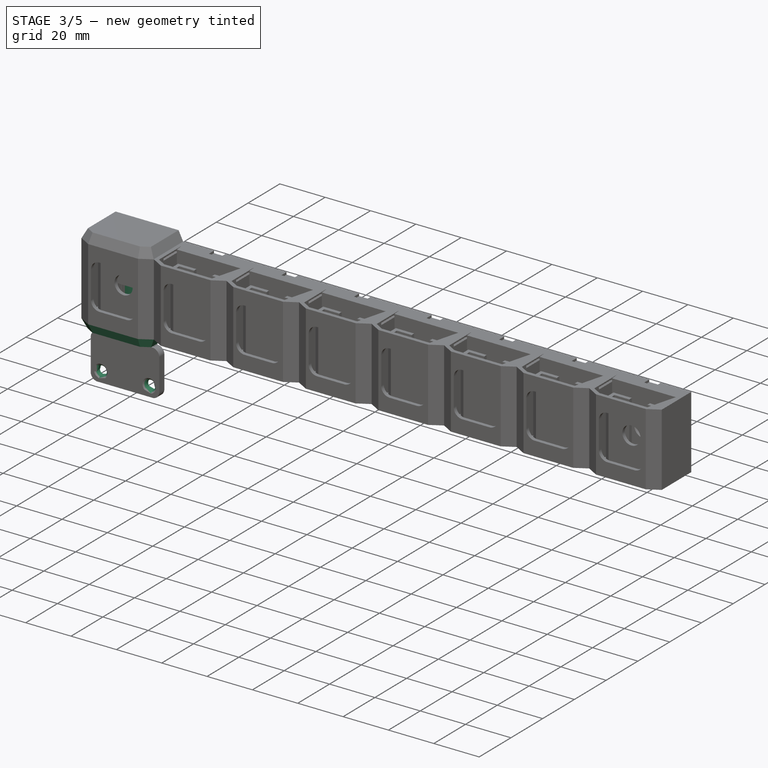
[diagram: stage 3 of 5 — iso view after this stage's code; geometry added in this stage tinted green]
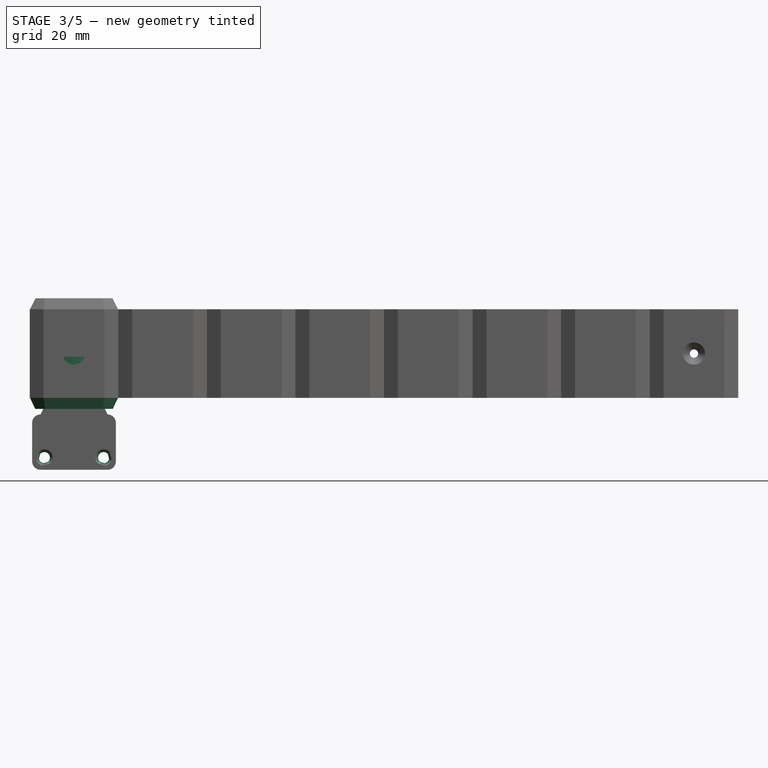
[diagram: stage 3 of 5 — front view after this stage's code; geometry added in this stage tinted green]
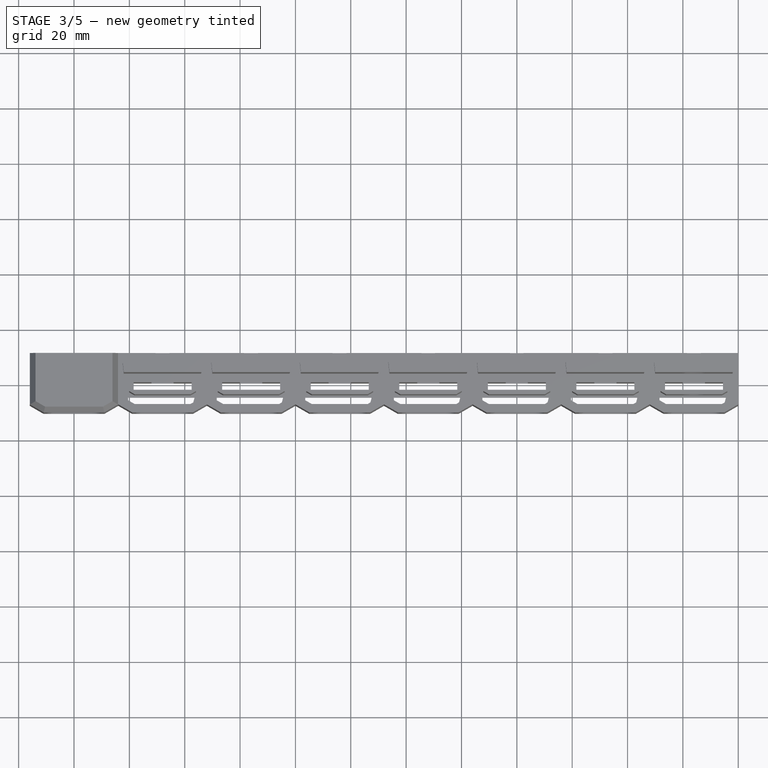
[diagram: stage 3 of 5 — top view after this stage's code; geometry added in this stage tinted green]
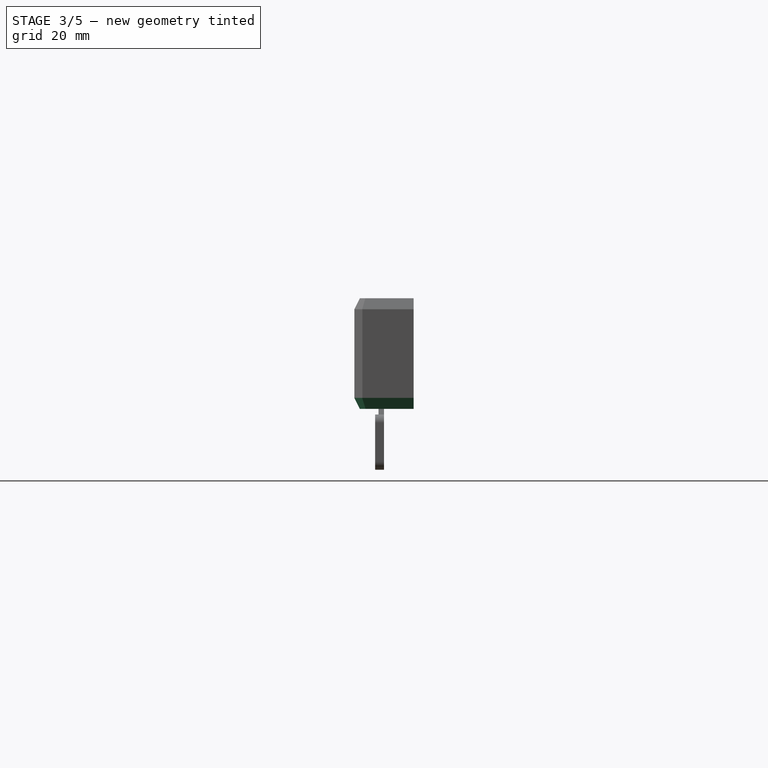
[diagram: stage 3 of 5 — right view after this stage's code; geometry added in this stage tinted green]
FEATURE [PartDesign::Body] Body011  label="PushShort"
  AllowCompound = false
  Group = -> [ShapeBinder015,ShapeBinder016,Sketch052,Pad021,DatumPlane015,DatumPlane016,Sketch053,Pad022,Chamfer008]
  Origin = -> Origin011
  Tip = -> Chamfer008
FEATURE [PartDesign::ShapeBinder] ShapeBinder017
  Support = -> [Sketch002]
  TraceSupport = false
FEATURE [Sketcher::SketchObject] Sketch054  label="BS_Base2"
  ArcFitTolerance = 0
  AttachmentOffset = pos=(0,0,4) rot=(0,0,1;0rad)
  AttachmentSupport = -> [XY_Plane012]
  ExternalGeometry = -> [ShapeBinder017]
  FullyConstrained = true
  MakeInternals = false
  MapMode = 5
  Placement = pos=(0,0,4) rot=(0,0,1;0rad)
  expr: .AttachmentOffset.Base.z = <<BS_Base1>>.AttachmentOffset.Base.z + <<Spreadsheet>>.ShellBottomHeight
  expr: Constraints[29] = <<Spreadsheet>>.Tolerance_tight
  sketch-geometry (12):
    g0: LineSegment StartX=10.9774 StartY=-10.72 StartZ=0 EndX=-10.9774 EndY=-10.72 EndZ=0
    g1: LineSegment StartX=-10.9774 StartY=-10.72 StartZ=0 EndX=-15.9 EndY=-7.87796 EndZ=0
    g2: LineSegment StartX=-15.9 StartY=-7.87796 StartZ=0 EndX=-15.9 EndY=10.72 EndZ=0
    g3: LineSegment StartX=-15.9 StartY=10.72 StartZ=0 EndX=15.9 EndY=10.72 EndZ=0
    g4: LineSegment StartX=15.9 StartY=10.72 StartZ=0 EndX=15.9 EndY=-7.87796 EndZ=0
    g5: LineSegment StartX=15.9 StartY=-7.87796 StartZ=0 EndX=10.9774 EndY=-10.72 EndZ=0
    g6: LineSegment StartX=-10.48 StartY=0.24 StartZ=0 EndX=10.48 EndY=0.24 EndZ=0
    g7: LineSegment StartX=10.48 StartY=0.24 StartZ=0 EndX=10.48 EndY=-2.48 EndZ=0
    g8: LineSegment StartX=10.48 StartY=-2.48 StartZ=0 EndX=-10.48 EndY=-2.48 EndZ=0
    g9: LineSegment StartX=-10.48 StartY=-2.48 StartZ=0 EndX=-10.48 EndY=0.24 EndZ=0
    g10: LineSegment [constr] StartX=16 StartY=-7.82022 StartZ=0 EndX=15.9 EndY=-7.82022 EndZ=0
    g11: LineSegment [constr] StartX=-16 StartY=-7.82022 StartZ=0 EndX=-15.9 EndY=-7.82022 EndZ=0
  constraints (30):
    c: Coincident(g0,g1)
    c: Coincident(g5,g0)
    c: Coincident(g6,g7)
    c: Coincident(g7,g8)
    c: Coincident(g8,g9)
    c: Coincident(g9,g6)
    c: Coincident(g0,g-6)
    c: Coincident(g0,g-5)
    c: Coincident(g6,g-3)
    c: Coincident(g8,g-3)
    c: Coincident(g7,g-4)
    c: Coincident(g6,g-4)
    c: Coincident(g1,g2)
    c: Coincident(g2,g3)
    c: PointOnObject(g1,g-5)
    c: PointOnObject(g2,g-7)
    c: Vertical(g2)
    c: Coincident(g3,g4)
    c: Coincident(g5,g4)
    c: Vertical(g4)
    c: PointOnObject(g3,g-7)
    c: PointOnObject(g4,g-6)
    c: Coincident(g10,g-6)
    c: PointOnObject(g10,g4)
    c: Horizontal(g10)
    c: Coincident(g11,g-5)
    c: PointOnObject(g11,g2)
    c: Horizontal(g11)
    c: Equal(g10,g11)
    c: DistanceX(g-7,g2) = 0.1
FEATURE [Sketcher::SketchObject] Sketch055  label="BS_Base1"
  ArcFitTolerance = 0
  AttachmentSupport = -> [XY_Plane012]
  ExternalGeometry = -> [ShapeBinder017]
  FullyConstrained = true
  MakeInternals = false
  MapMode = 5
  expr: Constraints[50] = <<Spreadsheet>>.ShellBottomHeight / 2
  sketch-geometry (19):
    g0: LineSegment StartX=-14 StartY=10.72 StartZ=0 EndX=14 EndY=10.72 EndZ=0
    g1: LineSegment StartX=14 StartY=10.72 StartZ=0 EndX=14 EndY=-6.66552 EndZ=0
    g2: LineSegment StartX=14 StartY=-6.66552 StartZ=0 EndX=10.4415 EndY=-8.72 EndZ=0
    g3: LineSegment StartX=10.4415 StartY=-8.72 StartZ=0 EndX=-10.4415 EndY=-8.72 EndZ=0
    g4: LineSegment StartX=-10.4415 StartY=-8.72 StartZ=0 EndX=-14 EndY=-6.66552 EndZ=0
    g5: LineSegment StartX=-14 StartY=-6.66552 StartZ=0 EndX=-14 EndY=10.72 EndZ=0
    g6: LineSegment [constr] StartX=-14 StartY=10.72 StartZ=0 EndX=-16 EndY=10.72 EndZ=0
    g7: LineSegment [constr] StartX=14 StartY=-6.66552 StartZ=0 EndX=16 EndY=-6.66552 EndZ=0
    g8: LineSegment [constr] StartX=10.4415 StartY=-8.72 StartZ=0 EndX=11.4415 EndY=-10.4521 EndZ=0
    g9: LineSegment [constr] StartX=-10.4415 StartY=-8.72 StartZ=0 EndX=-10.4415 EndY=-10.72 EndZ=0
    g10: LineSegment [constr] StartX=-14 StartY=-6.66552 StartZ=0 EndX=-15 EndY=-8.39757 EndZ=0
    g11: LineSegment StartX=-12.48 StartY=2.24 StartZ=0 EndX=-12.48 EndY=-4.48 EndZ=0
    g12: LineSegment StartX=-12.48 StartY=-4.48 StartZ=0 EndX=12.48 EndY=-4.48 EndZ=0
    g13: LineSegment StartX=12.48 StartY=-4.48 StartZ=0 EndX=12.48 EndY=2.24 EndZ=0
    g14: LineSegment StartX=12.48 StartY=2.24 StartZ=0 EndX=-12.48 EndY=2.24 EndZ=0
    g15: LineSegment [constr] StartX=-10.48 StartY=0.24 StartZ=0 EndX=-12.48 EndY=0.24 EndZ=0
    g16: LineSegment [constr] StartX=10.48 StartY=0.24 StartZ=0 EndX=10.48 EndY=2.24 EndZ=0
    g17: LineSegment [constr] StartX=10.48 StartY=-2.48 StartZ=0 EndX=12.48 EndY=-2.48 EndZ=0
    g18: LineSegment [constr] StartX=-10.48 StartY=-2.48 StartZ=0 EndX=-10.48 EndY=-4.48 EndZ=0
  constraints (56):
    c: Coincident(g0,g1)
    c: Vertical(g1)
    c: Coincident(g1,g2)
    c: Coincident(g2,g3)
    c: Horizontal(g3)
    c: Coincident(g3,g4)
    c: Coincident(g4,g5)
    c: Coincident(g5,g0)
    c: Vertical(g5)
    c: Coincident(g6,g0)
    c: Horizontal(g6)
    c: Coincident(g7,g1)
    c: Horizontal(g7)
    c: Coincident(g8,g2)
    c: Coincident(g9,g3)
    c: Vertical(g9)
    c: Coincident(g10,g4)
    c: Equal(g7,g8)
    c: Equal(g8,g9)
    c: Equal(g9,g10)
    c: Vertical(g11)
    c: Coincident(g11,g12)
    c: Horizontal(g12)
    c: Coincident(g12,g13)
    c: Vertical(g13)
    c: Coincident(g13,g14)
    c: Coincident(g14,g11)
    c: Horizontal(g14)
    c: PointOnObject(g15,g11)
    c: Horizontal(g15)
    c: PointOnObject(g16,g14)
    c: Vertical(g16)
    c: PointOnObject(g17,g13)
    c: Horizontal(g17)
    c: PointOnObject(g18,g12)
    c: Vertical(g18)
    c: Equal(g10,g18)
    c: Equal(g18,g15)
    c: Equal(g15,g16)
    c: Equal(g16,g17)
    c: Equal(g7,g6)
    c: Coincident(g6,g-8)
    c: PointOnObject(g7,g-6)
    c: PointOnObject(g8,g-5)
    c: PointOnObject(g9,g-4)
    c: PointOnObject(g10,g-3)
    c: Perpendicular(g-3,g10)
    c: Perpendicular(g-5,g8)
    c: Parallel(g2,g-5)
    c: Parallel(g-3,g4)
    c: DistanceX(g6,g6) = 2
    c: PointOnObject(g0,g-7)
    c: Coincident(g15,g-9)
    c: Coincident(g18,g-9)
    c: Coincident(g17,g-10)
    c: Coincident(g16,g-10)
FEATURE [PartDesign::AdditiveLoft] AdditiveLoft004
  Closed = false
  Profile = -> Sketch055
  Ruled = true
  Sections = -> [Sketch054]
  Suppressed = false
FEATURE [Sketcher::SketchObject] Sketch056
  ArcFitTolerance = 0
  AttachmentOffset = pos=(0,0,4) rot=(0,0,1;0rad)
  AttachmentSupport = -> [XY_Plane012]
  ExternalGeometry = -> [ShapeBinder017]
  FullyConstrained = true
  MakeInternals = false
  MapMode = 5
  Placement = pos=(0,0,4) rot=(0,0,1;0rad)
  expr: .AttachmentOffset.Base.z = <<BS_Base2>>.AttachmentOffset.Base.z
  expr: Constraints[40] = <<Spreadsheet>>.Tolerance_tight
  sketch-geometry (20):
    g0: LineSegment StartX=-14.2899 StartY=7.42 StartZ=0 EndX=-13.9492 EndY=3.9 EndZ=0
    g1: LineSegment StartX=-13.9492 StartY=3.9 StartZ=0 EndX=13.9492 EndY=3.9 EndZ=0
    g2: LineSegment StartX=13.9492 StartY=3.9 StartZ=0 EndX=14.2899 EndY=7.42 EndZ=0
    g3: LineSegment StartX=14.2899 StartY=7.42 StartZ=0 EndX=-14.2899 EndY=7.42 EndZ=0
    g4: LineSegment StartX=-12.34 StartY=-4.98 StartZ=0 EndX=12.34 EndY=-4.98 EndZ=0
    g5: LineSegment StartX=12.34 StartY=-4.98 StartZ=0 EndX=12.34 EndY=-5.76281 EndZ=0
    g6: LineSegment StartX=12.34 StartY=-5.76281 StartZ=0 EndX=10.0932 EndY=-7.06 EndZ=0
    g7: LineSegment StartX=10.0932 StartY=-7.06 StartZ=0 EndX=-10.0932 EndY=-7.06 EndZ=0
    g8: LineSegment StartX=-10.0932 StartY=-7.06 StartZ=0 EndX=-12.34 EndY=-5.76281 EndZ=0
    g9: LineSegment StartX=-12.34 StartY=-5.76281 StartZ=0 EndX=-12.34 EndY=-4.98 EndZ=0
    g10: LineSegment [constr] StartX=-14.2899 StartY=7.42 StartZ=0 EndX=-14.2899 EndY=7.52 EndZ=0
    g11: LineSegment [constr] StartX=-13.9492 StartY=3.9 StartZ=0 EndX=-14.0487 EndY=3.89037 EndZ=0
    g12: LineSegment [constr] StartX=13.9492 StartY=3.9 StartZ=0 EndX=13.9492 EndY=3.8 EndZ=0
    g13: LineSegment [constr] StartX=14.2899 StartY=7.42 StartZ=0 EndX=14.3894 EndY=7.41037 EndZ=0
    g14: LineSegment [constr] StartX=-12.34 StartY=-4.98 StartZ=0 EndX=-12.34 EndY=-4.88 EndZ=0
    g15: LineSegment [constr] StartX=-12.34 StartY=-5.76281 StartZ=0 EndX=-12.44 EndY=-5.76281 EndZ=0
    g16: LineSegment [constr] StartX=-10.0932 StartY=-7.06 StartZ=0 EndX=-10.1432 EndY=-7.1466 EndZ=0
    g17: LineSegment [constr] StartX=10.0932 StartY=-7.06 StartZ=0 EndX=10.0932 EndY=-7.16 EndZ=0
    g18: LineSegment [constr] StartX=12.34 StartY=-5.76281 StartZ=0 EndX=12.39 EndY=-5.84941 EndZ=0
    g19: LineSegment [constr] StartX=12.34 StartY=-4.98 StartZ=0 EndX=12.44 EndY=-4.98 EndZ=0
  constraints (60):
    c: Coincident(g0,g1)
    c: Horizontal(g1)
    c: Coincident(g1,g2)
    c: Coincident(g2,g3)
    c: Coincident(g3,g0)
    c: Horizontal(g3)
    c: Horizontal(g4)
    c: Coincident(g4,g5)
    c: Vertical(g5)
    c: Coincident(g5,g6)
    c: Coincident(g6,g7)
    c: Horizontal(g7)
    c: Coincident(g7,g8)
    c: Coincident(g8,g9)
    c: Coincident(g9,g4)
    c: Vertical(g9)
    c: Coincident(g10,g0)
    c: Vertical(g10)
    c: Coincident(g11,g0)
    c: Coincident(g12,g1)
    c: Coincident(g13,g2)
    c: Coincident(g14,g4)
    c: Vertical(g14)
    c: Coincident(g15,g8)
    c: PointOnObject(g15,g-3)
    c: Horizontal(g15)
    c: Coincident(g16,g7)
    c: Coincident(g17,g6)
    c: Coincident(g18,g5)
    c: Coincident(g19,g4)
    c: Horizontal(g19)
    c: Equal(g10,g11)
    c: Equal(g11,g12)
    c: Equal(g12,g13)
    c: Equal(g13,g14)
    c: Equal(g14,g15)
    c: Equal(g15,g16)
    c: Equal(g16,g17)
    c: Equal(g17,g18)
    c: Equal(g18,g19)
    c: DistanceY(g10,g10) = 0.1
    c: Perpendicular(g8,g16)
    c: Perpendicular(g6,g18)
    c: Vertical(g17)
    c: Vertical(g12)
    c: PointOnObject(g19,g-12)
    c: PointOnObject(g18,g-11)
    c: Parallel(g6,g-11)
    c: PointOnObject(g17,g-10)
    c: PointOnObject(g16,g-9)
    c: Parallel(g8,g-9)
    c: PointOnObject(g14,g-8)
    c: Parallel(g0,g-5)
    c: PointOnObject(g11,g-5)
    c: PointOnObject(g12,g-6)
    c: Parallel(g-7,g2)
    c: PointOnObject(g13,g-7)
    c: PointOnObject(g10,g-4)
    c: Perpendicular(g0,g11)
    c: Perpendicular(g2,g13)
FEATURE [PartDesign::Pad] Pad023
  BaseFeature = -> AdditiveLoft004
  Direction = (0,0,1)
  Length = 2
  Length2 = 10
  Profile = -> Sketch056
  ReferenceAxis = -> Sketch056 [N_Axis]
  Suppressed = false
  Type = 0
  expr: Length = <<Spreadsheet>>.ShellBottomInterfaceHeight
FEATURE [PartDesign::Body] Body012  label="BottomShort"
  AllowCompound = false
  Group = -> [ShapeBinder017,Sketch054,AdditiveLoft004,Sketch055,Sketch056,Pad023,Chamfer]
  Origin = -> Origin012
  Tip = -> Chamfer
FEATURE [PartDesign::ShapeBinder] ShapeBinder018
  Support = -> [Sketch002]
  TraceSupport = false
FEATURE [Sketcher::SketchObject] Sketch057
  ArcFitTolerance = 0
  AttachmentOffset = pos=(0,0,6.36) rot=(0,0,1;0rad)
  AttachmentSupport = -> [XY_Plane013]
  ExternalGeometry = -> [ShapeBinder018]
  FullyConstrained = true
  MakeInternals = false
  MapMode = 5
  Placement = pos=(0,0,6.36) rot=(0,0,1;0rad)
  expr: .AttachmentOffset.Base.z = Spreadsheet.ShellBottomHeight + <<Spreadsheet>>.ShellBottomInterfaceHeight + <<Spreadsheet>>.Tolerance_loose
  sketch-geometry (5):
    g0: LineSegment [constr] StartX=-12.4 StartY=1.8 StartZ=0 EndX=12.4 EndY=1.8 EndZ=0
    g1: ArcOfCircle CenterX=7.8e-15 CenterY=19.3111 CenterZ=0 NormalX=0 NormalY=0 NormalZ=1 AngleXU=0 Radius=17.1111 StartAngle=3.90183 EndAngle=5.52295
    g2: LineSegment StartX=-12.4 StartY=7.52 StartZ=0 EndX=-12.6899 EndY=7.24436 EndZ=0
    g3: LineSegment StartX=12.4 StartY=7.52 StartZ=0 EndX=12.6899 EndY=7.24436 EndZ=0
    g4: ArcOfCircle CenterX=7.8e-15 CenterY=19.3111 CenterZ=0 NormalX=0 NormalY=0 NormalZ=1 AngleXU=0 Radius=17.5111 StartAngle=3.90183 EndAngle=5.52295
  constraints (17):
    c: PointOnObject(g0,g-3)
    c: PointOnObject(g1,g-3)
    c: PointOnObject(g0,g-4)
    c: Tangent(g4,g0)
    c: Equal(g2,g-3)
    c: Coincident(g2,g4)
    c: Coincident(g1,g2)
    c: Coincident(g1,g3)
    c: Coincident(g3,g4)
    c: PointOnObject(g1,g2)
    c: PointOnObject(g1,g3)
    c: Horizontal(g0)
    c: Coincident(g1,g4)
    c: PointOnObject(g1,g-4)
    c: PointOnObject(g1,g-6)
    c: PointOnObject(g1,g-6)
    c: DistanceY(g0,g-5) = 2
FEATURE [PartDesign::Pad] Pad024
  Direction = (0,0,1)
  Length = 25.28
  Length2 = 10
  Profile = -> Sketch057
  ReferenceAxis = -> Sketch057 [N_Axis]
  Suppressed = false
  Type = 0
  expr: Length = <<Spreadsheet>>.GuideHeight - <<Spreadsheet>>.ShellBottomInterfaceHeight - <<Spreadsheet>>.Tolerance_loose
FEATURE [PartDesign::Body] Body013  label="SpringShort"
  AllowCompound = false
  Group = -> [ShapeBinder018,Sketch057,Pad024]
  Origin = -> Origin013
  Tip = -> Pad024
FEATURE [Sketcher::SketchObject] Sketch058
  ArcFitTolerance = 0
  AttachmentSupport = -> [XY_Plane014]
  FullyConstrained = true
  MakeInternals = false
  MapMode = 5
  sketch-geometry (5):
    g0: Ellipse CenterX=0 CenterY=0 CenterZ=0 NormalX=0 NormalY=0 NormalZ=1 MajorRadius=3.25 MinorRadius=2.5 AngleXU=0
    g1: LineSegment [constr] StartX=3.25 StartY=0 StartZ=0 EndX=-3.25 EndY=0 EndZ=0
    g2: LineSegment [constr] StartX=0 StartY=2.5 StartZ=0 EndX=0 EndY=-2.5 EndZ=0
    g3: GeomPoint [constr] X=2.07666 Y=0 Z=0
    g4: GeomPoint [constr] X=-2.07666 Y=0 Z=0
  constraints (5):
    c: InternalAlignment(g1-g4 -> g0) x4
    c: Coincident(g0,g-1)
    c: Horizontal(g1)
    c: DistanceY(g2,g2) = 5
    c: DistanceX(g1,g1) = 6.5
FEATURE [Sketcher::SketchObject] Sketch059
  ArcFitTolerance = 0
  AttachmentOffset = pos=(0,0,8) rot=(0,0,1;0rad)
  AttachmentSupport = -> [XY_Plane014]
  ExternalGeometry = -> [Sketch058]
  FullyConstrained = true
  MakeInternals = false
  MapMode = 5
  Placement = pos=(0,0,8) rot=(0,0,1;0rad)
  sketch-geometry (5):
    g0: Ellipse CenterX=6.5 CenterY=0 CenterZ=0 NormalX=0 NormalY=0 NormalZ=1 MajorRadius=3.25 MinorRadius=2.5 AngleXU=-3.14159
    g1: LineSegment [constr] StartX=3.25 StartY=0 StartZ=0 EndX=9.75 EndY=0 EndZ=0
    g2: LineSegment [constr] StartX=6.5 StartY=-2.5 StartZ=0 EndX=6.5 EndY=2.5 EndZ=0
    g3: GeomPoint [constr] X=4.42334 Y=-3e-16 Z=0
    g4: GeomPoint [constr] X=8.57666 Y=0 Z=0
  constraints (5):
    c: InternalAlignment(g1-g4 -> g0) x4
    c: Equal(g0,g-3)
    c: Horizontal(g1)
    c: PointOnObject(g1,g-1)
    c: PointOnObject(g1,g-3)
FEATURE [PartDesign::AdditiveLoft] AdditiveLoft
  Closed = false
  Profile = -> Sketch058
  Ruled = false
  Sections = -> [Sketch059]
  Suppressed = false
FEATURE [PartDesign::Plane] DatumPlane017
  AttachmentSupport = -> [AdditiveLoft]
  Length = 61.8605
  MapMode = 7
  Placement = pos=(3.25,0,8) rot=(0.685824,-0.685824,-0.243495;2.6639rad)
  ResizeMode = 0
  Width = 82.1958
FEATURE [Sketcher::SketchObject] Sketch060
  ArcFitTolerance = 0
  AttachmentSupport = -> [DatumPlane017]
  ExternalGeometry = -> [Sketch058]
  FullyConstrained = true
  MakeInternals = false
  MapMode = 5
  Placement = pos=(3.25,0,8) rot=(0.685824,-0.685824,-0.243495;2.6639rad)
  sketch-geometry (1):
    g0: Circle CenterX=0 CenterY=-2.52237 CenterZ=0 NormalX=0 NormalY=0 NormalZ=1 AngleXU=0 Radius=0.96
  constraints (2):
    c: Coincident(g0,g-3)
    c: Diameter(g0) = 1.92
FEATURE [PartDesign::Pocket] Pocket009
  BaseFeature = -> AdditiveLoft
  Direction = (0.630593,1e-16,0.776114)
  Length = 5
  Length2 = 5
  Midplane = true
  Profile = -> Sketch060
  ReferenceAxis = -> Sketch060 [N_Axis]
  Suppressed = false
  Type = 1
FEATURE [PartDesign::Body] Body014  label="SpringHoleTest"
  AllowCompound = false
  Group = -> [Sketch058,Sketch059,AdditiveLoft,DatumPlane017,Sketch060,Pocket009]
  Origin = -> Origin014
  Tip = -> Pocket009
FEATURE [PartDesign::FeatureBase] Clone
  BaseFeature = -> Body008
  Suppressed = false
FEATURE [PartDesign::ShapeBinder] ShapeBinder019
  Placement = pos=(0,0,0) rot=(1,0,0;1.5708rad)
  Support = -> [Sketch034]
  TraceSupport = false
FEATURE [Sketcher::SketchObject] Sketch061
  ArcFitTolerance = 0
  AttachmentSupport = -> [XZ_Plane015]
  ExternalGeometry = -> [ShapeBinder019]
  FullyConstrained = true
  MakeInternals = false
  MapMode = 5
  Placement = pos=(0,0,0) rot=(1,0,0;1.5708rad)
  sketch-geometry (4):
    g0: Circle CenterX=-10.7058 CenterY=-17.5858 CenterZ=0 NormalX=0 NormalY=0 NormalZ=1 AngleXU=0 Radius=2
    g1: Circle CenterX=10.7058 CenterY=-17.5858 CenterZ=0 NormalX=0 NormalY=0 NormalZ=1 AngleXU=0 Radius=2
    g2: LineSegment [constr] StartX=-10.7058 StartY=-17.5858 StartZ=0 EndX=-14.2413 EndY=-21.1213 EndZ=0
    g3: LineSegment [constr] StartX=10.7058 StartY=-17.5858 StartZ=0 EndX=14.2413 EndY=-21.1213 EndZ=0
  constraints (10):
    c: Equal(g0,g1)
    c: PointOnObject(g-4,g1)
    c: Radius(g1) = 2
    c: Coincident(g2,g0)
    c: PointOnObject(g2,g-3)
    c: Symmetric(g-3,g-3,g2)
    c: PointOnObject(g-3,g0)
    c: Coincident(g3,g1)
    c: PointOnObject(g3,g-4)
    c: Symmetric(g-4,g-4,g3)
FEATURE [PartDesign::Pocket] Pocket010
  BaseFeature = -> Clone
  Direction = (0,1,-2e-16)
  Length = 5
  Length2 = 5
  Profile = -> Sketch061
  ReferenceAxis = -> Sketch061 [N_Axis]
  Reversed = true
  Suppressed = false
  Type = 1
FEATURE [PartDesign::Chamfer] Chamfer009
  Angle = 45
  Base = -> Pocket010 [Face17,Face18]
  BaseFeature = -> Pocket010
  ChamferType = 0
  FlipDirection = false
  Size = 1
  Size2 = 1
  SupportTransform = false
  Suppressed = false
  UseAllEdges = false
FEATURE [PartDesign::ShapeBinder] ShapeBinder020
  Placement = pos=(0,0,0) rot=(1,0,0;1.5708rad)
  Support = -> [Sketch034]
  TraceSupport = false
FEATURE [Sketcher::SketchObject] Sketch062
  ArcFitTolerance = 0
  AttachmentSupport = -> [XZ_Plane016]
  ExternalGeometry = -> [ShapeBinder020]
  FullyConstrained = true
  MakeInternals = false
  MapMode = 5
  Placement = pos=(0,0,0) rot=(1,0,0;1.5708rad)
  sketch-geometry (23):
    g0: LineSegment [constr] StartX=-14.2413 StartY=-21.1213 StartZ=0 EndX=-8.82149 EndY=-15.7015 EndZ=0
    g1: ArcOfCircle CenterX=-12.12 CenterY=-19 CenterZ=0 NormalX=0 NormalY=0 NormalZ=1 AngleXU=0 Radius=0.8 StartAngle=2.87979 EndAngle=4.97419
    g2: LineSegment StartX=-12.8927 StartY=-18.7929 StartZ=0 EndX=-11.7281 EndY=-14.4463 EndZ=0
    g3: LineSegment StartX=-11.9129 StartY=-19.7727 StartZ=0 EndX=-7.56628 EndY=-18.6081 EndZ=0
    g4: ArcOfCircle CenterX=-10.1826 CenterY=-14.8604 CenterZ=0 NormalX=0 NormalY=0 NormalZ=1 AngleXU=0 Radius=1.6 StartAngle=5.72966 EndAngle=9.16298
    g5: ArcOfCircle CenterX=-7.98039 CenterY=-17.0626 CenterZ=0 NormalX=0 NormalY=0 NormalZ=1 AngleXU=0 Radius=1.6 StartAngle=4.97419 EndAngle=8.40751
    g6: ArcOfCircle CenterX=12.12 CenterY=-19 CenterZ=0 NormalX=0 NormalY=0 NormalZ=1 AngleXU=0 Radius=0.8 StartAngle=4.45059 EndAngle=6.54498
    g7: LineSegment [constr] StartX=14.2413 StartY=-21.1213 StartZ=0 EndX=8.82149 EndY=-15.7015 EndZ=0
    g8: LineSegment StartX=11.9129 StartY=-19.7727 StartZ=0 EndX=7.56628 EndY=-18.6081 EndZ=0
    g9: LineSegment StartX=12.8927 StartY=-18.7929 StartZ=0 EndX=11.7281 EndY=-14.4463 EndZ=0
    g10: LineSegment [constr] StartX=-11.7281 StartY=-14.4463 StartZ=0 EndX=-7.56628 EndY=-18.6081 EndZ=0
    g11: LineSegment [constr] StartX=7.56628 StartY=-18.6081 StartZ=0 EndX=11.7281 EndY=-14.4463 EndZ=0
    g12: ArcOfCircle CenterX=7.98039 CenterY=-17.0626 CenterZ=0 NormalX=0 NormalY=0 NormalZ=1 AngleXU=0 Radius=1.6 StartAngle=1.01727 EndAngle=4.45059
    g13: ArcOfCircle CenterX=10.1826 CenterY=-14.8604 CenterZ=0 NormalX=0 NormalY=0 NormalZ=1 AngleXU=0 Radius=1.6 StartAngle=0.261799 EndAngle=3.69512
    g14: GeomPoint [constr] X=5.029e-13 Y=-22 Z=0
    g15: ArcOfCircle [constr] CenterX=5.027e-13 CenterY=-14 CenterZ=0 NormalX=0 NormalY=0 NormalZ=1 AngleXU=0 Radius=8 StartAngle=1.0472 EndAngle=2.0944
    g16: LineSegment [constr] StartX=5.029e-13 StartY=-22 StartZ=0 EndX=5.029e-13 EndY=-12 EndZ=0
    g17: LineSegment [constr] StartX=-4 StartY=-7.0718 StartZ=0 EndX=5.027e-13 EndY=-14 EndZ=0
    g18: LineSegment [constr] StartX=4 StartY=-7.0718 StartZ=0 EndX=5.027e-13 EndY=-14 EndZ=0
    g19: LineSegment [constr] StartX=-4 StartY=-7.0718 StartZ=0 EndX=4 EndY=-7.0718 EndZ=0
    g20: ArcOfCircle [constr] CenterX=5.029e-13 CenterY=-12 CenterZ=0 NormalX=0 NormalY=0 NormalZ=1 AngleXU=0 Radius=7.34143 StartAngle=0.900504 EndAngle=2.24109
    g21: ArcOfCircle [constr] CenterX=-4.25 CenterY=-6.63878 CenterZ=0 NormalX=0 NormalY=0 NormalZ=1 AngleXU=0 Radius=0.5 StartAngle=2.24109 EndAngle=5.23599
    g22: ArcOfCircle [constr] CenterX=4.25 CenterY=-6.63878 CenterZ=0 NormalX=0 NormalY=0 NormalZ=1 AngleXU=0 Radius=0.5 StartAngle=4.18879 EndAngle=7.18369
  constraints (55):
    c: PointOnObject(g0,g-3)
    c: Symmetric(g-3,g-3,g0)
    c: Radius(g1) = 0.8
    c: Coincident(g1,g-3)
    c: Distance(g2) = 4.5
    c: Equal(g3,g2)
    c: Tangent(g1,g2) = 1.5708
    c: Tangent(g1,g3) = -1.5708
    c: Coincident(g4,g0)
    c: Coincident(g5,g4)
    c: Equal(g5,g4)
    c: Tangent(g2,g4) = 1.5708
    c: Tangent(g3,g5) = -1.5708
    c: Angle(g3,g2) = 1.0472
    c: Radius(g5) = 1.6
    c: Coincident(g6,g-4)
    c: PointOnObject(g7,g-4)
    c: Symmetric(g-4,g-4,g7)
    c: Equal(g6,g1)
    c: Equal(g9,g8)
    c: Equal(g8,g3)
    c: Coincident(g10,g2)
    c: Coincident(g10,g3)
    c: Coincident(g11,g8)
    c: Coincident(g11,g9)
    c: Equal(g11,g10)
    c: Equal(g7,g0)
    c: Tangent(g6,g8) = 1.5708
    c: Tangent(g6,g9) = -1.5708
    c: Coincident(g12,g7)
    c: Coincident(g13,g12)
    c: Tangent(g13,g9) = -1.5708
    c: Tangent(g12,g8) = 1.5708
    c: Equal(g12,g13)
    c: Symmetric(g-4,g-3,g14)
    c: Coincident(g16,g14)
    c: Vertical(g16)
    c: PointOnObject(g15,g16)
    c: DistanceY(g14,g15) = 8
    c: Radius(g15) = 8
    c: Coincident(g17,g15)
    c: Coincident(g17,g15)
    c: Coincident(g18,g15)
    c: Coincident(g18,g15)
    c: Angle(g18,g17) = 1.0472
    c: Coincident(g19,g15)
    c: Coincident(g19,g15)
    c: Horizontal(g19)
    c: DistanceY(g15,g20) = 2
    c: Tangent(g15,g22) = 1.5708
    c: Tangent(g15,g21) = 1.5708
    c: Tangent(g20,g21) = -1.5708
    c: Tangent(g20,g22) = -1.5708
    c: Radius(g21) = 0.5
    c: Coincident(g16,g20)
FEATURE [PartDesign::Pocket] Pocket011
  BaseFeature = -> Clone001
  Direction = (0,1,-2e-16)
  Length = 5
  Length2 = 5
  Profile = -> Sketch062
  ReferenceAxis = -> Sketch062 [N_Axis]
  Reversed = true
  Suppressed = false
  Type = 1
FEATURE [PartDesign::Chamfer] Chamfer010
  Angle = 45
  Base = -> Pocket011 [Face21,Face30,Face30,Edge19,Edge71]
  BaseFeature = -> Pocket011
  ChamferType = 0
  FlipDirection = false
  Size = 0.8
  Size2 = 1
  SupportTransform = false
  Suppressed = false
  UseAllEdges = false
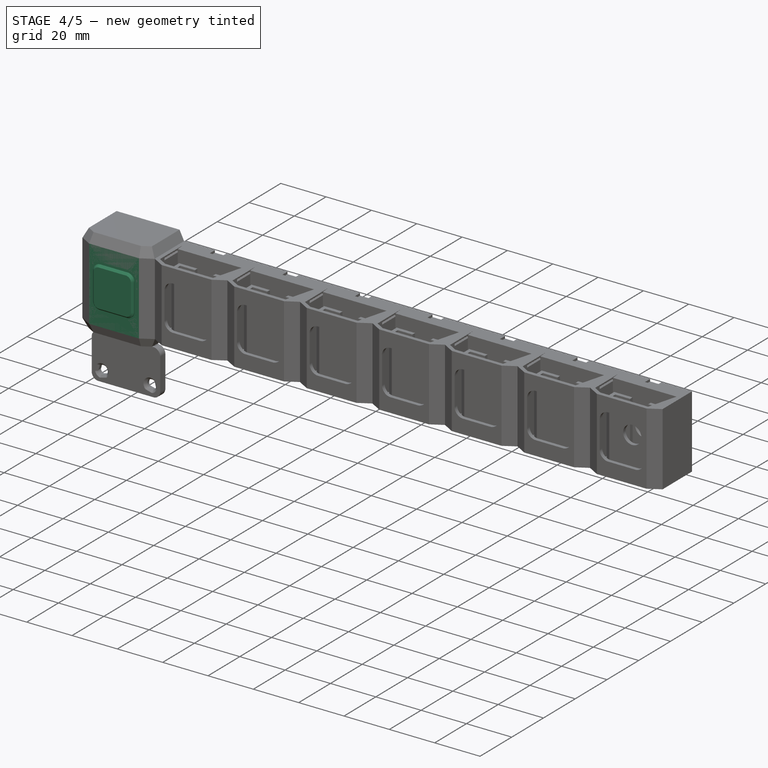
[diagram: stage 4 of 5 — iso view after this stage's code; geometry added in this stage tinted green]
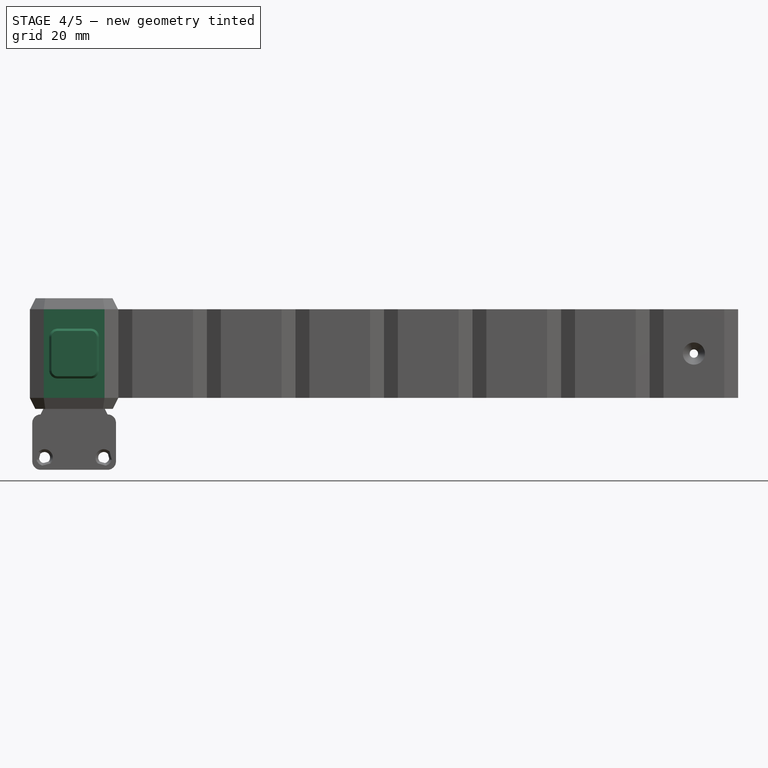
[diagram: stage 4 of 5 — front view after this stage's code; geometry added in this stage tinted green]
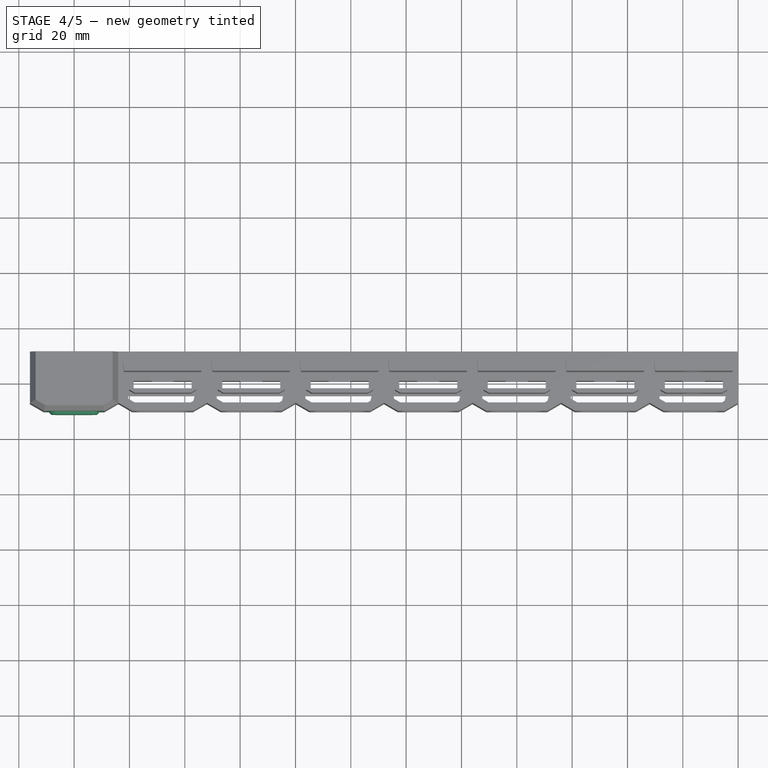
[diagram: stage 4 of 5 — top view after this stage's code; geometry added in this stage tinted green]
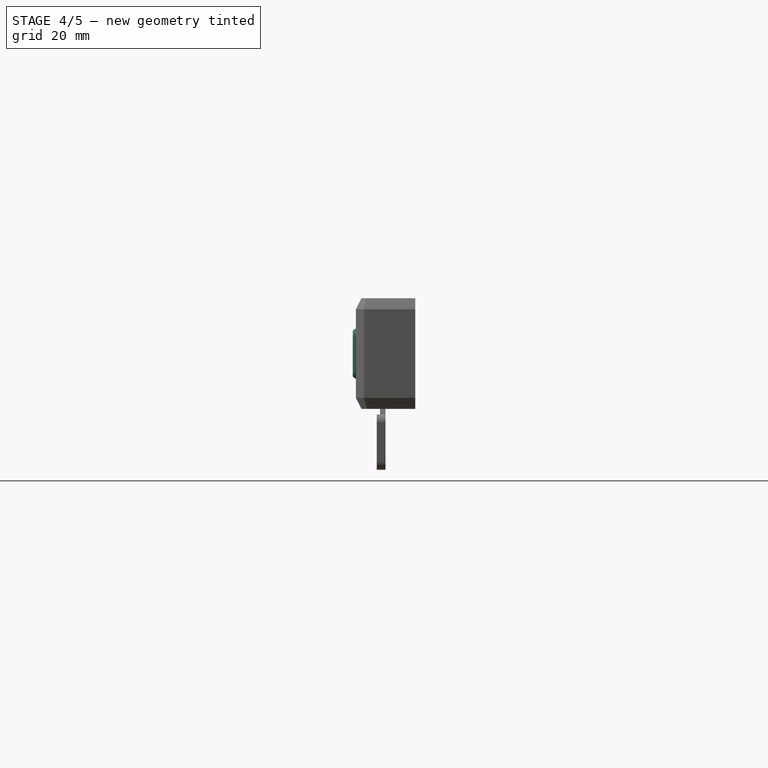
[diagram: stage 4 of 5 — right view after this stage's code; geometry added in this stage tinted green]
FEATURE [PartDesign::Body] Body008  label="Key"
  AllowCompound = false
  Group = -> [ShapeBinder008,Sketch034,Pad013,Sketch035,Pad014]
  Origin = -> Origin008
  Tip = -> Pad014
FEATURE [Sketcher::SketchObject] Sketch036  label="S_Base2"
  ArcFitTolerance = 0
  AttachmentOffset = pos=(0,0,4) rot=(0,0,1;0rad)
  AttachmentSupport = -> [XY_Plane001]
  ExternalGeometry = -> [ShapeBinder]
  FullyConstrained = true
  MakeInternals = false
  MapMode = 5
  Placement = pos=(0,0,4) rot=(0,0,1;0rad)
  expr: .AttachmentOffset.Base.z = <<S_Base1>>.AttachmentOffset.Base.z + <<Spreadsheet>>.ShellBottomHeight
  sketch-geometry (10):
    g0: LineSegment StartX=10.9774 StartY=-10.72 StartZ=0 EndX=-10.9774 EndY=-10.72 EndZ=0
    g1: LineSegment StartX=-10.9774 StartY=-10.72 StartZ=0 EndX=-16 EndY=-7.82022 EndZ=0
    g2: LineSegment StartX=-16 StartY=-7.82022 StartZ=0 EndX=-16 EndY=10.72 EndZ=0
    g3: LineSegment StartX=-16 StartY=10.72 StartZ=0 EndX=16 EndY=10.72 EndZ=0
    g4: LineSegment StartX=16 StartY=10.72 StartZ=0 EndX=16 EndY=-7.82022 EndZ=0
    g5: LineSegment StartX=16 StartY=-7.82022 StartZ=0 EndX=10.9774 EndY=-10.72 EndZ=0
    g6: LineSegment StartX=-10.48 StartY=0.24 StartZ=0 EndX=10.48 EndY=0.24 EndZ=0
    g7: LineSegment StartX=10.48 StartY=0.24 StartZ=0 EndX=10.48 EndY=-2.48 EndZ=0
    g8: LineSegment StartX=10.48 StartY=-2.48 StartZ=0 EndX=-10.48 EndY=-2.48 EndZ=0
    g9: LineSegment StartX=-10.48 StartY=-2.48 StartZ=0 EndX=-10.48 EndY=0.24 EndZ=0
  constraints (20):
    c: Coincident(g0,g1)
    c: Coincident(g1,g2)
    c: Coincident(g2,g3)
    c: Coincident(g3,g4)
    c: Coincident(g4,g5)
    c: Coincident(g5,g0)
    c: Coincident(g6,g7)
    c: Coincident(g7,g8)
    c: Coincident(g8,g9)
    c: Coincident(g9,g6)
    c: Coincident(g3,g-7)
    c: Coincident(g4,g-6)
    c: Coincident(g0,g-6)
    c: Coincident(g0,g-5)
    c: Coincident(g1,g-5)
    c: Coincident(g2,g-7)
    c: Coincident(g6,g-3)
    c: Coincident(g8,g-3)
    c: Coincident(g7,g-4)
    c: Coincident(g6,g-4)
FEATURE [Sketcher::SketchObject] Sketch037  label="S_Base1"
  ArcFitTolerance = 0
  AttachmentSupport = -> [XY_Plane001]
  ExternalGeometry = -> [ShapeBinder]
  FullyConstrained = true
  MakeInternals = false
  MapMode = 5
  expr: Constraints[50] = <<Spreadsheet>>.ShellBottomHeight / 2
  sketch-geometry (19):
    g0: LineSegment StartX=-14 StartY=10.72 StartZ=0 EndX=14 EndY=10.72 EndZ=0
    g1: LineSegment StartX=14 StartY=10.72 StartZ=0 EndX=14 EndY=-6.66552 EndZ=0
    g2: LineSegment StartX=14 StartY=-6.66552 StartZ=0 EndX=10.4415 EndY=-8.72 EndZ=0
    g3: LineSegment StartX=10.4415 StartY=-8.72 StartZ=0 EndX=-10.4415 EndY=-8.72 EndZ=0
    g4: LineSegment StartX=-10.4415 StartY=-8.72 StartZ=0 EndX=-14 EndY=-6.66552 EndZ=0
    g5: LineSegment StartX=-14 StartY=-6.66552 StartZ=0 EndX=-14 EndY=10.72 EndZ=0
    g6: LineSegment [constr] StartX=-14 StartY=10.72 StartZ=0 EndX=-16 EndY=10.72 EndZ=0
    g7: LineSegment [constr] StartX=14 StartY=-6.66552 StartZ=0 EndX=16 EndY=-6.66552 EndZ=0
    g8: LineSegment [constr] StartX=10.4415 StartY=-8.72 StartZ=0 EndX=11.4415 EndY=-10.4521 EndZ=0
    g9: LineSegment [constr] StartX=-10.4415 StartY=-8.72 StartZ=0 EndX=-10.4415 EndY=-10.72 EndZ=0
    g10: LineSegment [constr] StartX=-14 StartY=-6.66552 StartZ=0 EndX=-15 EndY=-8.39757 EndZ=0
    g11: LineSegment StartX=-12.48 StartY=2.24 StartZ=0 EndX=-12.48 EndY=-4.48 EndZ=0
    g12: LineSegment StartX=-12.48 StartY=-4.48 StartZ=0 EndX=12.48 EndY=-4.48 EndZ=0
    g13: LineSegment StartX=12.48 StartY=-4.48 StartZ=0 EndX=12.48 EndY=2.24 EndZ=0
    g14: LineSegment StartX=12.48 StartY=2.24 StartZ=0 EndX=-12.48 EndY=2.24 EndZ=0
    g15: LineSegment [constr] StartX=-10.48 StartY=0.24 StartZ=0 EndX=-12.48 EndY=0.24 EndZ=0
    g16: LineSegment [constr] StartX=10.48 StartY=0.24 StartZ=0 EndX=10.48 EndY=2.24 EndZ=0
    g17: LineSegment [constr] StartX=10.48 StartY=-2.48 StartZ=0 EndX=12.48 EndY=-2.48 EndZ=0
    g18: LineSegment [constr] StartX=-10.48 StartY=-2.48 StartZ=0 EndX=-10.48 EndY=-4.48 EndZ=0
  constraints (56):
    c: Coincident(g0,g1)
    c: Vertical(g1)
    c: Coincident(g1,g2)
    c: Coincident(g2,g3)
    c: Horizontal(g3)
    c: Coincident(g3,g4)
    c: Coincident(g4,g5)
    c: Coincident(g5,g0)
    c: Vertical(g5)
    c: Coincident(g6,g0)
    c: Horizontal(g6)
    c: Coincident(g7,g1)
    c: Horizontal(g7)
    c: Coincident(g8,g2)
    c: Coincident(g9,g3)
    c: Vertical(g9)
    c: Coincident(g10,g4)
    c: Equal(g7,g8)
    c: Equal(g8,g9)
    c: Equal(g9,g10)
    c: Vertical(g11)
    c: Coincident(g11,g12)
    c: Horizontal(g12)
    c: Coincident(g12,g13)
    c: Vertical(g13)
    c: Coincident(g13,g14)
    c: Coincident(g14,g11)
    c: Horizontal(g14)
    c: PointOnObject(g15,g11)
    c: Horizontal(g15)
    c: PointOnObject(g16,g14)
    c: Vertical(g16)
    c: PointOnObject(g17,g13)
    c: Horizontal(g17)
    c: PointOnObject(g18,g12)
    c: Vertical(g18)
    c: Equal(g10,g18)
    c: Equal(g18,g15)
    c: Equal(g15,g16)
    c: Equal(g16,g17)
    c: Equal(g7,g6)
    c: Coincident(g6,g-8)
    c: PointOnObject(g7,g-6)
    c: PointOnObject(g8,g-5)
    c: PointOnObject(g9,g-4)
    c: PointOnObject(g10,g-3)
    c: Perpendicular(g-3,g10)
    c: Perpendicular(g-5,g8)
    c: Parallel(g2,g-5)
    c: Parallel(g-3,g4)
    c: DistanceX(g6,g6) = 2
    c: PointOnObject(g0,g-7)
    c: Coincident(g15,g-9)
    c: Coincident(g18,g-9)
    c: Coincident(g17,g-10)
    c: Coincident(g16,g-10)
FEATURE [PartDesign::AdditiveLoft] AdditiveLoft003
  Closed = false
  Profile = -> Sketch037
  Ruled = true
  Sections = -> [Sketch036]
  Suppressed = false
FEATURE [Sketcher::SketchObject] Sketch038  label="S_Walls"
  ArcFitTolerance = 0
  AttachmentOffset = pos=(0,0,4) rot=(0,0,1;0rad)
  AttachmentSupport = -> [XY_Plane001]
  ExternalGeometry = -> [ShapeBinder]
  FullyConstrained = true
  MakeInternals = false
  MapMode = 5
  Placement = pos=(0,0,4) rot=(0,0,1;0rad)
  expr: .AttachmentOffset.Base.z = <<S_Base2>>.AttachmentOffset.Base.z
  sketch-geometry (12):
    g0: LineSegment StartX=10.9774 StartY=-10.72 StartZ=0 EndX=-10.9774 EndY=-10.72 EndZ=0
    g1: LineSegment StartX=-10.9774 StartY=-10.72 StartZ=0 EndX=-16 EndY=-7.82022 EndZ=0
    g2: LineSegment StartX=-16 StartY=-7.82022 StartZ=0 EndX=-16 EndY=10.72 EndZ=0
    g3: LineSegment StartX=-16 StartY=10.72 StartZ=0 EndX=16 EndY=10.72 EndZ=0
    g4: LineSegment StartX=16 StartY=10.72 StartZ=0 EndX=16 EndY=-7.82022 EndZ=0
    g5: LineSegment StartX=16 StartY=-7.82022 StartZ=0 EndX=10.9774 EndY=-10.72 EndZ=0
    g6: LineSegment StartX=14.04 StartY=-6.74431 StartZ=0 EndX=14.04 EndY=-2.53 EndZ=0
    g7: LineSegment StartX=14.04 StartY=-2.53 StartZ=0 EndX=12.44 EndY=-2.53 EndZ=0
    g8: LineSegment StartX=12.44 StartY=-2.53 StartZ=0 EndX=12.44 EndY=-5.82055 EndZ=0
    g9: LineSegment StartX=12.44 StartY=-5.82055 StartZ=0 EndX=10.12 EndY=-7.16 EndZ=0
    g10: LineSegment StartX=10.12 StartY=-7.16 StartZ=0 EndX=-10.12 EndY=-7.16 EndZ=0
    g11: LineSegment StartX=-10.12 StartY=-7.16 StartZ=0 EndX=14.04 EndY=-6.74431 EndZ=0
  constraints (24):
    c: Coincident(g0,g1)
    c: Coincident(g1,g2)
    c: Coincident(g2,g3)
    c: Coincident(g3,g4)
    c: Coincident(g4,g5)
    c: Coincident(g5,g0)
    c: Coincident(g6,g7)
    c: Coincident(g7,g8)
    c: Coincident(g8,g9)
    c: Coincident(g9,g10)
    c: Coincident(g10,g11)
    c: Coincident(g11,g6)
    c: Coincident(g3,g-7)
    c: Coincident(g9,g-8)
    c: Coincident(g8,g-5)
    c: Coincident(g4,g-6)
    c: Coincident(g7,g-5)
    c: Coincident(g0,g-6)
    c: Coincident(g0,g-3)
    c: Coincident(g6,g-4)
    c: Coincident(g6,g-4)
    c: Coincident(g1,g-3)
    c: Coincident(g2,g-7)
    c: Coincident(g10,g-8)
FEATURE [PartDesign::Pad] Pad  label="S_Walls_"
  BaseFeature = -> AdditiveLoft003
  Direction = (0,0,1)
  Length = 32
  Length2 = 10
  Profile = -> Sketch038
  ReferenceAxis = -> Sketch038 [N_Axis]
  Refine = true
  Suppressed = false
  Type = 0
  expr: Length = <<Spreadsheet>>.ShellHeight - <<Spreadsheet>>.ShellBottomHeight
FEATURE [PartDesign::Pad] Pad001  label="S_Guide_"
  BaseFeature = -> Pad
  Direction = (0,0,1)
  Length = 27.64
  Length2 = 10
  Profile = -> Sketch005
  ReferenceAxis = -> Sketch005 [N_Axis]
  Suppressed = false
  Type = 0
  expr: Length = <<Spreadsheet>>.GuideHeight
FEATURE [PartDesign::Body] Body009  label="ShellShort"
  AllowCompound = false
  Group = -> [ShapeBinder011,ShapeBinder012,Sketch042,Sketch047,Sketch048,Pad018,Pad016,Pad017,Sketch043,Pocket007,Sketch044,DatumPlane012,Sketch041,Pocket006,Pocket008]
  Origin = -> Origin009
  Tip = -> Pocket008
FEATURE [PartDesign::ShapeBinder] ShapeBinder013
  Support = -> [Sketch002]
  TraceSupport = false
FEATURE [Sketcher::SketchObject] Sketch049  label="LS_T_top001"
  ArcFitTolerance = 0
  AttachmentSupport = -> [XY_Plane010]
  ExternalGeometry = -> [ShapeBinder013]
  FullyConstrained = true
  MakeInternals = false
  MapMode = 5
  sketch-geometry (12):
    g0: LineSegment StartX=-14.04 StartY=3.8 StartZ=0 EndX=-14.04 EndY=-2.43 EndZ=0
    g1: LineSegment StartX=-14.04 StartY=-2.43 StartZ=0 EndX=-12.44 EndY=-2.43 EndZ=0
    g2: LineSegment StartX=-12.44 StartY=-2.43 StartZ=0 EndX=-12.44 EndY=2.2 EndZ=0
    g3: LineSegment StartX=-12.44 StartY=2.2 StartZ=0 EndX=-3.28 EndY=2.2 EndZ=0
    g4: LineSegment StartX=-3.28 StartY=2.2 StartZ=0 EndX=-3.28 EndY=-2.12 EndZ=0
    g5: LineSegment StartX=-3.28 StartY=-2.12 StartZ=0 EndX=3.28 EndY=-2.12 EndZ=0
    g6: LineSegment StartX=3.28 StartY=-2.12 StartZ=0 EndX=3.28 EndY=2.2 EndZ=0
    g7: LineSegment StartX=3.28 StartY=2.2 StartZ=0 EndX=12.44 EndY=2.2 EndZ=0
    g8: LineSegment StartX=12.44 StartY=2.2 StartZ=0 EndX=12.44 EndY=-2.43 EndZ=0
    g9: LineSegment StartX=12.44 StartY=-2.43 StartZ=0 EndX=14.04 EndY=-2.43 EndZ=0
    g10: LineSegment StartX=14.04 StartY=-2.43 StartZ=0 EndX=14.04 EndY=3.8 EndZ=0
    g11: LineSegment StartX=14.04 StartY=3.8 StartZ=0 EndX=-14.04 EndY=3.8 EndZ=0
  constraints (24):
    c: Coincident(g0,g1)
    c: Coincident(g1,g2)
    c: Coincident(g2,g3)
    c: Coincident(g3,g4)
    c: Coincident(g4,g5)
    c: Coincident(g5,g6)
    c: Coincident(g6,g7)
    c: Coincident(g7,g8)
    c: Coincident(g8,g9)
    c: Coincident(g9,g10)
    c: Coincident(g10,g11)
    c: Coincident(g11,g0)
    c: Coincident(g1,g-4)
    c: Coincident(g2,g-4)
    c: Coincident(g3,g-5)
    c: Coincident(g4,g-5)
    c: Coincident(g0,g-3)
    c: Coincident(g0,g-3)
    c: Coincident(g5,g-6)
    c: Coincident(g6,g-6)
    c: Coincident(g7,g-7)
    c: Coincident(g8,g-7)
    c: Coincident(g9,g-8)
    c: Coincident(g10,g-8)
FEATURE [Sketcher::SketchObject] Sketch050
  ArcFitTolerance = 0
  AttachmentOffset = pos=(0,0,6.36) rot=(0,0,1;0rad)
  AttachmentSupport = -> [XY_Plane010]
  ExternalGeometry = -> [Sketch049]
  FullyConstrained = true
  MakeInternals = false
  MapMode = 5
  Placement = pos=(0,0,6.36) rot=(0,0,1;0rad)
  expr: .AttachmentOffset.Base.z = <<Spreadsheet>>.ShellBottomHeight + <<Spreadsheet>>.ShellBottomInterfaceHeight + <<Spreadsheet>>.Tolerance_loose
  sketch-geometry (8):
    g0: LineSegment StartX=-12.44 StartY=2.2 StartZ=0 EndX=12.44 EndY=2.2 EndZ=0
    g1: LineSegment StartX=12.44 StartY=2.2 StartZ=0 EndX=12.44 EndY=-2.43 EndZ=0
    g2: LineSegment StartX=12.44 StartY=-2.43 StartZ=0 EndX=14.04 EndY=-2.43 EndZ=0
    g3: LineSegment StartX=14.04 StartY=-2.43 StartZ=0 EndX=14.04 EndY=3.8 EndZ=0
    g4: LineSegment StartX=14.04 StartY=3.8 StartZ=0 EndX=-14.04 EndY=3.8 EndZ=0
    g5: LineSegment StartX=-14.04 StartY=3.8 StartZ=0 EndX=-14.04 EndY=-2.43 EndZ=0
    g6: LineSegment StartX=-14.04 StartY=-2.43 StartZ=0 EndX=-12.44 EndY=-2.43 EndZ=0
    g7: LineSegment StartX=-12.44 StartY=-2.43 StartZ=0 EndX=-12.44 EndY=2.2 EndZ=0
  constraints (16):
    c: Coincident(g0,g1)
    c: Coincident(g1,g2)
    c: Coincident(g2,g3)
    c: Coincident(g3,g4)
    c: Coincident(g4,g5)
    c: Coincident(g5,g6)
    c: Coincident(g6,g7)
    c: Coincident(g7,g0)
    c: Coincident(g5,g-3)
    c: Coincident(g-3,g4)
    c: Coincident(g6,g-4)
    c: Coincident(g0,g-4)
    c: Coincident(g3,g-6)
    c: Coincident(g2,g-6)
    c: Coincident(g1,g-5)
    c: Coincident(g0,g-5)
FEATURE [PartDesign::Pad] Pad019
  Direction = (0,0,1)
  Length = 25.28
  Length2 = 10
  Profile = -> Sketch050
  ReferenceAxis = -> Sketch050 [N_Axis]
  Suppressed = false
  Type = 0
  expr: Length = <<Spreadsheet>>.GuideHeight - <<Spreadsheet>>.ShellBottomInterfaceHeight - <<Spreadsheet>>.Tolerance_loose
FEATURE [PartDesign::ShapeBinder] ShapeBinder014
  Placement = pos=(0,0,0) rot=(1,0,0;1.5708rad)
  Support = -> [Sketch024]
  TraceSupport = false
FEATURE [PartDesign::Plane] DatumPlane013
  AttachmentSupport = -> [Sketch049]
  Length = 60.6433
  MapMode = 7
  Placement = pos=(-3.28,2.2,0) rot=(0,0.707107,0.707107;3.14159rad)
  ResizeMode = 0
  Width = 67.2833
FEATURE [PartDesign::Plane] DatumPlane014
  AttachmentSupport = -> [Sketch049]
  Length = 60.6433
  MapMode = 7
  Placement = pos=(-3.28,-2.12,0) rot=(0,0.707107,0.707107;3.14159rad)
  ResizeMode = 0
  Width = 67.2833
FEATURE [Sketcher::SketchObject] Sketch051
  ArcFitTolerance = 0
  AttachmentSupport = -> [DatumPlane013]
  ExternalGeometry = -> [ShapeBinder014]
  FullyConstrained = true
  MakeInternals = false
  MapMode = 5
  Placement = pos=(-3.28,2.2,0) rot=(0,0.707107,0.707107;3.14159rad)
  sketch-geometry (4):
    g0: LineSegment StartX=-6.56 StartY=18.16 StartZ=0 EndX=7.1e-15 EndY=18.16 EndZ=0
    g1: LineSegment StartX=7.1e-15 StartY=18.16 StartZ=0 EndX=7.1e-15 EndY=11.6 EndZ=0
    g2: LineSegment StartX=7.1e-15 StartY=11.6 StartZ=0 EndX=-6.56 EndY=11.6 EndZ=0
    g3: LineSegment StartX=-6.56 StartY=11.6 StartZ=0 EndX=-6.56 EndY=18.16 EndZ=0
  constraints (8):
    c: Coincident(g0,g1)
    c: Coincident(g1,g2)
    c: Coincident(g2,g3)
    c: Coincident(g3,g0)
    c: Coincident(g0,g-3)
    c: Coincident(g2,g-3)
    c: Coincident(g1,g-4)
    c: Coincident(g0,g-4)
FEATURE [PartDesign::Pad] Pad020
  BaseFeature = -> Pad019
  Direction = (0,1,-2e-16)
  Length = 10
  Length2 = 10
  Profile = -> Sketch051
  ReferenceAxis = -> Sketch051 [N_Axis]
  Suppressed = false
  Type = 3
  UpToFace = -> DatumPlane014
FEATURE [PartDesign::Chamfer] Chamfer007
  Angle = 66
  Base = -> Pad020 [Edge28]
  BaseFeature = -> Pad020
  ChamferType = 1
  FlipDirection = false
  Size = 2.72
  Size2 = 5.56
  SupportTransform = false
  Suppressed = false
  UseAllEdges = false
  expr: Size = <<Spreadsheet>>.LatchStroke
  expr: Size2 = <<T_top>>.Constraints.LatchWidth - 1 mm
FEATURE [PartDesign::Fillet] Fillet002
  Base = -> Chamfer007 [Edge1,Edge6,Edge10,Edge2,Edge9,Edge4,Edge14,Edge7]
  BaseFeature = -> Chamfer007
  Radius = 1.2
  SupportTransform = false
  Suppressed = false
  UseAllEdges = false
FEATURE [PartDesign::Body] Body010  label="LatchShort"
  AllowCompound = false
  Group = -> [ShapeBinder013,ShapeBinder014,Sketch049,Sketch050,Pad019,DatumPlane013,DatumPlane014,Sketch051,Pad020,Chamfer007,Fillet002]
  Origin = -> Origin010
  Tip = -> Fillet002
FEATURE [PartDesign::ShapeBinder] ShapeBinder015
  Support = -> [Sketch002]
  TraceSupport = false
FEATURE [PartDesign::ShapeBinder] ShapeBinder016
  Placement = pos=(0,0,0) rot=(1,0,0;1.5708rad)
  Support = -> [Sketch024]
  TraceSupport = false
FEATURE [Sketcher::SketchObject] Sketch052
  ArcFitTolerance = 0
  AttachmentOffset = pos=(0,0,6.36) rot=(0,0,1;0rad)
  AttachmentSupport = -> [XY_Plane011]
  ExternalGeometry = -> [ShapeBinder015]
  FullyConstrained = true
  MakeInternals = false
  MapMode = 5
  Placement = pos=(0,0,6.36) rot=(0,0,1;0rad)
  expr: .AttachmentOffset.Base.z = Spreadsheet.ShellBottomHeight + <<Spreadsheet>>.ShellBottomInterfaceHeight + <<Spreadsheet>>.Tolerance_loose
  sketch-geometry (12):
    g0: LineSegment StartX=10.12 StartY=-7.16 StartZ=0 EndX=-10.12 EndY=-7.16 EndZ=0
    g1: LineSegment StartX=-10.12 StartY=-7.16 StartZ=0 EndX=-12.44 EndY=-5.82055 EndZ=0
    g2: LineSegment StartX=-12.44 StartY=-5.82055 StartZ=0 EndX=-12.44 EndY=-2.53 EndZ=0
    g3: LineSegment StartX=-12.44 StartY=-2.53 StartZ=0 EndX=-14.04 EndY=-2.53 EndZ=0
    g4: LineSegment StartX=-14.04 StartY=-2.53 StartZ=0 EndX=-14.04 EndY=-6.74431 EndZ=0
    g5: LineSegment StartX=-14.04 StartY=-6.74431 StartZ=0 EndX=-10.5487 EndY=-8.76 EndZ=0
    g6: LineSegment StartX=-10.5487 StartY=-8.76 StartZ=0 EndX=10.5487 EndY=-8.76 EndZ=0
    g7: LineSegment StartX=10.5487 StartY=-8.76 StartZ=0 EndX=14.04 EndY=-6.74431 EndZ=0
    g8: LineSegment StartX=14.04 StartY=-6.74431 StartZ=0 EndX=14.04 EndY=-2.53 EndZ=0
    g9: LineSegment StartX=14.04 StartY=-2.53 StartZ=0 EndX=12.44 EndY=-2.53 EndZ=0
    g10: LineSegment StartX=12.44 StartY=-2.53 StartZ=0 EndX=12.44 EndY=-5.82055 EndZ=0
    g11: LineSegment StartX=12.44 StartY=-5.82055 StartZ=0 EndX=10.12 EndY=-7.16 EndZ=0
  constraints (24):
    c: Coincident(g0,g1)
    c: Coincident(g1,g2)
    c: Coincident(g2,g3)
    c: Coincident(g4,g5)
    c: Coincident(g5,g6)
    c: Coincident(g6,g7)
    c: Coincident(g7,g8)
    c: Coincident(g8,g9)
    c: Coincident(g11,g0)
    c: Coincident(g4,g3)
    c: Coincident(g10,g9)
    c: Coincident(g11,g10)
    c: Coincident(g3,g-5)
    c: Coincident(g2,g-5)
    c: Coincident(g1,g-3)
    c: Coincident(g0,g-3)
    c: Coincident(g0,g-7)
    c: Coincident(g10,g-7)
    c: Coincident(g9,g-8)
    c: Coincident(g8,g-8)
    c: Coincident(g7,g-6)
    c: Coincident(g6,g-6)
    c: Coincident(g4,g-4)
    c: Coincident(g5,g-4)
FEATURE [PartDesign::Pad] Pad021
  Direction = (0,0,1)
  Length = 25.28
  Length2 = 10
  Profile = -> Sketch052
  ReferenceAxis = -> Sketch052 [N_Axis]
  Suppressed = false
  Type = 0
  expr: Length = <<Spreadsheet>>.GuideHeight - <<Spreadsheet>>.ShellBottomInterfaceHeight - <<Spreadsheet>>.Tolerance_loose
FEATURE [PartDesign::Plane] DatumPlane015
  AttachmentSupport = -> [ShapeBinder015]
  Length = 60.6433
  MapMode = 7
  Placement = pos=(9,-8.76,0) rot=(0,0.707107,0.707107;3.14159rad)
  ResizeMode = 0
  Width = 67.2833
FEATURE [PartDesign::Plane] DatumPlane016
  AttachmentSupport = -> [ShapeBinder015]
  Length = 60.6433
  MapMode = 7
  Placement = pos=(-9,-11.84,0) rot=(1,0,0;1.5708rad)
  ResizeMode = 0
  Width = 67.2833
FEATURE [Sketcher::SketchObject] Sketch053
  ArcFitTolerance = 0
  AttachmentSupport = -> [DatumPlane015]
  ExternalGeometry = -> [ShapeBinder016]
  FullyConstrained = true
  MakeInternals = false
  MapMode = 5
  Placement = pos=(9,-8.76,0) rot=(0,0.707107,0.707107;3.14159rad)
  sketch-geometry (10):
    g0: ArcOfCircle CenterX=3 CenterY=26 CenterZ=0 NormalX=0 NormalY=0 NormalZ=1 AngleXU=0 Radius=3 StartAngle=1.5708 EndAngle=3.14159
    g1: LineSegment StartX=3 StartY=29 StartZ=0 EndX=15 EndY=29 EndZ=0
    g2: ArcOfCircle CenterX=15 CenterY=26 CenterZ=0 NormalX=0 NormalY=0 NormalZ=1 AngleXU=0 Radius=3 StartAngle=7e-16 EndAngle=1.5708
    g3: LineSegment StartX=18 StartY=26 StartZ=0 EndX=18 EndY=14 EndZ=0
    g4: ArcOfCircle CenterX=15 CenterY=14 CenterZ=0 NormalX=0 NormalY=0 NormalZ=1 AngleXU=0 Radius=3 StartAngle=4.71239 EndAngle=6.28319
    g5: LineSegment StartX=15 StartY=11 StartZ=0 EndX=3 EndY=11 EndZ=0
    g6: ArcOfCircle CenterX=3 CenterY=14 CenterZ=0 NormalX=0 NormalY=0 NormalZ=1 AngleXU=0 Radius=3 StartAngle=3.14159 EndAngle=4.71239
    g7: LineSegment StartX=6.2603e-12 StartY=14 StartZ=0 EndX=0 EndY=26 EndZ=0
    g8: GeomPoint [constr] X=-1.8e-15 Y=29 Z=0
    g9: GeomPoint [constr] X=18 Y=11 Z=0
  constraints (18):
    c: Tangent(g0,g1) = 1.5708
    c: Tangent(g1,g2) = 1.5708
    c: Tangent(g2,g3) = 1.5708
    c: Tangent(g3,g4) = 1.5708
    c: Tangent(g4,g5) = 1.5708
    c: Tangent(g5,g6) = 1.5708
    c: Tangent(g6,g7) = 1.5708
    c: Tangent(g7,g0) = 1.5708
    c: PointOnObject(g8,g1)
    c: PointOnObject(g8,g7)
    c: PointOnObject(g9,g3)
    c: PointOnObject(g9,g5)
    c: Coincident(g0,g-6)
    c: Coincident(g0,g-6)
    c: Coincident(g1,g-3)
    c: Coincident(g3,g-4)
    c: Coincident(g4,g-4)
    c: Coincident(g5,g-5)
FEATURE [PartDesign::Pad] Pad022
  BaseFeature = -> Pad021
  Direction = (0,1,-2e-16)
  Length = 10
  Length2 = 10
  Profile = -> Sketch053
  ReferenceAxis = -> Sketch053 [N_Axis]
  Suppressed = false
  Type = 3
  UpToFace = -> DatumPlane016
FEATURE [PartDesign::Chamfer] Chamfer008
  Angle = 45
  Base = -> Pad022 [Face23]
  BaseFeature = -> Pad022
  ChamferType = 0
  FlipDirection = false
  Size = 0.8
  Size2 = 1
  SupportTransform = false
  Suppressed = false
  UseAllEdges = false
FEATURE [PartDesign::Chamfer] Chamfer
  Angle = 45
  Base = -> Pad023 [Face23,Face24]
  BaseFeature = -> Pad023
  ChamferType = 0
  FlipDirection = false
  Size = 0.36
  Size2 = 1
  SupportTransform = false
  Suppressed = false
  UseAllEdges = false
  expr: Size = <<Spreadsheet>>.Tolerance_loose
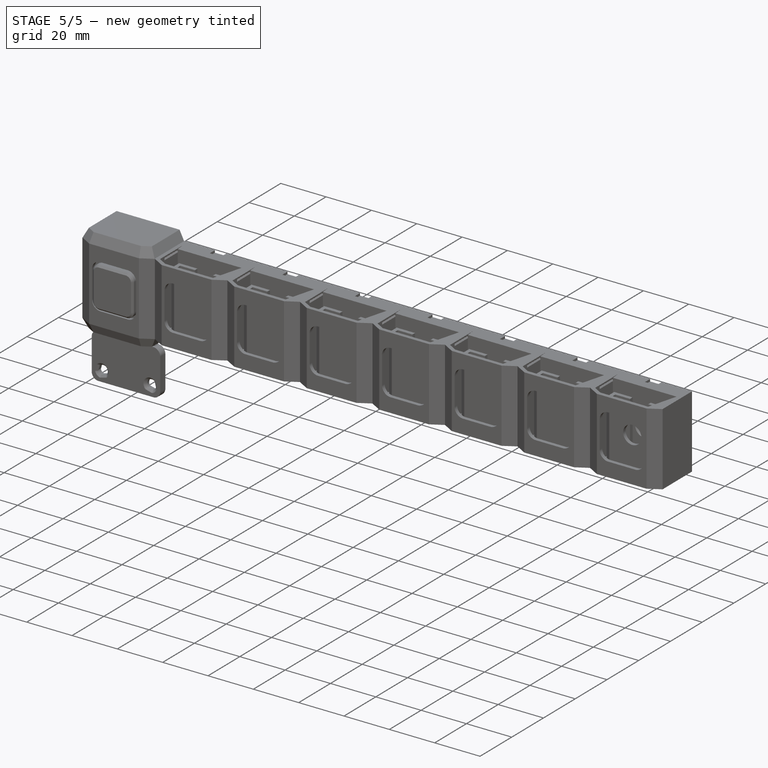
[diagram: stage 5 of 5 — iso view after this stage's code; geometry added in this stage tinted green]
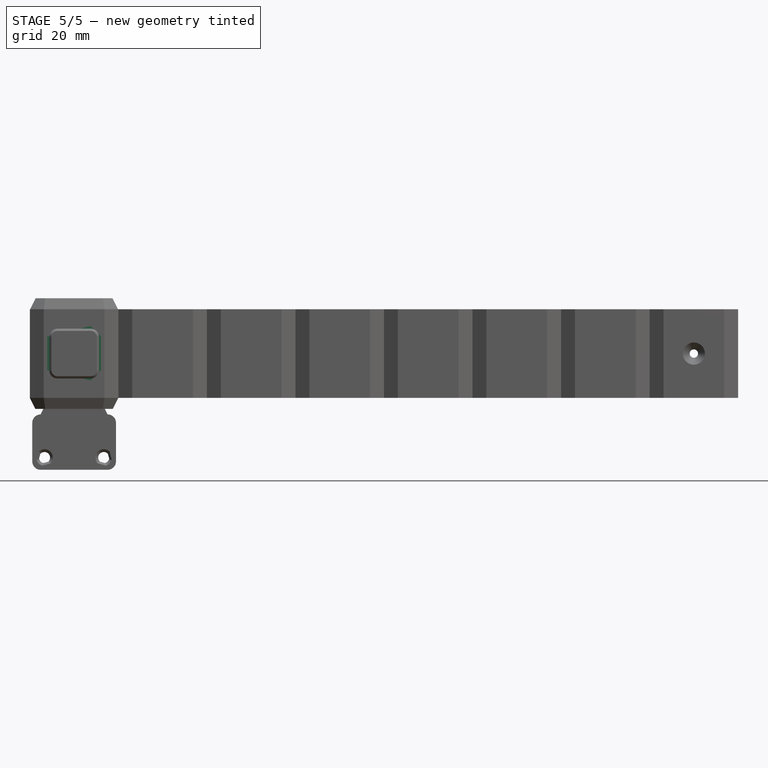
[diagram: stage 5 of 5 — front view after this stage's code; geometry added in this stage tinted green]
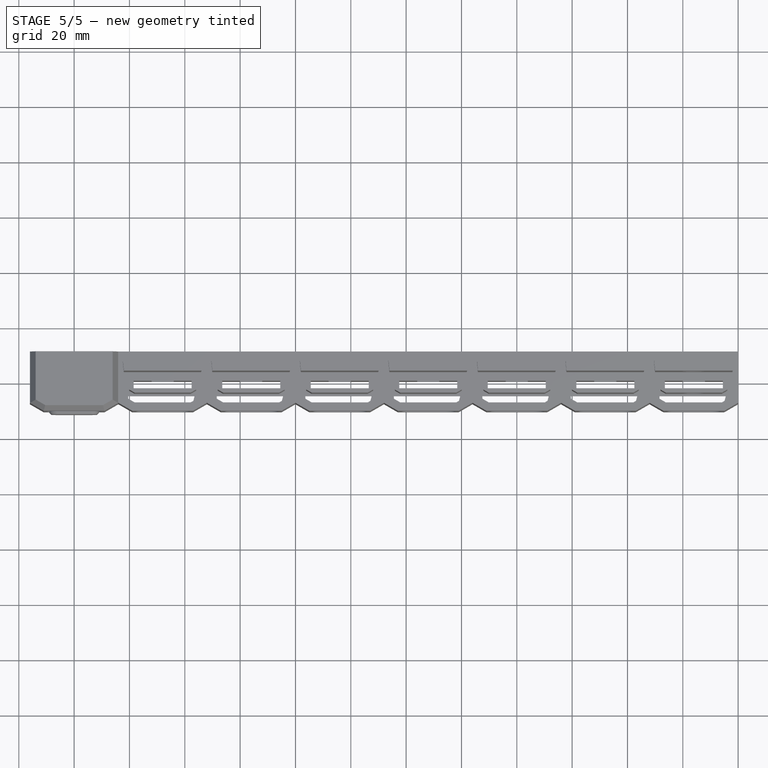
[diagram: stage 5 of 5 — top view after this stage's code; geometry added in this stage tinted green]
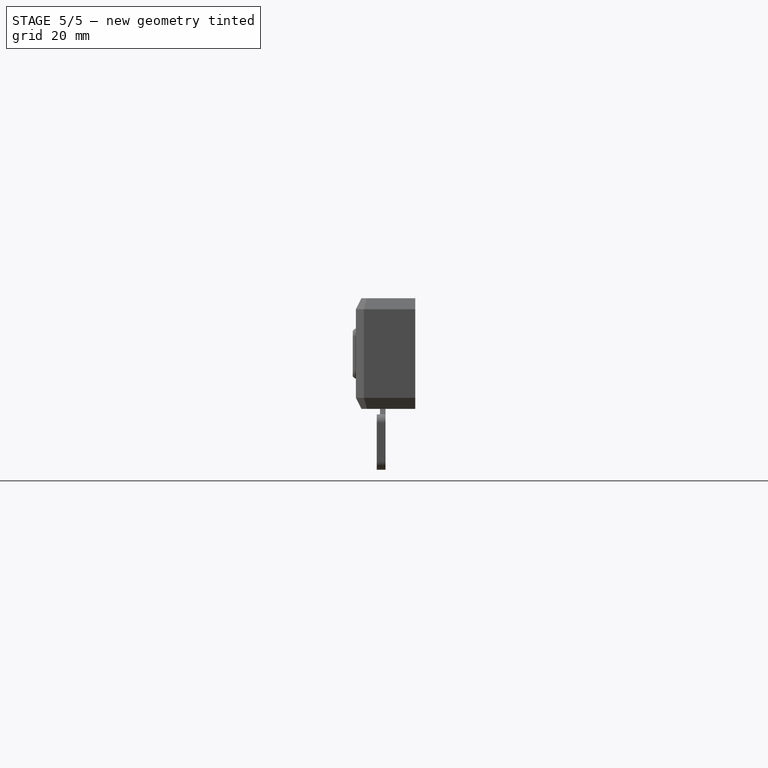
[diagram: stage 5 of 5 — right view after this stage's code; geometry added in this stage tinted green]
FEATURE [Sketcher::SketchObject] Sketch018
  ArcFitTolerance = 0
  AttachmentOffset = pos=(0,0,36) rot=(0,0,1;0rad)
  AttachmentSupport = -> [XY_Plane003]
  ExternalGeometry = -> [Sketch014]
  FullyConstrained = true
  MakeInternals = false
  MapMode = 5
  Placement = pos=(0,0,36) rot=(0,0,1;0rad)
  expr: .AttachmentOffset.Base.z = <<Sketch015>>.AttachmentOffset.Base.z
  sketch-geometry (5):
    g0: Ellipse CenterX=-11.05 CenterY=-1.12 CenterZ=0 NormalX=0 NormalY=0 NormalZ=1 MajorRadius=3.25 MinorRadius=2.5 AngleXU=0
    g1: LineSegment [constr] StartX=-7.8 StartY=-1.12 StartZ=0 EndX=-14.3 EndY=-1.12 EndZ=0
    g2: LineSegment [constr] StartX=-11.05 StartY=1.38 StartZ=0 EndX=-11.05 EndY=-3.62 EndZ=0
    g3: GeomPoint [constr] X=-8.97334 Y=-1.12 Z=0
    g4: GeomPoint [constr] X=-13.1267 Y=-1.12 Z=0
  constraints (4):
    c: InternalAlignment(g1-g4 -> g0) x4
    c: Horizontal(g1)
    c: Equal(g-3,g0)
    c: Coincident(g0,g-3)
FEATURE [Sketcher::SketchObject] Sketch019
  ArcFitTolerance = 0
  AttachmentOffset = pos=(0,0,32) rot=(0,0,1;0rad)
  AttachmentSupport = -> [XY_Plane003]
  ExternalGeometry = -> [Sketch014]
  FullyConstrained = true
  MakeInternals = false
  MapMode = 5
  Placement = pos=(0,0,32) rot=(0,0,1;0rad)
  expr: .AttachmentOffset.Base.z = <<Sketch015>>.AttachmentOffset.Base.z - <<Pad004>>.Length
  sketch-geometry (5):
    g0: Ellipse CenterX=-7.8 CenterY=-1.12 CenterZ=0 NormalX=0 NormalY=0 NormalZ=1 MajorRadius=3.25 MinorRadius=2.5 AngleXU=0
    g1: LineSegment [constr] StartX=-4.55 StartY=-1.12 StartZ=0 EndX=-11.05 EndY=-1.12 EndZ=0
    g2: LineSegment [constr] StartX=-7.8 StartY=1.38 StartZ=0 EndX=-7.8 EndY=-3.62 EndZ=0
    g3: GeomPoint [constr] X=-5.72334 Y=-1.12 Z=0
    g4: GeomPoint [constr] X=-9.87666 Y=-1.12 Z=0
  constraints (4):
    c: InternalAlignment(g1-g4 -> g0) x4
    c: Horizontal(g1)
    c: Equal(g-3,g0)
    c: Coincident(g0,g-3)
FEATURE [PartDesign::ShapeBinder] ShapeBinder003
  Support = -> [Sketch002]
  TraceSupport = false
FEATURE [Sketcher::SketchObject] Sketch022  label="L_T_top"
  ArcFitTolerance = 0
  AttachmentSupport = -> [XY_Plane004]
  ExternalGeometry = -> [ShapeBinder003]
  FullyConstrained = true
  MakeInternals = false
  MapMode = 5
  sketch-geometry (12):
    g0: LineSegment StartX=-14.04 StartY=3.8 StartZ=0 EndX=-14.04 EndY=-2.43 EndZ=0
    g1: LineSegment StartX=-14.04 StartY=-2.43 StartZ=0 EndX=-12.44 EndY=-2.43 EndZ=0
    g2: LineSegment StartX=-12.44 StartY=-2.43 StartZ=0 EndX=-12.44 EndY=2.2 EndZ=0
    g3: LineSegment StartX=-12.44 StartY=2.2 StartZ=0 EndX=-3.28 EndY=2.2 EndZ=0
    g4: LineSegment StartX=-3.28 StartY=2.2 StartZ=0 EndX=-3.28 EndY=-2.12 EndZ=0
    g5: LineSegment StartX=-3.28 StartY=-2.12 StartZ=0 EndX=3.28 EndY=-2.12 EndZ=0
    g6: LineSegment StartX=3.28 StartY=-2.12 StartZ=0 EndX=3.28 EndY=2.2 EndZ=0
    g7: LineSegment StartX=3.28 StartY=2.2 StartZ=0 EndX=12.44 EndY=2.2 EndZ=0
    g8: LineSegment StartX=12.44 StartY=2.2 StartZ=0 EndX=12.44 EndY=-2.43 EndZ=0
    g9: LineSegment StartX=12.44 StartY=-2.43 StartZ=0 EndX=14.04 EndY=-2.43 EndZ=0
    g10: LineSegment StartX=14.04 StartY=-2.43 StartZ=0 EndX=14.04 EndY=3.8 EndZ=0
    g11: LineSegment StartX=14.04 StartY=3.8 StartZ=0 EndX=-14.04 EndY=3.8 EndZ=0
  constraints (24):
    c: Coincident(g0,g1)
    c: Coincident(g1,g2)
    c: Coincident(g2,g3)
    c: Coincident(g3,g4)
    c: Coincident(g4,g5)
    c: Coincident(g5,g6)
    c: Coincident(g6,g7)
    c: Coincident(g7,g8)
    c: Coincident(g8,g9)
    c: Coincident(g9,g10)
    c: Coincident(g10,g11)
    c: Coincident(g11,g0)
    c: Coincident(g1,g-4)
    c: Coincident(g2,g-4)
    c: Coincident(g3,g-5)
    c: Coincident(g4,g-5)
    c: Coincident(g0,g-3)
    c: Coincident(g0,g-3)
    c: Coincident(g5,g-6)
    c: Coincident(g6,g-6)
    c: Coincident(g7,g-7)
    c: Coincident(g8,g-7)
    c: Coincident(g9,g-8)
    c: Coincident(g10,g-8)
FEATURE [Sketcher::SketchObject] Sketch023
  ArcFitTolerance = 0
  AttachmentOffset = pos=(0,0,4.36) rot=(0,0,1;0rad)
  AttachmentSupport = -> [XY_Plane004]
  ExternalGeometry = -> [Sketch022]
  FullyConstrained = true
  MakeInternals = false
  MapMode = 5
  Placement = pos=(0,0,4.36) rot=(0,0,1;0rad)
  expr: .AttachmentOffset.Base.z = <<Spreadsheet>>.ShellBottomHeight + <<Spreadsheet>>.Tolerance_loose
  sketch-geometry (8):
    g0: LineSegment StartX=-12.44 StartY=2.2 StartZ=0 EndX=12.44 EndY=2.2 EndZ=0
    g1: LineSegment StartX=12.44 StartY=2.2 StartZ=0 EndX=12.44 EndY=-2.43 EndZ=0
    g2: LineSegment StartX=12.44 StartY=-2.43 StartZ=0 EndX=14.04 EndY=-2.43 EndZ=0
    g3: LineSegment StartX=14.04 StartY=-2.43 StartZ=0 EndX=14.04 EndY=3.8 EndZ=0
    g4: LineSegment StartX=14.04 StartY=3.8 StartZ=0 EndX=-14.04 EndY=3.8 EndZ=0
    g5: LineSegment StartX=-14.04 StartY=3.8 StartZ=0 EndX=-14.04 EndY=-2.43 EndZ=0
    g6: LineSegment StartX=-14.04 StartY=-2.43 StartZ=0 EndX=-12.44 EndY=-2.43 EndZ=0
    g7: LineSegment StartX=-12.44 StartY=-2.43 StartZ=0 EndX=-12.44 EndY=2.2 EndZ=0
  constraints (16):
    c: Coincident(g0,g1)
    c: Coincident(g1,g2)
    c: Coincident(g2,g3)
    c: Coincident(g3,g4)
    c: Coincident(g4,g5)
    c: Coincident(g5,g6)
    c: Coincident(g6,g7)
    c: Coincident(g7,g0)
    c: Coincident(g5,g-3)
    c: Coincident(g-3,g4)
    c: Coincident(g6,g-4)
    c: Coincident(g0,g-4)
    c: Coincident(g3,g-6)
    c: Coincident(g2,g-6)
    c: Coincident(g1,g-5)
    c: Coincident(g0,g-5)
FEATURE [PartDesign::Pad] Pad006
  Direction = (0,0,1)
  Length = 27.28
  Length2 = 10
  Profile = -> Sketch023
  ReferenceAxis = -> Sketch023 [N_Axis]
  Suppressed = false
  Type = 0
  expr: Length = <<Spreadsheet>>.GuideHeight - <<Spreadsheet>>.Tolerance_loose
FEATURE [Sketcher::SketchObject] Sketch024  label="T_front"
  ArcFitTolerance = 0
  AttachmentSupport = -> [XZ_Plane]
  ExternalGeometry = -> [Sketch002]
  FullyConstrained = true
  MakeInternals = false
  MapMode = 5
  Placement = pos=(0,0,0) rot=(1,0,0;1.5708rad)
  expr: Constraints[101] = <<Spreadsheet>>.LatchSpringGap
  expr: Constraints[112] = <<Spreadsheet>>.GuideHeight
  expr: Constraints[124] = <<Spreadsheet>>.Tolerance_tight
  expr: Constraints[20] = <<Spreadsheet>>.ButtonCornerRadius
  expr: Constraints[61] = <<Spreadsheet>>.ShellHeight
  expr: Constraints[68] = <<Spreadsheet>>.ShellBottomHeight
  expr: Constraints[72] = <<Spreadsheet>>.TopWallHeight
  sketch-geometry (51):
    g0: ArcOfCircle CenterX=-6 CenterY=26 CenterZ=0 NormalX=0 NormalY=0 NormalZ=1 AngleXU=0 Radius=3 StartAngle=1.5708 EndAngle=3.14159
    g1: LineSegment StartX=-6 StartY=29 StartZ=0 EndX=6 EndY=29 EndZ=0
    g2: ArcOfCircle CenterX=6 CenterY=26 CenterZ=0 NormalX=0 NormalY=0 NormalZ=1 AngleXU=0 Radius=3 StartAngle=6e-16 EndAngle=1.5708
    g3: LineSegment StartX=9 StartY=26 StartZ=0 EndX=9 EndY=14 EndZ=0
    g4: ArcOfCircle CenterX=6 CenterY=14 CenterZ=0 NormalX=0 NormalY=0 NormalZ=1 AngleXU=0 Radius=3 StartAngle=4.71239 EndAngle=6.28319
    g5: LineSegment StartX=6 StartY=11 StartZ=0 EndX=-6 EndY=11 EndZ=0
    g6: ArcOfCircle CenterX=-6 CenterY=14 CenterZ=0 NormalX=0 NormalY=0 NormalZ=1 AngleXU=0 Radius=3 StartAngle=3.14159 EndAngle=4.71239
    g7: LineSegment StartX=-9 StartY=14 StartZ=0 EndX=-9 EndY=26 EndZ=0
    g8: GeomPoint [constr] X=-9 Y=29 Z=0
    g9: GeomPoint [constr] X=9 Y=11 Z=0
    g10: LineSegment StartX=-4 StartY=18.88 StartZ=0 EndX=4 EndY=18.88 EndZ=0
    g11: LineSegment StartX=4 StartY=18.88 StartZ=0 EndX=4 EndY=10.88 EndZ=0
    g12: LineSegment StartX=4 StartY=10.88 StartZ=0 EndX=-4 EndY=10.88 EndZ=0
    g13: LineSegment StartX=-4 StartY=10.88 StartZ=0 EndX=-4 EndY=18.88 EndZ=0
    g14: LineSegment StartX=-3.28 StartY=18.16 StartZ=0 EndX=3.28 EndY=18.16 EndZ=0
    g15: LineSegment StartX=3.28 StartY=18.16 StartZ=0 EndX=3.28 EndY=11.6 EndZ=0
    g16: LineSegment StartX=3.28 StartY=11.6 StartZ=0 EndX=-3.28 EndY=11.6 EndZ=0
    g17: LineSegment StartX=-3.28 StartY=11.6 StartZ=0 EndX=-3.28 EndY=18.16 EndZ=0
    g18: LineSegment [constr] StartX=-3.28 StartY=18.16 StartZ=0 EndX=-4 EndY=18.16 EndZ=0
    g19: LineSegment [constr] StartX=-3.28 StartY=18.16 StartZ=0 EndX=-3.28 EndY=18.88 EndZ=0
    g20: LineSegment StartX=-16 StartY=2.4e-15 StartZ=0 EndX=16 EndY=2.4e-15 EndZ=0
    g21: LineSegment StartX=16 StartY=2.4e-15 StartZ=0 EndX=16 EndY=36 EndZ=0
    g22: LineSegment StartX=16 StartY=36 StartZ=0 EndX=-16 EndY=36 EndZ=0
    g23: LineSegment StartX=-16 StartY=36 StartZ=0 EndX=-16 EndY=0 EndZ=0
    g24: LineSegment StartX=-10.12 StartY=0 StartZ=0 EndX=-10.12 EndY=25 EndZ=0
    g25: LineSegment StartX=-10.12 StartY=25 StartZ=0 EndX=10.12 EndY=25 EndZ=0
    g26: LineSegment StartX=10.12 StartY=25 StartZ=0 EndX=10.12 EndY=0 EndZ=0
    g27: LineSegment StartX=-7e-16 StartY=36 StartZ=0 EndX=-7e-16 EndY=0 EndZ=0
    g28: LineSegment StartX=-16 StartY=31.64 StartZ=0 EndX=16 EndY=31.64 EndZ=0
    g29: LineSegment StartX=-16 StartY=4 StartZ=0 EndX=16 EndY=4 EndZ=0
    g30: LineSegment StartX=-16 StartY=32 StartZ=0 EndX=16 EndY=32 EndZ=0
    g31: LineSegment StartX=-14.4 StartY=1e-16 StartZ=0 EndX=-14.4 EndY=31.64 EndZ=0
    g32: LineSegment StartX=14.4 StartY=1e-16 StartZ=0 EndX=14.4 EndY=31.64 EndZ=0
    g33: LineSegment StartX=-14.4 StartY=35.3586 StartZ=0 EndX=-14.8 EndY=34.9586 EndZ=0
    g34: LineSegment StartX=-14.8 StartY=34.9586 StartZ=0 EndX=-14.4 EndY=34.5586 EndZ=0
    g35: LineSegment StartX=14.4 StartY=35.3586 StartZ=0 EndX=14.8 EndY=34.9586 EndZ=0
    g36: LineSegment StartX=14.8 StartY=34.9586 StartZ=0 EndX=14.4 EndY=34.5586 EndZ=0
    g37: LineSegment [constr] StartX=-14.8 StartY=0 StartZ=0 EndX=-14.8 EndY=34.9586 EndZ=0
    g38: LineSegment [constr] StartX=-14.4 StartY=35.3586 StartZ=0 EndX=14.4 EndY=35.3586 EndZ=0
    g39: LineSegment StartX=-14.4 StartY=32 StartZ=0 EndX=-14.4 EndY=36 EndZ=0
    g40: LineSegment StartX=14.4 StartY=32 StartZ=0 EndX=14.4 EndY=36 EndZ=0
    g41: LineSegment [constr] StartX=-10.12 StartY=18.88 StartZ=0 EndX=-4 EndY=18.88 EndZ=0
    g42: LineSegment [constr] StartX=-4 StartY=18.88 StartZ=0 EndX=-4 EndY=25 EndZ=0
    g43: LineSegment [constr] StartX=-16 StartY=20 StartZ=0 EndX=16 EndY=20 EndZ=0
    g44: LineSegment StartX=-14.4 StartY=35.5 StartZ=0 EndX=-14.9414 EndY=34.9586 EndZ=0
    g45: LineSegment StartX=-14.9414 StartY=34.9586 StartZ=0 EndX=-14.4 EndY=34.4172 EndZ=0
    g46: LineSegment [constr] StartX=-14.8 StartY=34.9586 StartZ=0 EndX=-14.8707 EndY=35.0293 EndZ=0
    g47: LineSegment [constr] StartX=-14.8 StartY=34.9586 StartZ=0 EndX=-14.8707 EndY=34.8879 EndZ=0
    g48: LineSegment StartX=14.4 StartY=35.5 StartZ=0 EndX=14.9414 EndY=34.9586 EndZ=0
    g49: LineSegment StartX=14.9414 StartY=34.9586 StartZ=0 EndX=14.4 EndY=34.4172 EndZ=0
    g50: LineSegment [constr] StartX=14.8 StartY=34.9586 StartZ=0 EndX=14.9414 EndY=34.9586 EndZ=0
  constraints (150):
    c: Tangent(g0,g1) = 1.5708
    c: Tangent(g1,g2) = 1.5708
    c: Tangent(g2,g3) = 1.5708
    c: Tangent(g3,g4) = 1.5708
    c: Tangent(g4,g5) = 1.5708
    c: Tangent(g5,g6) = 1.5708
    c: Tangent(g6,g7) = 1.5708
    c: Tangent(g7,g0) = 1.5708
    c: Horizontal(g1)
    c: Horizontal(g5)
    c: Vertical(g3)
    c: Vertical(g7)
    c: Equal(g0,g2)
    c: Equal(g2,g4)
    c: Equal(g4,g6)
    c: PointOnObject(g8,g1)
    c: PointOnObject(g8,g7)
    c: PointOnObject(g9,g3)
    c: PointOnObject(g9,g5)
    c: Equal(g1,g7)
    c: Radius(g0) = 3
    c: Coincident(g10,g11)
    c: Coincident(g11,g12)
    c: Coincident(g12,g13)
    c: Coincident(g13,g10)
    c: Horizontal(g10)
    c: Horizontal(g12)
    c: Vertical(g11)
    c: Vertical(g13)
    c: Coincident(g14,g15)
    c: Coincident(g15,g16)
    c: Coincident(g16,g17)
    c: Coincident(g17,g14)
    c: Horizontal(g14)
    c: Horizontal(g16)
    c: Vertical(g15)
    c: Vertical(g17)
    c: Equal(g10,g13)
    c: Equal(g14,g17)
    c: Coincident(g18,g14)
    c: PointOnObject(g18,g13)
    c: Horizontal(g18)
    c: Coincident(g19,g14)
    c: PointOnObject(g19,g10)
    c: Vertical(g19)
    c: Equal(g19,g18)
    c: Coincident(g20,g21)
    c: Coincident(g21,g22)
    c: Coincident(g22,g23)
    c: Coincident(g23,g20)
    c: Horizontal(g22)
    c: Vertical(g21)
    c: Vertical(g23)
    c: Vertical(g24)
    c: Horizontal(g25)
    c: Coincident(g26,g25)
    c: Vertical(g26)
    c: PointOnObject(g27,g20)
    c: Vertical(g27)
    c: Symmetric(g22,g21,g27)
    c: Coincident(g24,g25)
    c: DistanceY(g20,g22) = 36
    c: PointOnObject(g28,g23)
    c: PointOnObject(g28,g21)
    c: Horizontal(g28)
    c: PointOnObject(g29,g23)
    c: PointOnObject(g29,g21)
    c: Horizontal(g29)
    c: DistanceY(g20,g29) = 4
    c: PointOnObject(g30,g23)
    c: PointOnObject(g30,g21)
    c: Horizontal(g30)
    c: DistanceY(g30,g22) = 4
    c: Vertical(g31)
    c: Vertical(g32)
    c: PointOnObject(g39,g22)
    c: PointOnObject(g40,g22)
    c: PointOnObject(g33,g31)
    c: Coincident(g33,g34)
    c: PointOnObject(g34,g31)
    c: PointOnObject(g35,g32)
    c: Coincident(g35,g36)
    c: PointOnObject(g36,g32)
    c: Perpendicular(g33,g34)
    c: Perpendicular(g35,g36)
    c: Equal(g34,g33)
    c: Equal(g36,g35)
    c: Coincident(g37,g33)
    c: Vertical(g37)
    c: Coincident(g38,g33)
    c: Coincident(g38,g35)
    c: Horizontal(g38)
    c: PointOnObject(g31,g28)
    c: PointOnObject(g39,g30)
    c: PointOnObject(g32,g28)
    c: PointOnObject(g40,g30)
    c: PointOnObject(g32,g40)
    c: Vertical(g40)
    c: Equal(g33,g35)
    c: PointOnObject(g31,g39)
    c: Vertical(g39)
    c: DistanceY(g24,g39) = 7
    c: Coincident(g41,g10)
    c: Horizontal(g41)
    c: Coincident(g41,g42)
    c: Vertical(g42)
    c: PointOnObject(g41,g24)
    c: PointOnObject(g42,g25)
    c: Equal(g41,g42)
    c: PointOnObject(g43,g21)
    c: Symmetric(g22,g29,g43)
    c: Symmetric(g6,g0,g43)
    c: DistanceY(g29,g28) = 27.64
    c: PointOnObject(g44,g39)
    c: Coincident(g45,g44)
    c: PointOnObject(g45,g39)
    c: Coincident(g46,g33)
    c: PointOnObject(g46,g44)
    c: Coincident(g47,g33)
    c: PointOnObject(g47,g45)
    c: Perpendicular(g46,g44)
    c: Perpendicular(g45,g47)
    c: Parallel(g34,g45)
    c: Parallel(g33,g44)
    c: Distance(g44,g47) = 0.1
    c: Equal(g46,g47)
    c: DistanceY(g44,g22) = 0.5
    c: PointOnObject(g48,g40)
    c: Coincident(g49,g48)
    c: PointOnObject(g49,g40)
    c: Parallel(g48,g35)
    c: Parallel(g36,g49)
    c: Equal(g44,g48)
    c: Coincident(g50,g35)
    c: Coincident(g50,g48)
    c: Horizontal(g50)
    c: DistanceY(g28,g30) = 0.36
    c: Coincident(g20,g-3)
    c: Coincident(g20,g-3)
    c: Coincident(g31,g-4)
    c: Coincident(g37,g-4)
    c: Coincident(g24,g-5)
    c: Coincident(g26,g-5)
    c: Coincident(g32,g-6)
    c: PointOnObject(g-10,g11)
    c: PointOnObject(g-9,g15)
    c: PointOnObject(g-8,g17)
    c: PointOnObject(g-7,g13)
    c: PointOnObject(g-11,g7)
    c: PointOnObject(g-11,g3)
FEATURE [PartDesign::Body] Body  label="Templates"
  AllowCompound = false
  Group = -> [Sketch002,Sketch024]
  Origin = -> Origin
FEATURE [PartDesign::ShapeBinder] ShapeBinder004
  Placement = pos=(0,0,0) rot=(1,0,0;1.5708rad)
  Support = -> [Sketch024]
  TraceSupport = false
FEATURE [PartDesign::ShapeBinder] ShapeBinder005
  Support = -> [Sketch002]
  TraceSupport = false
FEATURE [PartDesign::ShapeBinder] ShapeBinder006
  Placement = pos=(0,0,0) rot=(1,0,0;1.5708rad)
  Support = -> [Sketch024]
  TraceSupport = false
FEATURE [Sketcher::SketchObject] Sketch026
  ArcFitTolerance = 0
  AttachmentOffset = pos=(0,0,4.36) rot=(0,0,1;0rad)
  AttachmentSupport = -> [XY_Plane005]
  ExternalGeometry = -> [ShapeBinder005]
  FullyConstrained = true
  MakeInternals = false
  MapMode = 5
  Placement = pos=(0,0,4.36) rot=(0,0,1;0rad)
  expr: .AttachmentOffset.Base.z = Spreadsheet.ShellBottomHeight + <<Spreadsheet>>.Tolerance_loose
  sketch-geometry (12):
    g0: LineSegment StartX=10.12 StartY=-7.16 StartZ=0 EndX=-10.12 EndY=-7.16 EndZ=0
    g1: LineSegment StartX=-10.12 StartY=-7.16 StartZ=0 EndX=-12.44 EndY=-5.82055 EndZ=0
    g2: LineSegment StartX=-12.44 StartY=-5.82055 StartZ=0 EndX=-12.44 EndY=-2.53 EndZ=0
    g3: LineSegment StartX=-12.44 StartY=-2.53 StartZ=0 EndX=-14.04 EndY=-2.53 EndZ=0
    g4: LineSegment StartX=-14.04 StartY=-2.53 StartZ=0 EndX=-14.04 EndY=-6.74431 EndZ=0
    g5: LineSegment StartX=-14.04 StartY=-6.74431 StartZ=0 EndX=-10.5487 EndY=-8.76 EndZ=0
    g6: LineSegment StartX=-10.5487 StartY=-8.76 StartZ=0 EndX=10.5487 EndY=-8.76 EndZ=0
    g7: LineSegment StartX=10.5487 StartY=-8.76 StartZ=0 EndX=14.04 EndY=-6.74431 EndZ=0
    g8: LineSegment StartX=14.04 StartY=-6.74431 StartZ=0 EndX=14.04 EndY=-2.53 EndZ=0
    g9: LineSegment StartX=14.04 StartY=-2.53 StartZ=0 EndX=12.44 EndY=-2.53 EndZ=0
    g10: LineSegment StartX=12.44 StartY=-2.53 StartZ=0 EndX=12.44 EndY=-5.82055 EndZ=0
    g11: LineSegment StartX=12.44 StartY=-5.82055 StartZ=0 EndX=10.12 EndY=-7.16 EndZ=0
  constraints (24):
    c: Coincident(g0,g1)
    c: Coincident(g1,g2)
    c: Coincident(g2,g3)
    c: Coincident(g4,g5)
    c: Coincident(g5,g6)
    c: Coincident(g6,g7)
    c: Coincident(g7,g8)
    c: Coincident(g8,g9)
    c: Coincident(g11,g0)
    c: Coincident(g4,g3)
    c: Coincident(g10,g9)
    c: Coincident(g11,g10)
    c: Coincident(g3,g-5)
    c: Coincident(g2,g-5)
    c: Coincident(g1,g-3)
    c: Coincident(g0,g-3)
    c: Coincident(g0,g-7)
    c: Coincident(g10,g-7)
    c: Coincident(g9,g-8)
    c: Coincident(g8,g-8)
    c: Coincident(g7,g-6)
    c: Coincident(g6,g-6)
    c: Coincident(g4,g-4)
    c: Coincident(g5,g-4)
FEATURE [PartDesign::Pad] Pad008
  Direction = (0,0,1)
  Length = 27.28
  Length2 = 10
  Profile = -> Sketch026
  ReferenceAxis = -> Sketch026 [N_Axis]
  Suppressed = false
  Type = 0
  expr: Length = <<Spreadsheet>>.GuideHeight - <<Spreadsheet>>.Tolerance_loose
FEATURE [PartDesign::ShapeBinder] ShapeBinder007
  Support = -> [Sketch002]
  TraceSupport = false
FEATURE [Sketcher::SketchObject] Sketch031
  ArcFitTolerance = 0
  AttachmentOffset = pos=(0,0,4.36) rot=(0,0,1;0rad)
  AttachmentSupport = -> [XY_Plane007]
  ExternalGeometry = -> [ShapeBinder007]
  FullyConstrained = true
  MakeInternals = false
  MapMode = 5
  Placement = pos=(0,0,4.36) rot=(0,0,1;0rad)
  expr: .AttachmentOffset.Base.z = Spreadsheet.ShellBottomHeight + <<Spreadsheet>>.Tolerance_loose
  sketch-geometry (5):
    g0: LineSegment [constr] StartX=-12.4 StartY=1.8 StartZ=0 EndX=12.4 EndY=1.8 EndZ=0
    g1: ArcOfCircle CenterX=2.1e-15 CenterY=19.3111 CenterZ=0 NormalX=0 NormalY=0 NormalZ=1 AngleXU=0 Radius=17.1111 StartAngle=3.90183 EndAngle=5.52295
    g2: LineSegment StartX=-12.4 StartY=7.52 StartZ=0 EndX=-12.6899 EndY=7.24436 EndZ=0
    g3: LineSegment StartX=12.4 StartY=7.52 StartZ=0 EndX=12.6899 EndY=7.24436 EndZ=0
    g4: ArcOfCircle CenterX=2.1e-15 CenterY=19.3111 CenterZ=0 NormalX=0 NormalY=0 NormalZ=1 AngleXU=0 Radius=17.5111 StartAngle=3.90183 EndAngle=5.52295
  constraints (17):
    c: PointOnObject(g0,g-4)
    c: PointOnObject(g0,g-5)
    c: Tangent(g4,g0)
    c: Equal(g2,g-4)
    c: Coincident(g2,g4)
    c: Coincident(g1,g2)
    c: Coincident(g1,g3)
    c: Coincident(g3,g4)
    c: Horizontal(g0)
    c: Coincident(g1,g4)
    c: PointOnObject(g1,g-6)
    c: PointOnObject(g1,g-6)
    c: PointOnObject(g1,g2)
    c: PointOnObject(g1,g3)
    c: DistanceY(g0,g-3) = 2
    c: PointOnObject(g1,g-4)
    c: PointOnObject(g1,g-5)
FEATURE [PartDesign::Pad] Pad010
  Direction = (0,0,1)
  Length = 27.28
  Length2 = 10
  Profile = -> Sketch031
  ReferenceAxis = -> Sketch031 [N_Axis]
  Suppressed = false
  Type = 0
  expr: Length = <<Spreadsheet>>.GuideHeight - <<Spreadsheet>>.Tolerance_loose
FEATURE [PartDesign::Body] Body007  label="Spring"
  AllowCompound = false
  Group = -> [ShapeBinder007,Sketch031,Pad010]
  Origin = -> Origin007
  Tip = -> Pad010
FEATURE [PartDesign::ShapeBinder] ShapeBinder008
  Placement = pos=(0,0,0) rot=(1,0,0;1.5708rad)
  Support = -> [Sketch024]
  TraceSupport = false
FEATURE [PartDesign::ShapeBinder] ShapeBinder009
  Placement = pos=(0,0,0) rot=(1,0,0;1.5708rad)
  Support = -> [Sketch024]
  TraceSupport = false
FEATURE [Sketcher::SketchObject] Sketch009  label="S_ButtonHole"
  ArcFitTolerance = 0
  AttachmentOffset = pos=(0,0,9.12) rot=(0,0,1;0rad)
  AttachmentSupport = -> [XZ_Plane001]
  ExternalGeometry = -> [ShapeBinder009]
  FullyConstrained = true
  MakeInternals = false
  MapMode = 5
  Placement = pos=(0,-9.12,2e-15) rot=(1,0,0;1.5708rad)
  expr: .AttachmentOffset.Base.z = Sketch002.Constraints.Length / 2 - <<Spreadsheet>>.ShellWallThickness
  expr: Constraints[14] = <<Spreadsheet>>.Tolerance_loose * 2
  expr: Constraints[17] = <<Spreadsheet>>.Tolerance_support
  sketch-geometry (12):
    g0: LineSegment StartX=-6 StartY=29.92 StartZ=0 EndX=6 EndY=29.92 EndZ=0
    g1: LineSegment StartX=9.72 StartY=26.2 StartZ=0 EndX=9.72 EndY=14 EndZ=0
    g2: LineSegment StartX=6 StartY=10.28 StartZ=0 EndX=-6 EndY=10.28 EndZ=0
    g3: LineSegment StartX=-9.72 StartY=14 StartZ=0 EndX=-9.72 EndY=26.2 EndZ=0
    g4: ArcOfCircle CenterX=-6 CenterY=26.2 CenterZ=0 NormalX=0 NormalY=0 NormalZ=1 AngleXU=0 Radius=3.72 StartAngle=1.5708 EndAngle=3.14159
    g5: ArcOfCircle CenterX=6 CenterY=26.2 CenterZ=0 NormalX=0 NormalY=0 NormalZ=1 AngleXU=0 Radius=3.72 StartAngle=-9e-16 EndAngle=1.5708
    g6: ArcOfCircle CenterX=6 CenterY=14 CenterZ=0 NormalX=0 NormalY=0 NormalZ=1 AngleXU=0 Radius=3.72 StartAngle=4.71239 EndAngle=6.28319
    g7: ArcOfCircle CenterX=-6 CenterY=14 CenterZ=0 NormalX=0 NormalY=0 NormalZ=1 AngleXU=0 Radius=3.72 StartAngle=3.14159 EndAngle=4.71239
    g8: LineSegment [constr] StartX=-9 StartY=26.2 StartZ=0 EndX=-9.72 EndY=26.2 EndZ=0
    g9: LineSegment [constr] StartX=-9 StartY=26 StartZ=0 EndX=-9 EndY=26.2 EndZ=0
    g10: LineSegment [constr] StartX=6 StartY=26 StartZ=0 EndX=6 EndY=26.2 EndZ=0
    g11: LineSegment [constr] StartX=-6 StartY=26 StartZ=0 EndX=-6 EndY=26.2 EndZ=0
  constraints (28):
    c: Horizontal(g0)
    c: Horizontal(g2)
    c: Vertical(g1)
    c: Vertical(g3)
    c: Tangent(g0,g4) = 1.5708
    c: Tangent(g3,g4) = 1.5708
    c: Tangent(g0,g5) = 1.5708
    c: Tangent(g1,g5) = 1.5708
    c: Tangent(g1,g6) = 1.5708
    c: Tangent(g2,g6) = 1.5708
    c: Tangent(g2,g7) = 1.5708
    c: Tangent(g3,g7) = 1.5708
    c: Coincident(g7,g-5)
    c: Coincident(g8,g3)
    c: DistanceX(g8,g8) = 0.72
    c: Equal(g5,g6)
    c: Vertical(g9)
    c: DistanceY(g9,g9) = 0.2
    c: Horizontal(g8)
    c: Coincident(g9,g-3)
    c: Coincident(g8,g9)
    c: Coincident(g10,g-4)
    c: Vertical(g10)
    c: Coincident(g11,g-3)
    c: Coincident(g11,g4)
    c: Vertical(g11)
    c: Coincident(g5,g10)
    c: Equal(g4,g5)
FEATURE [PartDesign::Plane] DatumPlane006
  AttachmentSupport = -> [Sketch022]
  Length = 60.6433
  MapMode = 7
  Placement = pos=(-3.28,2.2,0) rot=(0,0.707107,0.707107;3.14159rad)
  ResizeMode = 0
  Width = 67.2833
FEATURE [PartDesign::Plane] DatumPlane007
  AttachmentSupport = -> [Sketch022]
  Length = 60.6433
  MapMode = 7
  Placement = pos=(-3.28,-2.12,0) rot=(0,0.707107,0.707107;3.14159rad)
  ResizeMode = 0
  Width = 67.2833
FEATURE [Sketcher::SketchObject] Sketch032
  ArcFitTolerance = 0
  AttachmentSupport = -> [DatumPlane006]
  ExternalGeometry = -> [ShapeBinder004]
  FullyConstrained = true
  MakeInternals = false
  MapMode = 5
  Placement = pos=(-3.28,2.2,0) rot=(0,0.707107,0.707107;3.14159rad)
  sketch-geometry (4):
    g0: LineSegment StartX=-6.56 StartY=18.16 StartZ=0 EndX=7.1e-15 EndY=18.16 EndZ=0
    g1: LineSegment StartX=7.1e-15 StartY=18.16 StartZ=0 EndX=7.1e-15 EndY=11.6 EndZ=0
    g2: LineSegment StartX=7.1e-15 StartY=11.6 StartZ=0 EndX=-6.56 EndY=11.6 EndZ=0
    g3: LineSegment StartX=-6.56 StartY=11.6 StartZ=0 EndX=-6.56 EndY=18.16 EndZ=0
  constraints (8):
    c: Coincident(g0,g1)
    c: Coincident(g1,g2)
    c: Coincident(g2,g3)
    c: Coincident(g3,g0)
    c: Coincident(g0,g-3)
    c: Coincident(g2,g-3)
    c: Coincident(g1,g-4)
    c: Coincident(g0,g-4)
FEATURE [PartDesign::Pad] Pad011
  BaseFeature = -> Pad006
  Direction = (0,1,-2e-16)
  Length = 10
  Length2 = 10
  Profile = -> Sketch032
  ReferenceAxis = -> Sketch032 [N_Axis]
  Suppressed = false
  Type = 3
  UpToFace = -> DatumPlane007
FEATURE [PartDesign::Chamfer] Chamfer004
  Angle = 66
  Base = -> Pad011 [Edge28]
  BaseFeature = -> Pad011
  ChamferType = 1
  FlipDirection = false
  Size = 2.72
  Size2 = 5.56
  SupportTransform = false
  Suppressed = false
  UseAllEdges = false
  expr: Size = <<Spreadsheet>>.LatchStroke
  expr: Size2 = <<T_top>>.Constraints.LatchWidth - 1 mm
FEATURE [PartDesign::Fillet] Fillet
  Base = -> Chamfer004 [Edge1,Edge6,Edge10,Edge2,Edge9,Edge4,Edge14,Edge7]
  BaseFeature = -> Chamfer004
  Radius = 1.2
  SupportTransform = false
  Suppressed = false
  UseAllEdges = false
FEATURE [PartDesign::Body] Body004  label="Latch"
  AllowCompound = false
  Group = -> [ShapeBinder003,ShapeBinder004,Sketch022,Sketch023,Pad006,DatumPlane006,DatumPlane007,Sketch032,Pad011,Chamfer004,Fillet]
  Origin = -> Origin004
  Tip = -> Fillet
FEATURE [PartDesign::Plane] DatumPlane008
  AttachmentSupport = -> [ShapeBinder005]
  Length = 60.6433
  MapMode = 7
  Placement = pos=(9,-8.76,0) rot=(0,0.707107,0.707107;3.14159rad)
  ResizeMode = 0
  Width = 67.2833
FEATURE [PartDesign::Plane] DatumPlane009
  AttachmentSupport = -> [ShapeBinder005]
  Length = 60.6433
  MapMode = 7
  Placement = pos=(-9,-11.84,0) rot=(1,0,0;1.5708rad)
  ResizeMode = 0
  Width = 67.2833
FEATURE [Sketcher::SketchObject] Sketch033
  ArcFitTolerance = 0
  AttachmentSupport = -> [DatumPlane008]
  ExternalGeometry = -> [ShapeBinder006]
  FullyConstrained = true
  MakeInternals = false
  MapMode = 5
  Placement = pos=(9,-8.76,0) rot=(0,0.707107,0.707107;3.14159rad)
  sketch-geometry (10):
    g0: ArcOfCircle CenterX=3 CenterY=26 CenterZ=0 NormalX=0 NormalY=0 NormalZ=1 AngleXU=0 Radius=3 StartAngle=1.5708 EndAngle=3.14159
    g1: LineSegment StartX=3 StartY=29 StartZ=0 EndX=15 EndY=29 EndZ=0
    g2: ArcOfCircle CenterX=15 CenterY=26 CenterZ=0 NormalX=0 NormalY=0 NormalZ=1 AngleXU=0 Radius=3 StartAngle=7e-16 EndAngle=1.5708
    g3: LineSegment StartX=18 StartY=26 StartZ=0 EndX=18 EndY=14 EndZ=0
    g4: ArcOfCircle CenterX=15 CenterY=14 CenterZ=0 NormalX=0 NormalY=0 NormalZ=1 AngleXU=0 Radius=3 StartAngle=4.71239 EndAngle=6.28319
    g5: LineSegment StartX=15 StartY=11 StartZ=0 EndX=3 EndY=11 EndZ=0
    g6: ArcOfCircle CenterX=3 CenterY=14 CenterZ=0 NormalX=0 NormalY=0 NormalZ=1 AngleXU=0 Radius=3 StartAngle=3.14159 EndAngle=4.71239
    g7: LineSegment StartX=6.2603e-12 StartY=14 StartZ=0 EndX=0 EndY=26 EndZ=0
    g8: GeomPoint [constr] X=-1.8e-15 Y=29 Z=0
    g9: GeomPoint [constr] X=18 Y=11 Z=0
  constraints (18):
    c: Tangent(g0,g1) = 1.5708
    c: Tangent(g1,g2) = 1.5708
    c: Tangent(g2,g3) = 1.5708
    c: Tangent(g3,g4) = 1.5708
    c: Tangent(g4,g5) = 1.5708
    c: Tangent(g5,g6) = 1.5708
    c: Tangent(g6,g7) = 1.5708
    c: Tangent(g7,g0) = 1.5708
    c: PointOnObject(g8,g1)
    c: PointOnObject(g8,g7)
    c: PointOnObject(g9,g3)
    c: PointOnObject(g9,g5)
    c: Coincident(g0,g-6)
    c: Coincident(g0,g-6)
    c: Coincident(g1,g-3)
    c: Coincident(g3,g-4)
    c: Coincident(g4,g-4)
    c: Coincident(g5,g-5)
FEATURE [PartDesign::Pad] Pad012
  BaseFeature = -> Pad008
  Direction = (0,1,-2e-16)
  Length = 10
  Length2 = 10
  Profile = -> Sketch033
  ReferenceAxis = -> Sketch033 [N_Axis]
  Suppressed = false
  Type = 3
  UpToFace = -> DatumPlane009
FEATURE [PartDesign::Chamfer] Chamfer005
  Angle = 45
  Base = -> Pad012 [Face23]
  BaseFeature = -> Pad012
  ChamferType = 0
  FlipDirection = false
  Size = 0.8
  Size2 = 1
  SupportTransform = false
  Suppressed = false
  UseAllEdges = false
FEATURE [PartDesign::Pocket] Pocket002  label="S_TopRemoveHelper_"
  BaseFeature = -> Pad001
  Direction = (0,0,-1)
  Length = 1
  Length2 = 5
  Profile = -> Sketch006
  ReferenceAxis = -> Sketch006 [N_Axis]
  Suppressed = false
  Type = 0
FEATURE [PartDesign::Plane] DatumPlane010
  AttachmentSupport = -> [ShapeBinder]
  Length = 61.0454
  MapMode = 7
  Placement = pos=(14.4,-4.88,0) rot=(1,0,0;1.5708rad)
  ResizeMode = 0
  Width = 72.0454
FEATURE [Sketcher::SketchObject] Sketch
  ArcFitTolerance = 0
  AttachmentSupport = -> [DatumPlane010]
  ExternalGeometry = -> [ShapeBinder009]
  FullyConstrained = true
  MakeInternals = false
  MapMode = 5
  Placement = pos=(14.4,-4.88,0) rot=(1,0,0;1.5708rad)
  sketch-geometry (6):
    g0: LineSegment StartX=-28.8 StartY=35.5 StartZ=0 EndX=-29.3414 EndY=34.9586 EndZ=0
    g1: LineSegment StartX=-29.3414 StartY=34.9586 StartZ=0 EndX=-28.8 EndY=34.4172 EndZ=0
    g2: LineSegment StartX=-28.8 StartY=34.4172 StartZ=0 EndX=-28.8 EndY=35.5 EndZ=0
    g3: LineSegment StartX=3.6e-15 StartY=35.5 StartZ=0 EndX=0.541421 EndY=34.9586 EndZ=0
    g4: LineSegment StartX=0.541421 StartY=34.9586 StartZ=0 EndX=3.6e-15 EndY=34.4172 EndZ=0
    g5: LineSegment StartX=3.6e-15 StartY=34.4172 StartZ=0 EndX=3.6e-15 EndY=35.5 EndZ=0
  constraints (12):
    c: Coincident(g-3,g0)
    c: Coincident(g0,g-4)
    c: Coincident(g0,g1)
    c: Coincident(g1,g-4)
    c: Coincident(g1,g2)
    c: Coincident(g2,g0)
    c: Coincident(g-5,g3)
    c: Coincident(g3,g-6)
    c: Coincident(g3,g4)
    c: Coincident(g4,g-6)
    c: Coincident(g4,g5)
    c: Coincident(g5,g3)
FEATURE [PartDesign::Pocket] Pocket
  BaseFeature = -> Pocket002
  Direction = (0,1,-2e-16)
  Length = 8.72
  Length2 = 5
  Midplane = true
  Profile = -> Sketch
  ReferenceAxis = -> Sketch [N_Axis]
  Suppressed = false
  Type = 0
  expr: Length = <<Spreadsheet>>.HookWidth + <<Spreadsheet>>.Tolerance_loose * 2
FEATURE [PartDesign::Pocket] Pocket004  label="S_ButtonHole_"
  BaseFeature = -> Pocket
  Direction = (0,1,-2e-16)
  Length = 5
  Length2 = 5
  Profile = -> Sketch009
  ReferenceAxis = -> Sketch009 [N_Axis]
  Reversed = true
  Suppressed = false
  Type = 1
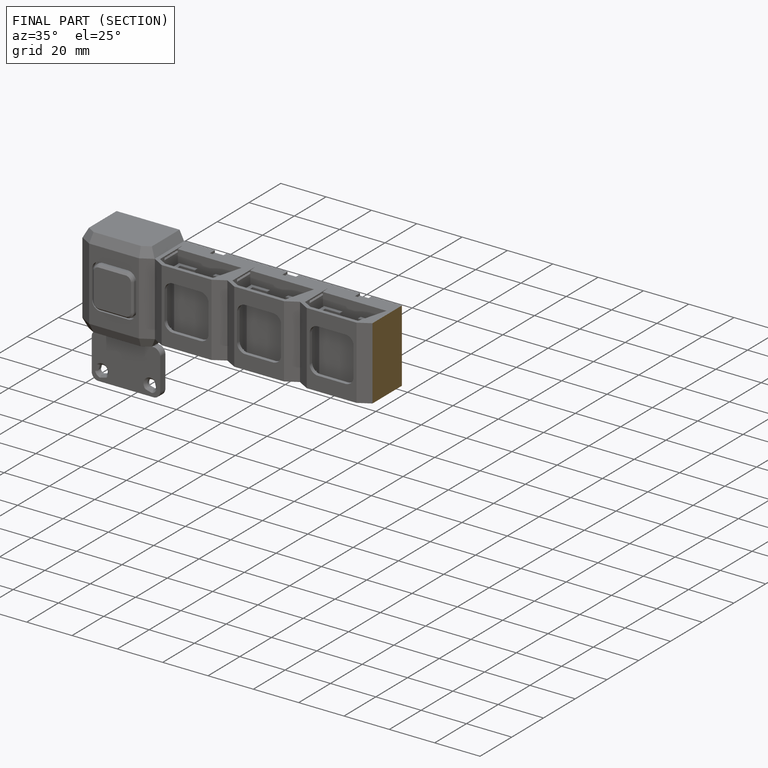
[diagram: finished part — half-section view (interior)]
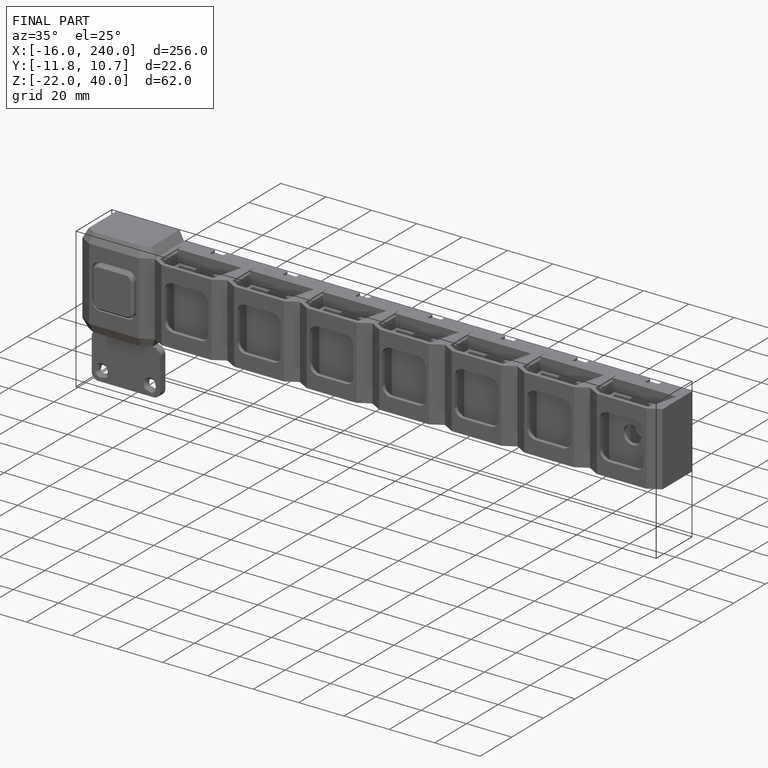
[diagram: finished part — iso view with bounding-box wireframe]
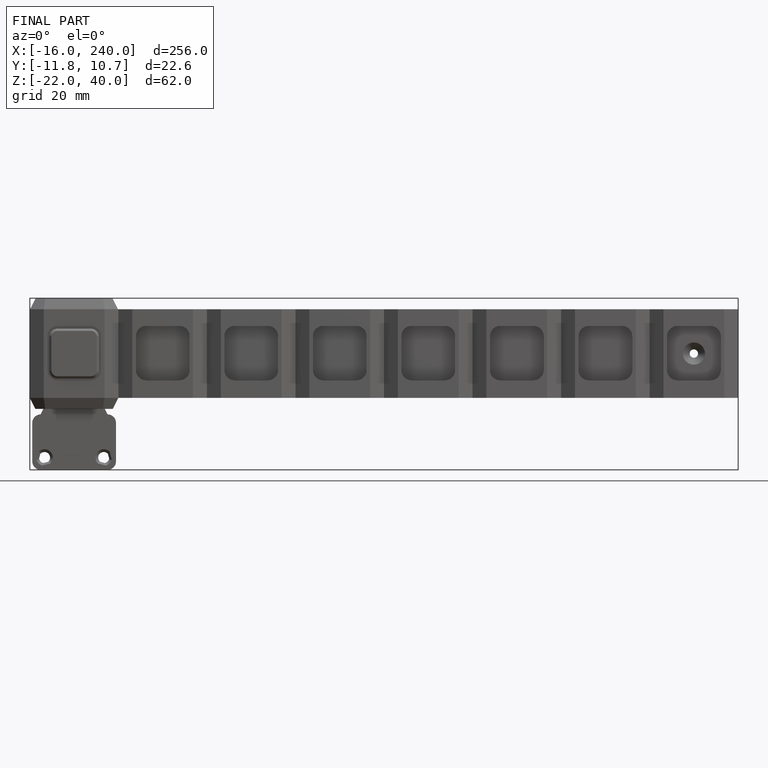
[diagram: finished part — front view with bounding-box wireframe]
